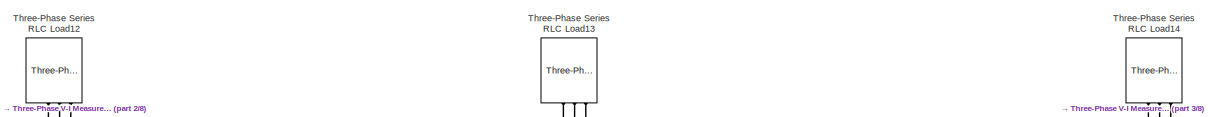
[diagram: root canvas - part 1/8, top center region]
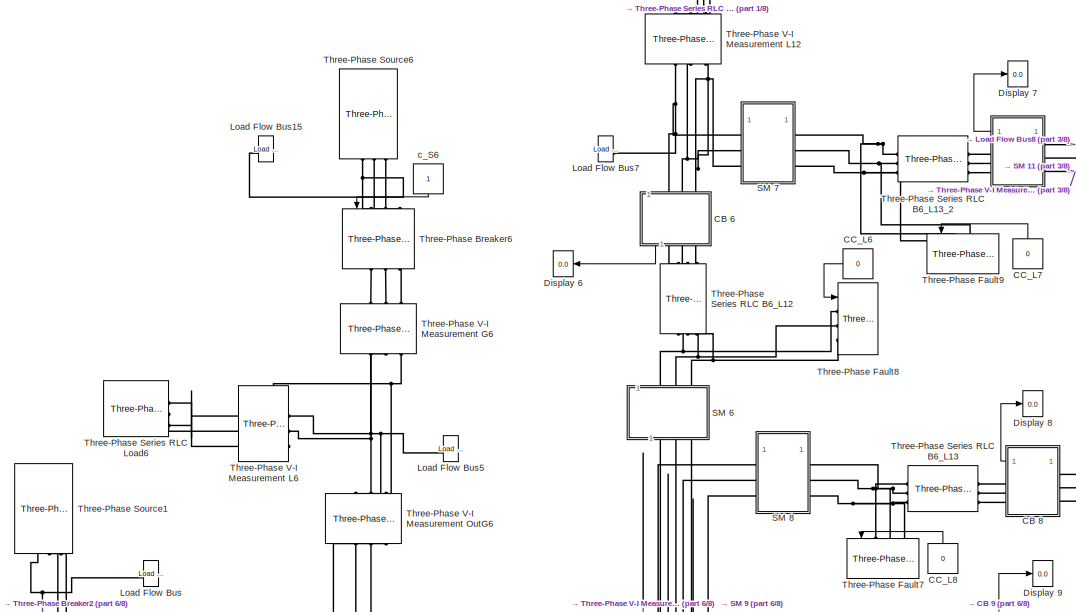
[diagram: root canvas - part 2/8, top center region]
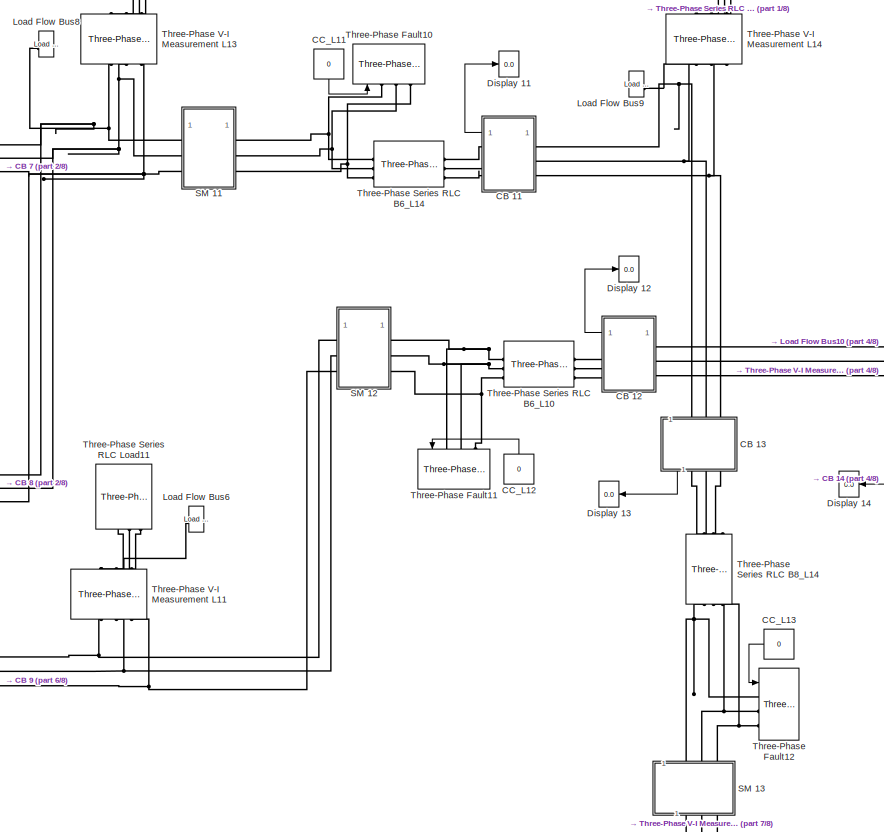
[diagram: root canvas - part 3/8, top right region]
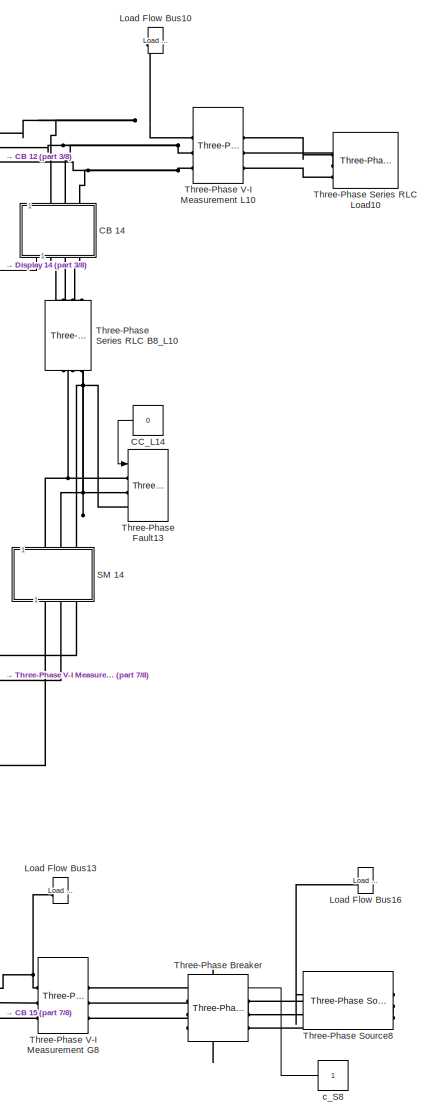
[diagram: root canvas - part 4/8, middle right region]
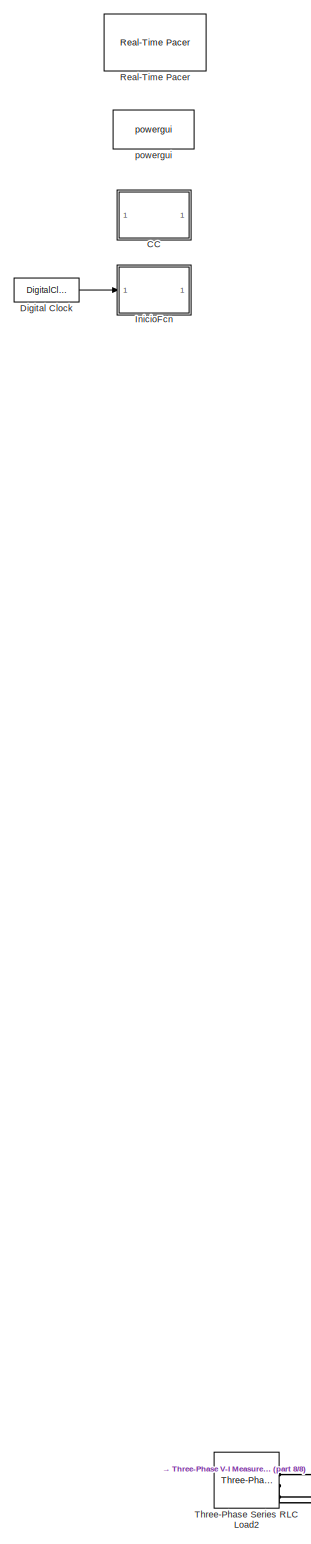
[diagram: root canvas - part 5/8, middle left region]
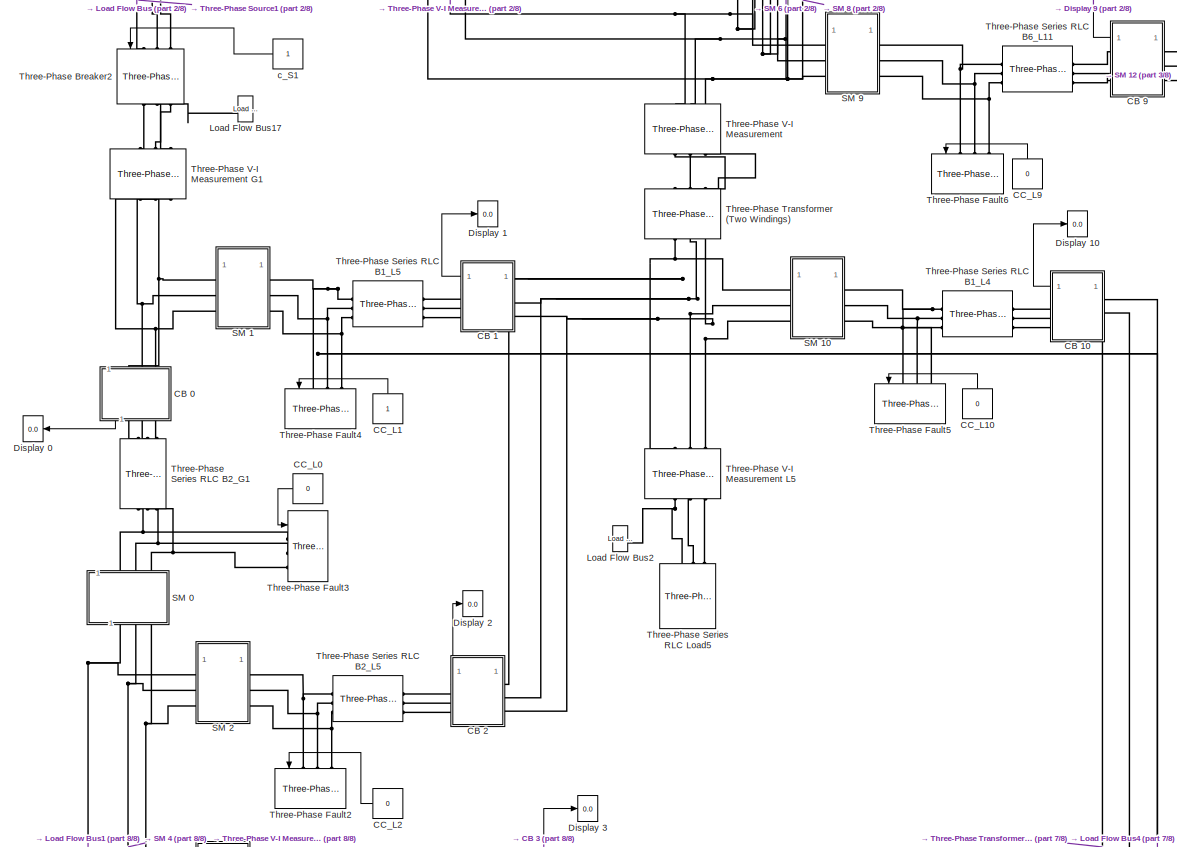
[diagram: root canvas - part 6/8, central region]
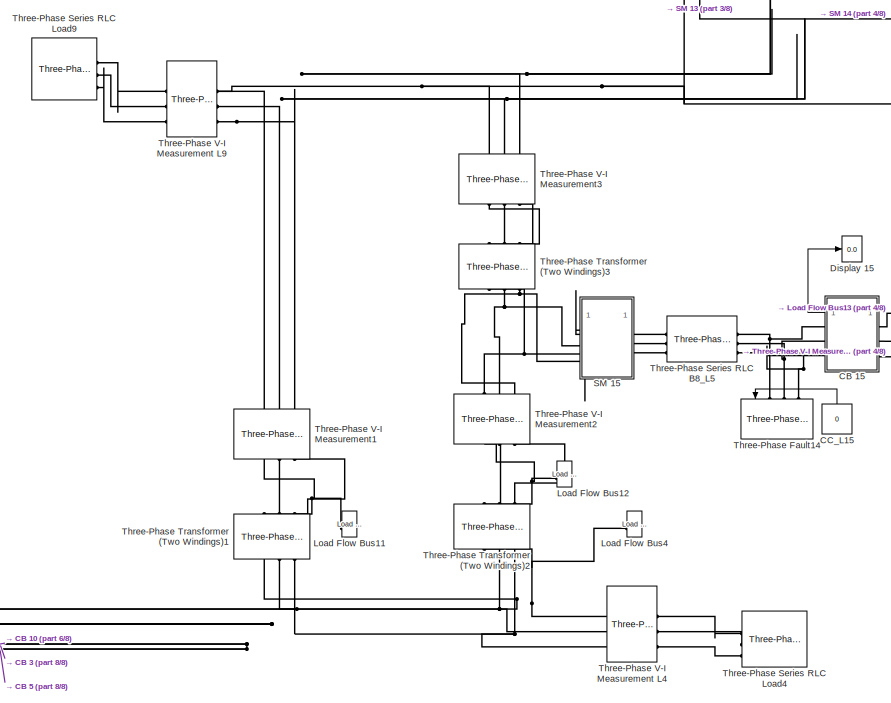
[diagram: root canvas - part 7/8, middle right region]
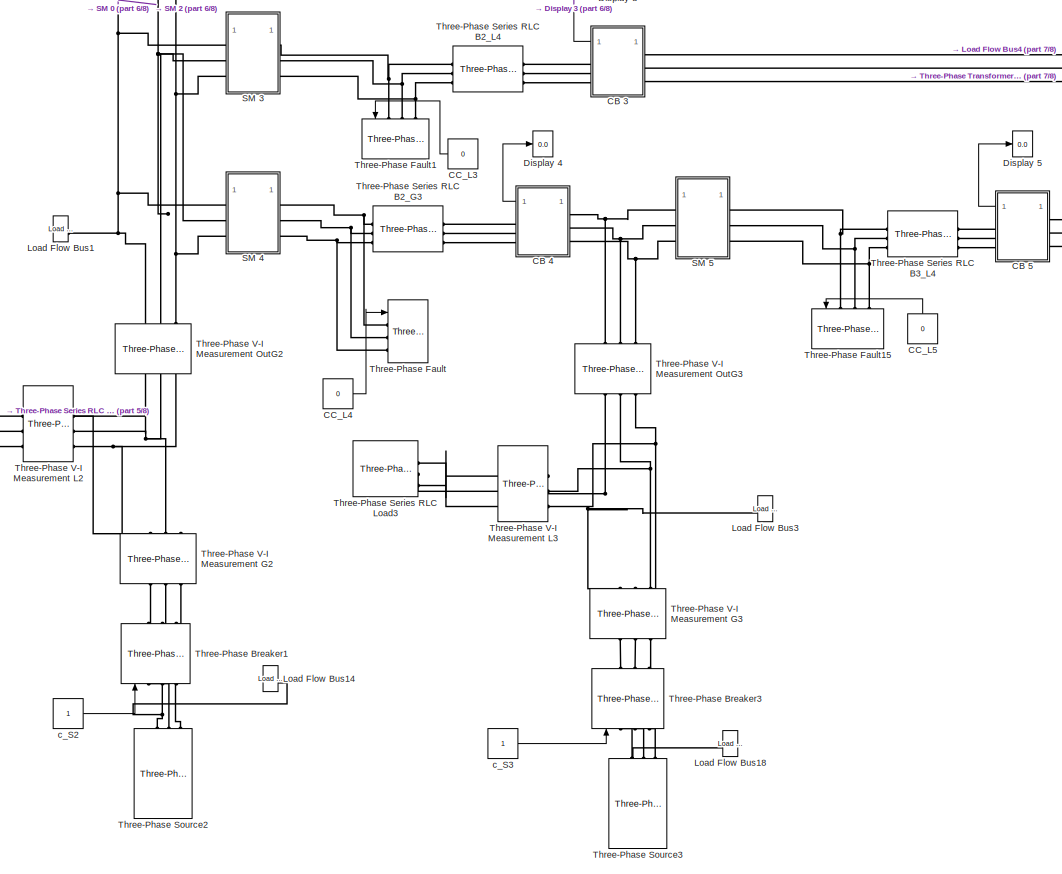
[diagram: root canvas - part 8/8, bottom left region]
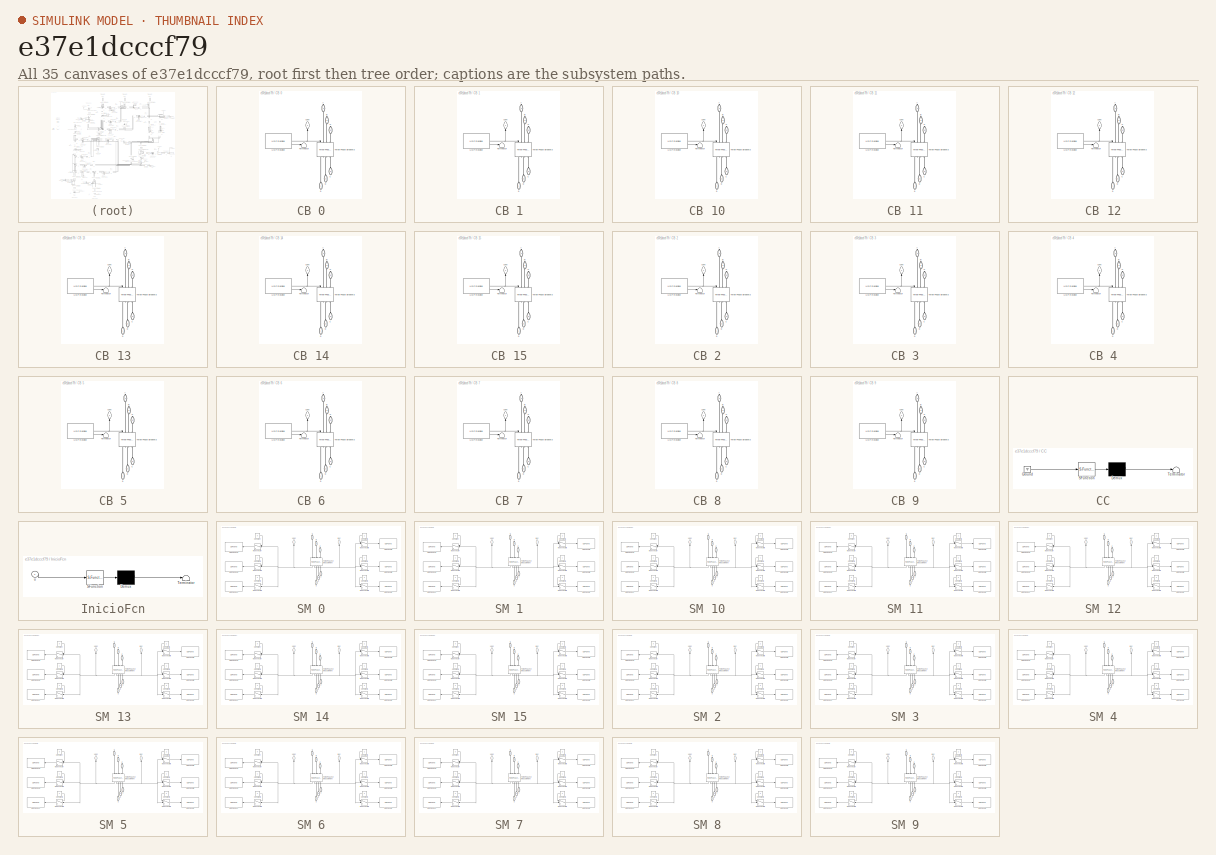
[diagram: thumbnail index - all 35 canvases of the model, root first then tree order]
MODEL slx_e37e1dcccf79
KIND model
CONFIG AbsTol = auto
CONFIG EnableMultiTasking = off
CONFIG FixedStep = 1e-3
CONFIG MaxStep = 1e-4
CONFIG MinStep = auto
CONFIG RelTol = 1e-3
CONFIG SampleTimeConstraint = Unconstrained
CONFIG SolverName = ode1
CONFIG StartTime = 0.0
CONFIG StopTime = 3600
WORKSPACE source: mxarray member
WORKSPACE pruebaValor = 0
BLOCK [SubSystem] CB 0
  NameLocation = left
BLOCK [PMIOPort] CB 0/A
  NameLocation = right
  Port = 4
  Side = Right
BLOCK [PMIOPort] CB 0/B
  NameLocation = right
  Port = 5
  Side = Right
BLOCK [PMIOPort] CB 0/C
  NameLocation = right
  Port = 6
  Side = Right
BLOCK [Terminator] CB 0/Terminator
BLOCK [Reference] CB 0/Three-Phase Breaker3  REF=spsThreePhaseBreakerLib/Three-Phase Breaker
  NameLocation = right
  SourceBlock = spsThreePhaseBreakerLib/Three-Phase Breaker
  SourceType = Three-Phase Breaker
BLOCK [Reference] CB 0/UDP Receive  REF=dspnetwork/UDP Receive
  SourceBlock = dspnetwork/UDP Receive
  SourceType = UDP Receive
BLOCK [PMIOPort] CB 0/a
  NameLocation = right
  Side = Left
BLOCK [PMIOPort] CB 0/b
  NameLocation = right
  Port = 2
  Side = Left
BLOCK [PMIOPort] CB 0/c
  NameLocation = right
  Port = 3
  Side = Left
BLOCK [Outport] CB 0/com
  NameLocation = right
BLOCK [SubSystem] CB 1
  NameLocation = top
BLOCK [PMIOPort] CB 1/A
  NameLocation = right
  Port = 4
  Side = Right
BLOCK [PMIOPort] CB 1/B
  NameLocation = right
  Port = 5
  Side = Right
BLOCK [PMIOPort] CB 1/C
  NameLocation = right
  Port = 6
  Side = Right
BLOCK [Terminator] CB 1/Terminator
BLOCK [Reference] CB 1/Three-Phase Breaker3  REF=spsThreePhaseBreakerLib/Three-Phase Breaker
  NameLocation = right
  SourceBlock = spsThreePhaseBreakerLib/Three-Phase Breaker
  SourceType = Three-Phase Breaker
BLOCK [Reference] CB 1/UDP Receive  REF=dspnetwork/UDP Receive
  SourceBlock = dspnetwork/UDP Receive
  SourceType = UDP Receive
BLOCK [PMIOPort] CB 1/a
  NameLocation = right
  Side = Left
BLOCK [PMIOPort] CB 1/b
  NameLocation = right
  Port = 2
  Side = Left
BLOCK [PMIOPort] CB 1/c
  NameLocation = right
  Port = 3
  Side = Left
BLOCK [Outport] CB 1/com
  NameLocation = right
BLOCK [SubSystem] CB 10
  NameLocation = top
BLOCK [PMIOPort] CB 10/A
  NameLocation = right
  Port = 4
  Side = Right
BLOCK [PMIOPort] CB 10/B
  NameLocation = right
  Port = 5
  Side = Right
BLOCK [PMIOPort] CB 10/C
  NameLocation = right
  Port = 6
  Side = Right
BLOCK [Terminator] CB 10/Terminator
BLOCK [Reference] CB 10/Three-Phase Breaker3  REF=spsThreePhaseBreakerLib/Three-Phase Breaker
  NameLocation = right
  SourceBlock = spsThreePhaseBreakerLib/Three-Phase Breaker
  SourceType = Three-Phase Breaker
BLOCK [Reference] CB 10/UDP Receive  REF=dspnetwork/UDP Receive
  SourceBlock = dspnetwork/UDP Receive
  SourceType = UDP Receive
BLOCK [PMIOPort] CB 10/a
  NameLocation = right
  Side = Left
BLOCK [PMIOPort] CB 10/b
  NameLocation = right
  Port = 2
  Side = Left
BLOCK [PMIOPort] CB 10/c
  NameLocation = right
  Port = 3
  Side = Left
BLOCK [Outport] CB 10/com
  NameLocation = right
BLOCK [SubSystem] CB 11
  NameLocation = top
BLOCK [PMIOPort] CB 11/A
  NameLocation = right
  Port = 4
  Side = Right
BLOCK [PMIOPort] CB 11/B
  NameLocation = right
  Port = 5
  Side = Right
BLOCK [PMIOPort] CB 11/C
  NameLocation = right
  Port = 6
  Side = Right
BLOCK [Terminator] CB 11/Terminator
BLOCK [Reference] CB 11/Three-Phase Breaker3  REF=spsThreePhaseBreakerLib/Three-Phase Breaker
  NameLocation = right
  SourceBlock = spsThreePhaseBreakerLib/Three-Phase Breaker
  SourceType = Three-Phase Breaker
BLOCK [Reference] CB 11/UDP Receive  REF=dspnetwork/UDP Receive
  SourceBlock = dspnetwork/UDP Receive
  SourceType = UDP Receive
BLOCK [PMIOPort] CB 11/a
  NameLocation = right
  Side = Left
BLOCK [PMIOPort] CB 11/b
  NameLocation = right
  Port = 2
  Side = Left
BLOCK [PMIOPort] CB 11/c
  NameLocation = right
  Port = 3
  Side = Left
BLOCK [Outport] CB 11/com
  NameLocation = right
BLOCK [SubSystem] CB 12
  NameLocation = top
BLOCK [PMIOPort] CB 12/A
  NameLocation = right
  Port = 4
  Side = Right
BLOCK [PMIOPort] CB 12/B
  NameLocation = right
  Port = 5
  Side = Right
BLOCK [PMIOPort] CB 12/C
  NameLocation = right
  Port = 6
  Side = Right
BLOCK [Terminator] CB 12/Terminator
BLOCK [Reference] CB 12/Three-Phase Breaker3  REF=spsThreePhaseBreakerLib/Three-Phase Breaker
  NameLocation = right
  SourceBlock = spsThreePhaseBreakerLib/Three-Phase Breaker
  SourceType = Three-Phase Breaker
BLOCK [Reference] CB 12/UDP Receive  REF=dspnetwork/UDP Receive
  SourceBlock = dspnetwork/UDP Receive
  SourceType = UDP Receive
BLOCK [PMIOPort] CB 12/a
  NameLocation = right
  Side = Left
BLOCK [PMIOPort] CB 12/b
  NameLocation = right
  Port = 2
  Side = Left
BLOCK [PMIOPort] CB 12/c
  NameLocation = right
  Port = 3
  Side = Left
BLOCK [Outport] CB 12/com
  NameLocation = right
BLOCK [SubSystem] CB 13
  NameLocation = left
BLOCK [PMIOPort] CB 13/A
  NameLocation = right
  Port = 4
  Side = Right
BLOCK [PMIOPort] CB 13/B
  NameLocation = right
  Port = 5
  Side = Right
BLOCK [PMIOPort] CB 13/C
  NameLocation = right
  Port = 6
  Side = Right
BLOCK [Terminator] CB 13/Terminator
BLOCK [Reference] CB 13/Three-Phase Breaker3  REF=spsThreePhaseBreakerLib/Three-Phase Breaker
  NameLocation = right
  SourceBlock = spsThreePhaseBreakerLib/Three-Phase Breaker
  SourceType = Three-Phase Breaker
BLOCK [Reference] CB 13/UDP Receive  REF=dspnetwork/UDP Receive
  SourceBlock = dspnetwork/UDP Receive
  SourceType = UDP Receive
BLOCK [PMIOPort] CB 13/a
  NameLocation = right
  Side = Left
BLOCK [PMIOPort] CB 13/b
  NameLocation = right
  Port = 2
  Side = Left
BLOCK [PMIOPort] CB 13/c
  NameLocation = right
  Port = 3
  Side = Left
BLOCK [Outport] CB 13/com
  NameLocation = right
BLOCK [SubSystem] CB 14
  NameLocation = left
BLOCK [PMIOPort] CB 14/A
  NameLocation = right
  Port = 4
  Side = Right
BLOCK [PMIOPort] CB 14/B
  NameLocation = right
  Port = 5
  Side = Right
BLOCK [PMIOPort] CB 14/C
  NameLocation = right
  Port = 6
  Side = Right
BLOCK [Terminator] CB 14/Terminator
BLOCK [Reference] CB 14/Three-Phase Breaker3  REF=spsThreePhaseBreakerLib/Three-Phase Breaker
  NameLocation = right
  SourceBlock = spsThreePhaseBreakerLib/Three-Phase Breaker
  SourceType = Three-Phase Breaker
BLOCK [Reference] CB 14/UDP Receive  REF=dspnetwork/UDP Receive
  SourceBlock = dspnetwork/UDP Receive
  SourceType = UDP Receive
BLOCK [PMIOPort] CB 14/a
  NameLocation = right
  Side = Left
BLOCK [PMIOPort] CB 14/b
  NameLocation = right
  Port = 2
  Side = Left
BLOCK [PMIOPort] CB 14/c
  NameLocation = right
  Port = 3
  Side = Left
BLOCK [Outport] CB 14/com
  NameLocation = right
BLOCK [SubSystem] CB 15
  NameLocation = top
BLOCK [PMIOPort] CB 15/A
  NameLocation = right
  Port = 4
  Side = Right
BLOCK [PMIOPort] CB 15/B
  NameLocation = right
  Port = 5
  Side = Right
BLOCK [PMIOPort] CB 15/C
  NameLocation = right
  Port = 6
  Side = Right
BLOCK [Terminator] CB 15/Terminator
BLOCK [Reference] CB 15/Three-Phase Breaker3  REF=spsThreePhaseBreakerLib/Three-Phase Breaker
  NameLocation = right
  SourceBlock = spsThreePhaseBreakerLib/Three-Phase Breaker
  SourceType = Three-Phase Breaker
BLOCK [Reference] CB 15/UDP Receive  REF=dspnetwork/UDP Receive
  SourceBlock = dspnetwork/UDP Receive
  SourceType = UDP Receive
BLOCK [PMIOPort] CB 15/a
  NameLocation = right
  Side = Left
BLOCK [PMIOPort] CB 15/b
  NameLocation = right
  Port = 2
  Side = Left
BLOCK [PMIOPort] CB 15/c
  NameLocation = right
  Port = 3
  Side = Left
BLOCK [Outport] CB 15/com
  NameLocation = right
BLOCK [SubSystem] CB 2
  NameLocation = top
BLOCK [PMIOPort] CB 2/A
  NameLocation = right
  Port = 4
  Side = Right
BLOCK [PMIOPort] CB 2/B
  NameLocation = right
  Port = 5
  Side = Right
BLOCK [PMIOPort] CB 2/C
  NameLocation = right
  Port = 6
  Side = Right
BLOCK [Terminator] CB 2/Terminator
BLOCK [Reference] CB 2/Three-Phase Breaker3  REF=spsThreePhaseBreakerLib/Three-Phase Breaker
  NameLocation = right
  SourceBlock = spsThreePhaseBreakerLib/Three-Phase Breaker
  SourceType = Three-Phase Breaker
BLOCK [Reference] CB 2/UDP Receive  REF=dspnetwork/UDP Receive
  SourceBlock = dspnetwork/UDP Receive
  SourceType = UDP Receive
BLOCK [PMIOPort] CB 2/a
  NameLocation = right
  Side = Left
BLOCK [PMIOPort] CB 2/b
  NameLocation = right
  Port = 2
  Side = Left
BLOCK [PMIOPort] CB 2/c
  NameLocation = right
  Port = 3
  Side = Left
BLOCK [Outport] CB 2/com
  NameLocation = right
BLOCK [SubSystem] CB 3
  NameLocation = top
BLOCK [PMIOPort] CB 3/A
  NameLocation = right
  Port = 4
  Side = Right
BLOCK [PMIOPort] CB 3/B
  NameLocation = right
  Port = 5
  Side = Right
BLOCK [PMIOPort] CB 3/C
  NameLocation = right
  Port = 6
  Side = Right
BLOCK [Terminator] CB 3/Terminator
BLOCK [Reference] CB 3/Three-Phase Breaker3  REF=spsThreePhaseBreakerLib/Three-Phase Breaker
  NameLocation = right
  SourceBlock = spsThreePhaseBreakerLib/Three-Phase Breaker
  SourceType = Three-Phase Breaker
BLOCK [Reference] CB 3/UDP Receive  REF=dspnetwork/UDP Receive
  SourceBlock = dspnetwork/UDP Receive
  SourceType = UDP Receive
BLOCK [PMIOPort] CB 3/a
  NameLocation = right
  Side = Left
BLOCK [PMIOPort] CB 3/b
  NameLocation = right
  Port = 2
  Side = Left
BLOCK [PMIOPort] CB 3/c
  NameLocation = right
  Port = 3
  Side = Left
BLOCK [Outport] CB 3/com
  NameLocation = right
BLOCK [SubSystem] CB 4
  NameLocation = top
BLOCK [PMIOPort] CB 4/A
  NameLocation = right
  Port = 4
  Side = Right
BLOCK [PMIOPort] CB 4/B
  NameLocation = right
  Port = 5
  Side = Right
BLOCK [PMIOPort] CB 4/C
  NameLocation = right
  Port = 6
  Side = Right
BLOCK [Terminator] CB 4/Terminator
BLOCK [Reference] CB 4/Three-Phase Breaker3  REF=spsThreePhaseBreakerLib/Three-Phase Breaker
  NameLocation = right
  SourceBlock = spsThreePhaseBreakerLib/Three-Phase Breaker
  SourceType = Three-Phase Breaker
BLOCK [Reference] CB 4/UDP Receive  REF=dspnetwork/UDP Receive
  SourceBlock = dspnetwork/UDP Receive
  SourceType = UDP Receive
BLOCK [PMIOPort] CB 4/a
  NameLocation = right
  Side = Left
BLOCK [PMIOPort] CB 4/b
  NameLocation = right
  Port = 2
  Side = Left
BLOCK [PMIOPort] CB 4/c
  NameLocation = right
  Port = 3
  Side = Left
BLOCK [Outport] CB 4/com
  NameLocation = right
BLOCK [SubSystem] CB 5
  NameLocation = top
BLOCK [PMIOPort] CB 5/A
  NameLocation = right
  Port = 4
  Side = Right
BLOCK [PMIOPort] CB 5/B
  NameLocation = right
  Port = 5
  Side = Right
BLOCK [PMIOPort] CB 5/C
  NameLocation = right
  Port = 6
  Side = Right
BLOCK [Terminator] CB 5/Terminator
BLOCK [Reference] CB 5/Three-Phase Breaker3  REF=spsThreePhaseBreakerLib/Three-Phase Breaker
  NameLocation = right
  SourceBlock = spsThreePhaseBreakerLib/Three-Phase Breaker
  SourceType = Three-Phase Breaker
BLOCK [Reference] CB 5/UDP Receive  REF=dspnetwork/UDP Receive
  SourceBlock = dspnetwork/UDP Receive
  SourceType = UDP Receive
BLOCK [PMIOPort] CB 5/a
  NameLocation = right
  Side = Left
BLOCK [PMIOPort] CB 5/b
  NameLocation = right
  Port = 2
  Side = Left
BLOCK [PMIOPort] CB 5/c
  NameLocation = right
  Port = 3
  Side = Left
BLOCK [Outport] CB 5/com
  NameLocation = right
BLOCK [SubSystem] CB 6
  NameLocation = left
BLOCK [PMIOPort] CB 6/A
  NameLocation = right
  Port = 4
  Side = Right
BLOCK [PMIOPort] CB 6/B
  NameLocation = right
  Port = 5
  Side = Right
BLOCK [PMIOPort] CB 6/C
  NameLocation = right
  Port = 6
  Side = Right
BLOCK [Terminator] CB 6/Terminator
BLOCK [Reference] CB 6/Three-Phase Breaker3  REF=spsThreePhaseBreakerLib/Three-Phase Breaker
  NameLocation = right
  SourceBlock = spsThreePhaseBreakerLib/Three-Phase Breaker
  SourceType = Three-Phase Breaker
BLOCK [Reference] CB 6/UDP Receive  REF=dspnetwork/UDP Receive
  SourceBlock = dspnetwork/UDP Receive
  SourceType = UDP Receive
BLOCK [PMIOPort] CB 6/a
  NameLocation = right
  Side = Left
BLOCK [PMIOPort] CB 6/b
  NameLocation = right
  Port = 2
  Side = Left
BLOCK [PMIOPort] CB 6/c
  NameLocation = right
  Port = 3
  Side = Left
BLOCK [Outport] CB 6/com
  NameLocation = right
BLOCK [SubSystem] CB 7
  NameLocation = top
BLOCK [PMIOPort] CB 7/A
  NameLocation = right
  Port = 4
  Side = Right
BLOCK [PMIOPort] CB 7/B
  NameLocation = right
  Port = 5
  Side = Right
BLOCK [PMIOPort] CB 7/C
  NameLocation = right
  Port = 6
  Side = Right
BLOCK [Terminator] CB 7/Terminator
BLOCK [Reference] CB 7/Three-Phase Breaker3  REF=spsThreePhaseBreakerLib/Three-Phase Breaker
  NameLocation = right
  SourceBlock = spsThreePhaseBreakerLib/Three-Phase Breaker
  SourceType = Three-Phase Breaker
BLOCK [Reference] CB 7/UDP Receive  REF=dspnetwork/UDP Receive
  SourceBlock = dspnetwork/UDP Receive
  SourceType = UDP Receive
BLOCK [PMIOPort] CB 7/a
  NameLocation = right
  Side = Left
BLOCK [PMIOPort] CB 7/b
  NameLocation = right
  Port = 2
  Side = Left
BLOCK [PMIOPort] CB 7/c
  NameLocation = right
  Port = 3
  Side = Left
BLOCK [Outport] CB 7/com
  NameLocation = right
BLOCK [SubSystem] CB 8
  NameLocation = top
BLOCK [PMIOPort] CB 8/A
  NameLocation = right
  Port = 4
  Side = Right
BLOCK [PMIOPort] CB 8/B
  NameLocation = right
  Port = 5
  Side = Right
BLOCK [PMIOPort] CB 8/C
  NameLocation = right
  Port = 6
  Side = Right
BLOCK [Terminator] CB 8/Terminator
BLOCK [Reference] CB 8/Three-Phase Breaker3  REF=spsThreePhaseBreakerLib/Three-Phase Breaker
  NameLocation = right
  SourceBlock = spsThreePhaseBreakerLib/Three-Phase Breaker
  SourceType = Three-Phase Breaker
BLOCK [Reference] CB 8/UDP Receive  REF=dspnetwork/UDP Receive
  SourceBlock = dspnetwork/UDP Receive
  SourceType = UDP Receive
BLOCK [PMIOPort] CB 8/a
  NameLocation = right
  Side = Left
BLOCK [PMIOPort] CB 8/b
  NameLocation = right
  Port = 2
  Side = Left
BLOCK [PMIOPort] CB 8/c
  NameLocation = right
  Port = 3
  Side = Left
BLOCK [Outport] CB 8/com
  NameLocation = right
BLOCK [SubSystem] CB 9
  NameLocation = top
BLOCK [PMIOPort] CB 9/A
  NameLocation = right
  Port = 4
  Side = Right
BLOCK [PMIOPort] CB 9/B
  NameLocation = right
  Port = 5
  Side = Right
BLOCK [PMIOPort] CB 9/C
  NameLocation = right
  Port = 6
  Side = Right
BLOCK [Terminator] CB 9/Terminator
BLOCK [Reference] CB 9/Three-Phase Breaker3  REF=spsThreePhaseBreakerLib/Three-Phase Breaker
  NameLocation = right
  SourceBlock = spsThreePhaseBreakerLib/Three-Phase Breaker
  SourceType = Three-Phase Breaker
BLOCK [Reference] CB 9/UDP Receive  REF=dspnetwork/UDP Receive
  SourceBlock = dspnetwork/UDP Receive
  SourceType = UDP Receive
BLOCK [PMIOPort] CB 9/a
  NameLocation = right
  Side = Left
BLOCK [PMIOPort] CB 9/b
  NameLocation = right
  Port = 2
  Side = Left
BLOCK [PMIOPort] CB 9/c
  NameLocation = right
  Port = 3
  Side = Left
BLOCK [Outport] CB 9/com
  NameLocation = right
BLOCK [SubSystem] CC
  ErrorFcn = Stateflow.Translate.translate
  PermitHierarchicalResolution = ExplicitOnly
  SFBlockType = MATLAB Function
  TreatAsAtomicUnit = on
BLOCK [Demux] CC/ Demux 
  Outputs = 1
BLOCK [Ground] CC/ Ground 
BLOCK [S-Function] CC/ SFunction 
  EnableBusSupport = on
  FunctionName = sf_sfun
  PortCounts = [1 1]
  SFcnIsStateOwnerBlock = off
  SFunctionDeploymentMode = off
  Tag = Stateflow S-Function 1
BLOCK [Terminator] CC/ Terminator 
BLOCK [Constant] CC_L0
  NameLocation = top
  Value = 0
BLOCK [Constant] CC_L1
  NameLocation = right
BLOCK [Constant] CC_L10
  NameLocation = right
  Value = 0
BLOCK [Constant] CC_L11
  NameLocation = left
  Value = 0
BLOCK [Constant] CC_L12
  NameLocation = right
  Value = 0
BLOCK [Constant] CC_L13
  NameLocation = top
  Value = 0
BLOCK [Constant] CC_L14
  NameLocation = top
  Value = 0
BLOCK [Constant] CC_L15
  NameLocation = right
  Value = 0
BLOCK [Constant] CC_L2
  NameLocation = top
  Value = 0
BLOCK [Constant] CC_L3
  NameLocation = top
  Value = 0
BLOCK [Constant] CC_L4
  Value = 0
BLOCK [Constant] CC_L5
  NameLocation = right
  Value = 0
BLOCK [Constant] CC_L6
  NameLocation = top
  Value = 0
BLOCK [Constant] CC_L7
  NameLocation = right
  Value = 0
BLOCK [Constant] CC_L8
  NameLocation = right
  Value = 0
BLOCK [Constant] CC_L9
  NameLocation = right
  Value = 0
BLOCK [DigitalClock] Digital Clock
  SampleTime = 1e-1
BLOCK [Display] Display 0
  Decimation = 1
  Format = decimal (Stored Integer)
BLOCK [Display] Display 1
  Decimation = 1
  Format = decimal (Stored Integer)
BLOCK [Display] Display 10
  Decimation = 1
  Format = decimal (Stored Integer)
BLOCK [Display] Display 11
  Decimation = 1
  Format = decimal (Stored Integer)
BLOCK [Display] Display 12
  Decimation = 1
  Format = decimal (Stored Integer)
BLOCK [Display] Display 13
  Decimation = 1
  Format = decimal (Stored Integer)
BLOCK [Display] Display 14
  Decimation = 1
  Format = decimal (Stored Integer)
BLOCK [Display] Display 15
  Decimation = 1
  Format = decimal (Stored Integer)
BLOCK [Display] Display 2
  Decimation = 1
  Format = decimal (Stored Integer)
BLOCK [Display] Display 3
  Decimation = 1
  Format = decimal (Stored Integer)
BLOCK [Display] Display 4
  Decimation = 1
  Format = decimal (Stored Integer)
BLOCK [Display] Display 5
  Decimation = 1
  Format = decimal (Stored Integer)
BLOCK [Display] Display 6
  Decimation = 1
  Format = decimal (Stored Integer)
BLOCK [Display] Display 7
  Decimation = 1
  Format = decimal (Stored Integer)
BLOCK [Display] Display 8
  Decimation = 1
  Format = decimal (Stored Integer)
BLOCK [Display] Display 9
  Decimation = 1
  Format = decimal (Stored Integer)
BLOCK [SubSystem] InicioFcn
  ErrorFcn = Stateflow.Translate.translate
  PermitHierarchicalResolution = ExplicitOnly
  SFBlockType = MATLAB Function
  TreatAsAtomicUnit = on
BLOCK [Demux] InicioFcn/ Demux 
  Outputs = 1
BLOCK [S-Function] InicioFcn/ SFunction 
  EnableBusSupport = on
  FunctionName = sf_sfun
  PortCounts = [1 1]
  SFcnIsStateOwnerBlock = off
  SFunctionDeploymentMode = off
  Tag = Stateflow S-Function 3
BLOCK [Terminator] InicioFcn/ Terminator 
BLOCK [Inport] InicioFcn/u
BLOCK [Reference] Load Flow Bus  REF=spsLoadFlowBusLib/Load Flow Bus
  AttributesFormatString = %<ID>\n%<Vbase>V\n%<VLF>pu\n%<angleLF>deg.
  LibrarySourceBlock = sps_lib/Utilities/Load Flow Bus
  SourceBlock = spsLoadFlowBusLib/Load Flow Bus
  SourceType = Load Flow Bus
BLOCK [Reference] Load Flow Bus1  REF=spsLoadFlowBusLib/Load Flow Bus
  AttributesFormatString = %<ID>\n%<Vbase>V\n%<VLF>pu\n%<angleLF>deg.
  LibrarySourceBlock = sps_lib/Utilities/Load Flow Bus
  NameLocation = top
  SourceBlock = spsLoadFlowBusLib/Load Flow Bus
  SourceType = Load Flow Bus
BLOCK [Reference] Load Flow Bus10  REF=spsLoadFlowBusLib/Load Flow Bus
  AttributesFormatString = %<ID>\n%<Vbase>V\n%<VLF>pu\n%<angleLF>deg.
  LibrarySourceBlock = sps_lib/Utilities/Load Flow Bus
  SourceBlock = spsLoadFlowBusLib/Load Flow Bus
  SourceType = Load Flow Bus
BLOCK [Reference] Load Flow Bus11  REF=spsLoadFlowBusLib/Load Flow Bus
  AttributesFormatString = %<ID>\n%<Vbase>V\n%<VLF>pu\n%<angleLF>deg.
  LibrarySourceBlock = sps_lib/Utilities/Load Flow Bus
  SourceBlock = spsLoadFlowBusLib/Load Flow Bus
  SourceType = Load Flow Bus
BLOCK [Reference] Load Flow Bus12  REF=spsLoadFlowBusLib/Load Flow Bus
  AttributesFormatString = %<ID>\n%<Vbase>V\n%<VLF>pu\n%<angleLF>deg.
  LibrarySourceBlock = sps_lib/Utilities/Load Flow Bus
  SourceBlock = spsLoadFlowBusLib/Load Flow Bus
  SourceType = Load Flow Bus
BLOCK [Reference] Load Flow Bus13  REF=spsLoadFlowBusLib/Load Flow Bus
  AttributesFormatString = %<ID>\n%<Vbase>V\n%<VLF>pu\n%<angleLF>deg.
  LibrarySourceBlock = sps_lib/Utilities/Load Flow Bus
  SourceBlock = spsLoadFlowBusLib/Load Flow Bus
  SourceType = Load Flow Bus
BLOCK [Reference] Load Flow Bus14  REF=spsLoadFlowBusLib/Load Flow Bus
  AttributesFormatString = %<ID>\n%<Vbase>V\n%<VLF>pu\n%<angleLF>deg.
  LibrarySourceBlock = sps_lib/Utilities/Load Flow Bus
  NameLocation = top
  SourceBlock = spsLoadFlowBusLib/Load Flow Bus
  SourceType = Load Flow Bus
BLOCK [Reference] Load Flow Bus15  REF=spsLoadFlowBusLib/Load Flow Bus
  AttributesFormatString = %<ID>\n%<Vbase>V\n%<VLF>pu\n%<angleLF>deg.
  LibrarySourceBlock = sps_lib/Utilities/Load Flow Bus
  SourceBlock = spsLoadFlowBusLib/Load Flow Bus
  SourceType = Load Flow Bus
BLOCK [Reference] Load Flow Bus16  REF=spsLoadFlowBusLib/Load Flow Bus
  AttributesFormatString = %<ID>\n%<Vbase>V\n%<VLF>pu\n%<angleLF>deg.
  LibrarySourceBlock = sps_lib/Utilities/Load Flow Bus
  SourceBlock = spsLoadFlowBusLib/Load Flow Bus
  SourceType = Load Flow Bus
BLOCK [Reference] Load Flow Bus17  REF=spsLoadFlowBusLib/Load Flow Bus
  AttributesFormatString = %<ID>\n%<Vbase>V\n%<VLF>pu\n%<angleLF>deg.
  LibrarySourceBlock = sps_lib/Utilities/Load Flow Bus
  SourceBlock = spsLoadFlowBusLib/Load Flow Bus
  SourceType = Load Flow Bus
BLOCK [Reference] Load Flow Bus18  REF=spsLoadFlowBusLib/Load Flow Bus
  AttributesFormatString = %<ID>\n%<Vbase>V\n%<VLF>pu\n%<angleLF>deg.
  LibrarySourceBlock = sps_lib/Utilities/Load Flow Bus
  SourceBlock = spsLoadFlowBusLib/Load Flow Bus
  SourceType = Load Flow Bus
BLOCK [Reference] Load Flow Bus2  REF=spsLoadFlowBusLib/Load Flow Bus
  AttributesFormatString = %<ID>\n%<Vbase>V\n%<VLF>pu\n%<angleLF>deg.
  LibrarySourceBlock = sps_lib/Utilities/Load Flow Bus
  NameLocation = top
  SourceBlock = spsLoadFlowBusLib/Load Flow Bus
  SourceType = Load Flow Bus
BLOCK [Reference] Load Flow Bus3  REF=spsLoadFlowBusLib/Load Flow Bus
  AttributesFormatString = %<ID>\n%<Vbase>V\n%<VLF>pu\n%<angleLF>deg.
  LibrarySourceBlock = sps_lib/Utilities/Load Flow Bus
  SourceBlock = spsLoadFlowBusLib/Load Flow Bus
  SourceType = Load Flow Bus
BLOCK [Reference] Load Flow Bus4  REF=spsLoadFlowBusLib/Load Flow Bus
  AttributesFormatString = %<ID>\n%<Vbase>V\n%<VLF>pu\n%<angleLF>deg.
  LibrarySourceBlock = sps_lib/Utilities/Load Flow Bus
  SourceBlock = spsLoadFlowBusLib/Load Flow Bus
  SourceType = Load Flow Bus
BLOCK [Reference] Load Flow Bus5  REF=spsLoadFlowBusLib/Load Flow Bus
  AttributesFormatString = %<ID>\n%<Vbase>V\n%<VLF>pu\n%<angleLF>deg.
  LibrarySourceBlock = sps_lib/Utilities/Load Flow Bus
  SourceBlock = spsLoadFlowBusLib/Load Flow Bus
  SourceType = Load Flow Bus
BLOCK [Reference] Load Flow Bus6  REF=spsLoadFlowBusLib/Load Flow Bus
  AttributesFormatString = %<ID>\n%<Vbase>V\n%<VLF>pu\n%<angleLF>deg.
  LibrarySourceBlock = sps_lib/Utilities/Load Flow Bus
  SourceBlock = spsLoadFlowBusLib/Load Flow Bus
  SourceType = Load Flow Bus
BLOCK [Reference] Load Flow Bus7  REF=spsLoadFlowBusLib/Load Flow Bus
  AttributesFormatString = %<ID>\n%<Vbase>V\n%<VLF>pu\n%<angleLF>deg.
  LibrarySourceBlock = sps_lib/Utilities/Load Flow Bus
  NameLocation = top
  SourceBlock = spsLoadFlowBusLib/Load Flow Bus
  SourceType = Load Flow Bus
BLOCK [Reference] Load Flow Bus8  REF=spsLoadFlowBusLib/Load Flow Bus
  AttributesFormatString = %<ID>\n%<Vbase>V\n%<VLF>pu\n%<angleLF>deg.
  LibrarySourceBlock = sps_lib/Utilities/Load Flow Bus
  SourceBlock = spsLoadFlowBusLib/Load Flow Bus
  SourceType = Load Flow Bus
BLOCK [Reference] Load Flow Bus9  REF=spsLoadFlowBusLib/Load Flow Bus
  AttributesFormatString = %<ID>\n%<Vbase>V\n%<VLF>pu\n%<angleLF>deg.
  LibrarySourceBlock = sps_lib/Utilities/Load Flow Bus
  NameLocation = top
  SourceBlock = spsLoadFlowBusLib/Load Flow Bus
  SourceType = Load Flow Bus
BLOCK [Reference] Real-Time Pacer  REF=realtime_pacer_lib/Real-Time Pacer
  SourceBlock = realtime_pacer_lib/Real-Time Pacer
  SourceProductName = Real-Time Pacer
  SourceType = RealTime_Pacer
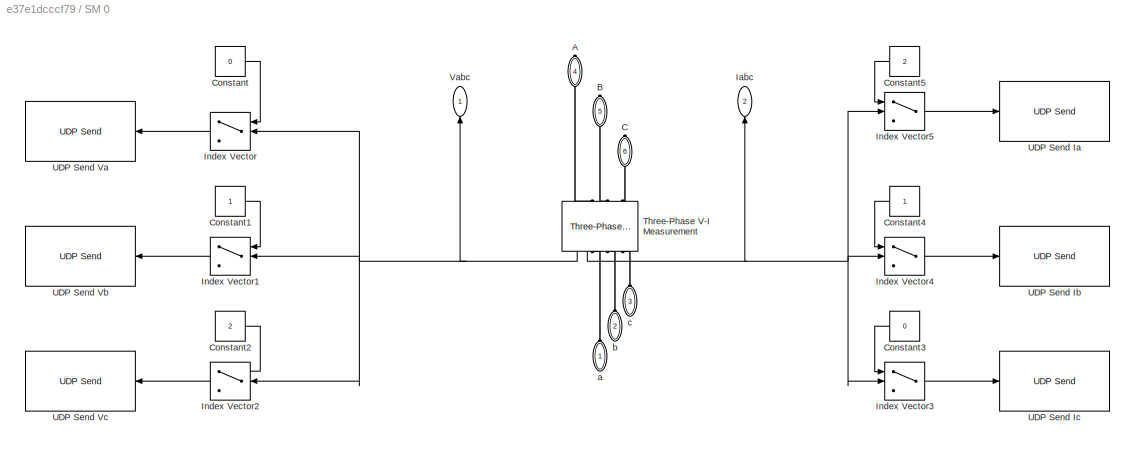
BLOCK [SubSystem] SM 0
  NameLocation = left
  PortSchema = {"entries":[{"content":{"sides":[{"content":{"connectorIds":["Out1","Out2","LConn1","LConn2","LConn3"]},"type":"ConnectorPlacement.EquallySpacedRectSide","uuid":"a739001a-7747-49c0-9baa-61330c5a4cda"},{"content":{"connectorIds":["RConn1","RConn2","RConn3"],"side":"RIGHT"},"type":"ConnectorPlacement.EquallySpacedRectSide","uuid":"653228b2-dfb1-4c37-b4a9-e8730943e8f4"},{"content":{"side":"TOP"},"typ...<+277ch>  <repeated x16 — deduplicated; at blocks: SM 0, SM 1, SM 10, SM 11, SM 12, SM 13, SM 14, SM 15, SM 2, SM 3, SM 4, SM 5, SM 6, SM 7, SM 8, SM 9>
BLOCK [PMIOPort] SM 0/A
  NameLocation = left
  Port = 4
  Side = Right
BLOCK [PMIOPort] SM 0/B
  NameLocation = left
  Port = 5
  Side = Right
BLOCK [PMIOPort] SM 0/C
  NameLocation = left
  Port = 6
  Side = Right
BLOCK [Constant] SM 0/Constant
  Value = 0
BLOCK [Constant] SM 0/Constant1
BLOCK [Constant] SM 0/Constant2
  Value = 2
BLOCK [Constant] SM 0/Constant3
  NameLocation = top
  Value = 0
BLOCK [Constant] SM 0/Constant4
  NameLocation = top
BLOCK [Constant] SM 0/Constant5
  NameLocation = top
  Value = 2
BLOCK [Outport] SM 0/Iabc
  NameLocation = right
  Port = 2
BLOCK [MultiPortSwitch] SM 0/Index Vector
  DataPortOrder = Zero-based contiguous
  InputSameDT = off
  Inputs = 1
  SaturateOnIntegerOverflow = off
  zeroidx = on
BLOCK [MultiPortSwitch] SM 0/Index Vector1
  DataPortOrder = Zero-based contiguous
  InputSameDT = off
  Inputs = 1
  SaturateOnIntegerOverflow = off
  zeroidx = on
BLOCK [MultiPortSwitch] SM 0/Index Vector2
  DataPortOrder = Zero-based contiguous
  InputSameDT = off
  Inputs = 1
  SaturateOnIntegerOverflow = off
  zeroidx = on
BLOCK [MultiPortSwitch] SM 0/Index Vector3
  DataPortOrder = Zero-based contiguous
  InputSameDT = off
  Inputs = 1
  NameLocation = top
  SaturateOnIntegerOverflow = off
  zeroidx = on
BLOCK [MultiPortSwitch] SM 0/Index Vector4
  DataPortOrder = Zero-based contiguous
  InputSameDT = off
  Inputs = 1
  NameLocation = top
  SaturateOnIntegerOverflow = off
  zeroidx = on
BLOCK [MultiPortSwitch] SM 0/Index Vector5
  DataPortOrder = Zero-based contiguous
  InputSameDT = off
  Inputs = 1
  NameLocation = top
  SaturateOnIntegerOverflow = off
  zeroidx = on
BLOCK [Reference] SM 0/Three-Phase V-I Measurement  REF=spsThreePhaseVIMeasurementLib/Three-Phase
V-I Measurement
  NameLocation = left
  SourceBlock = spsThreePhaseVIMeasurementLib/Three-Phase\nV-I Measurement
  SourceType = Three-Phase VI Measurement
BLOCK [Reference] SM 0/UDP Send Ia  REF=dspnetwork/UDP Send
  NameLocation = top
  SourceBlock = dspnetwork/UDP Send
  SourceType = UDP Send
BLOCK [Reference] SM 0/UDP Send Ib  REF=dspnetwork/UDP Send
  NameLocation = top
  SourceBlock = dspnetwork/UDP Send
  SourceType = UDP Send
BLOCK [Reference] SM 0/UDP Send Ic  REF=dspnetwork/UDP Send
  NameLocation = top
  SourceBlock = dspnetwork/UDP Send
  SourceType = UDP Send
BLOCK [Reference] SM 0/UDP Send Va  REF=dspnetwork/UDP Send
  SourceBlock = dspnetwork/UDP Send
  SourceType = UDP Send
BLOCK [Reference] SM 0/UDP Send Vb  REF=dspnetwork/UDP Send
  SourceBlock = dspnetwork/UDP Send
  SourceType = UDP Send
BLOCK [Reference] SM 0/UDP Send Vc  REF=dspnetwork/UDP Send
  SourceBlock = dspnetwork/UDP Send
  SourceType = UDP Send
BLOCK [Outport] SM 0/Vabc
  NameLocation = right
BLOCK [PMIOPort] SM 0/a
  NameLocation = right
  Side = Left
BLOCK [PMIOPort] SM 0/b
  NameLocation = right
  Port = 2
  Side = Left
BLOCK [PMIOPort] SM 0/c
  NameLocation = right
  Port = 3
  Side = Left
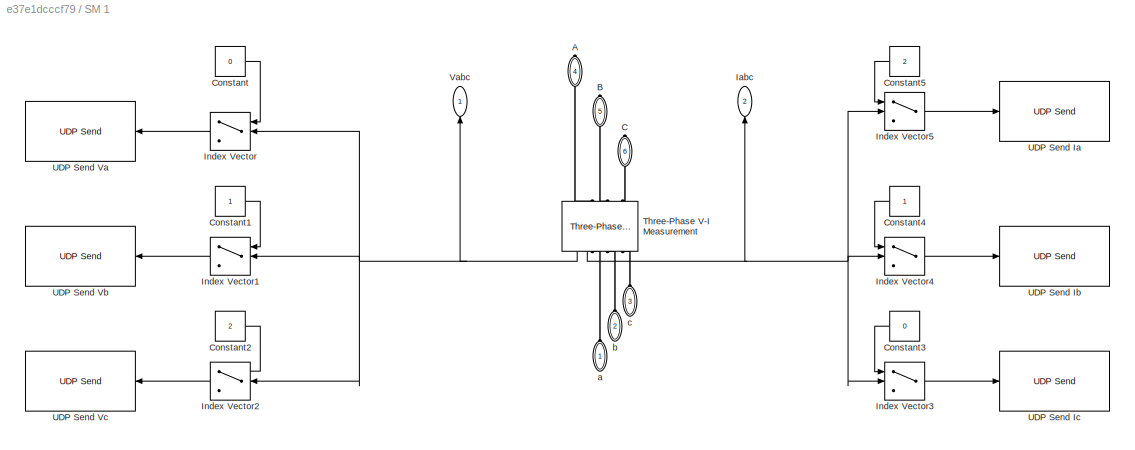
BLOCK [SubSystem] SM 1
  NameLocation = top
BLOCK [PMIOPort] SM 1/A
  NameLocation = left
  Port = 4
  Side = Right
BLOCK [PMIOPort] SM 1/B
  NameLocation = left
  Port = 5
  Side = Right
BLOCK [PMIOPort] SM 1/C
  NameLocation = left
  Port = 6
  Side = Right
BLOCK [Constant] SM 1/Constant
  Value = 0
BLOCK [Constant] SM 1/Constant1
BLOCK [Constant] SM 1/Constant2
  Value = 2
BLOCK [Constant] SM 1/Constant3
  NameLocation = top
  Value = 0
BLOCK [Constant] SM 1/Constant4
  NameLocation = top
BLOCK [Constant] SM 1/Constant5
  NameLocation = top
  Value = 2
BLOCK [Outport] SM 1/Iabc
  NameLocation = right
  Port = 2
BLOCK [MultiPortSwitch] SM 1/Index Vector
  DataPortOrder = Zero-based contiguous
  InputSameDT = off
  Inputs = 1
  SaturateOnIntegerOverflow = off
  zeroidx = on
BLOCK [MultiPortSwitch] SM 1/Index Vector1
  DataPortOrder = Zero-based contiguous
  InputSameDT = off
  Inputs = 1
  SaturateOnIntegerOverflow = off
  zeroidx = on
BLOCK [MultiPortSwitch] SM 1/Index Vector2
  DataPortOrder = Zero-based contiguous
  InputSameDT = off
  Inputs = 1
  SaturateOnIntegerOverflow = off
  zeroidx = on
BLOCK [MultiPortSwitch] SM 1/Index Vector3
  DataPortOrder = Zero-based contiguous
  InputSameDT = off
  Inputs = 1
  NameLocation = top
  SaturateOnIntegerOverflow = off
  zeroidx = on
BLOCK [MultiPortSwitch] SM 1/Index Vector4
  DataPortOrder = Zero-based contiguous
  InputSameDT = off
  Inputs = 1
  NameLocation = top
  SaturateOnIntegerOverflow = off
  zeroidx = on
BLOCK [MultiPortSwitch] SM 1/Index Vector5
  DataPortOrder = Zero-based contiguous
  InputSameDT = off
  Inputs = 1
  NameLocation = top
  SaturateOnIntegerOverflow = off
  zeroidx = on
BLOCK [Reference] SM 1/Three-Phase V-I Measurement  REF=spsThreePhaseVIMeasurementLib/Three-Phase
V-I Measurement
  NameLocation = left
  SourceBlock = spsThreePhaseVIMeasurementLib/Three-Phase\nV-I Measurement
  SourceType = Three-Phase VI Measurement
BLOCK [Reference] SM 1/UDP Send Ia  REF=dspnetwork/UDP Send
  NameLocation = top
  SourceBlock = dspnetwork/UDP Send
  SourceType = UDP Send
BLOCK [Reference] SM 1/UDP Send Ib  REF=dspnetwork/UDP Send
  NameLocation = top
  SourceBlock = dspnetwork/UDP Send
  SourceType = UDP Send
BLOCK [Reference] SM 1/UDP Send Ic  REF=dspnetwork/UDP Send
  NameLocation = top
  SourceBlock = dspnetwork/UDP Send
  SourceType = UDP Send
BLOCK [Reference] SM 1/UDP Send Va  REF=dspnetwork/UDP Send
  SourceBlock = dspnetwork/UDP Send
  SourceType = UDP Send
BLOCK [Reference] SM 1/UDP Send Vb  REF=dspnetwork/UDP Send
  SourceBlock = dspnetwork/UDP Send
  SourceType = UDP Send
BLOCK [Reference] SM 1/UDP Send Vc  REF=dspnetwork/UDP Send
  SourceBlock = dspnetwork/UDP Send
  SourceType = UDP Send
BLOCK [Outport] SM 1/Vabc
  NameLocation = right
BLOCK [PMIOPort] SM 1/a
  NameLocation = right
  Side = Left
BLOCK [PMIOPort] SM 1/b
  NameLocation = right
  Port = 2
  Side = Left
BLOCK [PMIOPort] SM 1/c
  NameLocation = right
  Port = 3
  Side = Left
BLOCK [SubSystem] SM 10
  NameLocation = top
BLOCK [PMIOPort] SM 10/A
  NameLocation = left
  Port = 4
  Side = Right
BLOCK [PMIOPort] SM 10/B
  NameLocation = left
  Port = 5
  Side = Right
BLOCK [PMIOPort] SM 10/C
  NameLocation = left
  Port = 6
  Side = Right
BLOCK [Constant] SM 10/Constant
  Value = 0
BLOCK [Constant] SM 10/Constant1
BLOCK [Constant] SM 10/Constant2
  Value = 2
BLOCK [Constant] SM 10/Constant3
  NameLocation = top
  Value = 0
BLOCK [Constant] SM 10/Constant4
  NameLocation = top
BLOCK [Constant] SM 10/Constant5
  NameLocation = top
  Value = 2
BLOCK [Outport] SM 10/Iabc
  NameLocation = right
  Port = 2
BLOCK [MultiPortSwitch] SM 10/Index Vector
  DataPortOrder = Zero-based contiguous
  InputSameDT = off
  Inputs = 1
  SaturateOnIntegerOverflow = off
  zeroidx = on
BLOCK [MultiPortSwitch] SM 10/Index Vector1
  DataPortOrder = Zero-based contiguous
  InputSameDT = off
  Inputs = 1
  SaturateOnIntegerOverflow = off
  zeroidx = on
BLOCK [MultiPortSwitch] SM 10/Index Vector2
  DataPortOrder = Zero-based contiguous
  InputSameDT = off
  Inputs = 1
  SaturateOnIntegerOverflow = off
  zeroidx = on
BLOCK [MultiPortSwitch] SM 10/Index Vector3
  DataPortOrder = Zero-based contiguous
  InputSameDT = off
  Inputs = 1
  NameLocation = top
  SaturateOnIntegerOverflow = off
  zeroidx = on
BLOCK [MultiPortSwitch] SM 10/Index Vector4
  DataPortOrder = Zero-based contiguous
  InputSameDT = off
  Inputs = 1
  NameLocation = top
  SaturateOnIntegerOverflow = off
  zeroidx = on
BLOCK [MultiPortSwitch] SM 10/Index Vector5
  DataPortOrder = Zero-based contiguous
  InputSameDT = off
  Inputs = 1
  NameLocation = top
  SaturateOnIntegerOverflow = off
  zeroidx = on
BLOCK [Reference] SM 10/Three-Phase V-I Measurement  REF=spsThreePhaseVIMeasurementLib/Three-Phase
V-I Measurement
  NameLocation = left
  SourceBlock = spsThreePhaseVIMeasurementLib/Three-Phase\nV-I Measurement
  SourceType = Three-Phase VI Measurement
BLOCK [Reference] SM 10/UDP Send Ia  REF=dspnetwork/UDP Send
  NameLocation = top
  SourceBlock = dspnetwork/UDP Send
  SourceType = UDP Send
BLOCK [Reference] SM 10/UDP Send Ib  REF=dspnetwork/UDP Send
  NameLocation = top
  SourceBlock = dspnetwork/UDP Send
  SourceType = UDP Send
BLOCK [Reference] SM 10/UDP Send Ic  REF=dspnetwork/UDP Send
  NameLocation = top
  SourceBlock = dspnetwork/UDP Send
  SourceType = UDP Send
BLOCK [Reference] SM 10/UDP Send Va  REF=dspnetwork/UDP Send
  SourceBlock = dspnetwork/UDP Send
  SourceType = UDP Send
BLOCK [Reference] SM 10/UDP Send Vb  REF=dspnetwork/UDP Send
  SourceBlock = dspnetwork/UDP Send
  SourceType = UDP Send
BLOCK [Reference] SM 10/UDP Send Vc  REF=dspnetwork/UDP Send
  SourceBlock = dspnetwork/UDP Send
  SourceType = UDP Send
BLOCK [Outport] SM 10/Vabc
  NameLocation = right
BLOCK [PMIOPort] SM 10/a
  NameLocation = right
  Side = Left
BLOCK [PMIOPort] SM 10/b
  NameLocation = right
  Port = 2
  Side = Left
BLOCK [PMIOPort] SM 10/c
  NameLocation = right
  Port = 3
  Side = Left
BLOCK [SubSystem] SM 11
  NameLocation = top
BLOCK [PMIOPort] SM 11/A
  NameLocation = left
  Port = 4
  Side = Right
BLOCK [PMIOPort] SM 11/B
  NameLocation = left
  Port = 5
  Side = Right
BLOCK [PMIOPort] SM 11/C
  NameLocation = left
  Port = 6
  Side = Right
BLOCK [Constant] SM 11/Constant
  Value = 0
BLOCK [Constant] SM 11/Constant1
BLOCK [Constant] SM 11/Constant2
  Value = 2
BLOCK [Constant] SM 11/Constant3
  NameLocation = top
  Value = 0
BLOCK [Constant] SM 11/Constant4
  NameLocation = top
BLOCK [Constant] SM 11/Constant5
  NameLocation = top
  Value = 2
BLOCK [Outport] SM 11/Iabc
  NameLocation = right
  Port = 2
BLOCK [MultiPortSwitch] SM 11/Index Vector
  DataPortOrder = Zero-based contiguous
  InputSameDT = off
  Inputs = 1
  SaturateOnIntegerOverflow = off
  zeroidx = on
BLOCK [MultiPortSwitch] SM 11/Index Vector1
  DataPortOrder = Zero-based contiguous
  InputSameDT = off
  Inputs = 1
  SaturateOnIntegerOverflow = off
  zeroidx = on
BLOCK [MultiPortSwitch] SM 11/Index Vector2
  DataPortOrder = Zero-based contiguous
  InputSameDT = off
  Inputs = 1
  SaturateOnIntegerOverflow = off
  zeroidx = on
BLOCK [MultiPortSwitch] SM 11/Index Vector3
  DataPortOrder = Zero-based contiguous
  InputSameDT = off
  Inputs = 1
  NameLocation = top
  SaturateOnIntegerOverflow = off
  zeroidx = on
BLOCK [MultiPortSwitch] SM 11/Index Vector4
  DataPortOrder = Zero-based contiguous
  InputSameDT = off
  Inputs = 1
  NameLocation = top
  SaturateOnIntegerOverflow = off
  zeroidx = on
BLOCK [MultiPortSwitch] SM 11/Index Vector5
  DataPortOrder = Zero-based contiguous
  InputSameDT = off
  Inputs = 1
  NameLocation = top
  SaturateOnIntegerOverflow = off
  zeroidx = on
BLOCK [Reference] SM 11/Three-Phase V-I Measurement  REF=spsThreePhaseVIMeasurementLib/Three-Phase
V-I Measurement
  NameLocation = left
  SourceBlock = spsThreePhaseVIMeasurementLib/Three-Phase\nV-I Measurement
  SourceType = Three-Phase VI Measurement
BLOCK [Reference] SM 11/UDP Send Ia  REF=dspnetwork/UDP Send
  NameLocation = top
  SourceBlock = dspnetwork/UDP Send
  SourceType = UDP Send
BLOCK [Reference] SM 11/UDP Send Ib  REF=dspnetwork/UDP Send
  NameLocation = top
  SourceBlock = dspnetwork/UDP Send
  SourceType = UDP Send
BLOCK [Reference] SM 11/UDP Send Ic  REF=dspnetwork/UDP Send
  NameLocation = top
  SourceBlock = dspnetwork/UDP Send
  SourceType = UDP Send
BLOCK [Reference] SM 11/UDP Send Va  REF=dspnetwork/UDP Send
  SourceBlock = dspnetwork/UDP Send
  SourceType = UDP Send
BLOCK [Reference] SM 11/UDP Send Vb  REF=dspnetwork/UDP Send
  SourceBlock = dspnetwork/UDP Send
  SourceType = UDP Send
BLOCK [Reference] SM 11/UDP Send Vc  REF=dspnetwork/UDP Send
  SourceBlock = dspnetwork/UDP Send
  SourceType = UDP Send
BLOCK [Outport] SM 11/Vabc
  NameLocation = right
BLOCK [PMIOPort] SM 11/a
  NameLocation = right
  Side = Left
BLOCK [PMIOPort] SM 11/b
  NameLocation = right
  Port = 2
  Side = Left
BLOCK [PMIOPort] SM 11/c
  NameLocation = right
  Port = 3
  Side = Left
BLOCK [SubSystem] SM 12
  NameLocation = top
BLOCK [PMIOPort] SM 12/A
  NameLocation = left
  Port = 4
  Side = Right
BLOCK [PMIOPort] SM 12/B
  NameLocation = left
  Port = 5
  Side = Right
BLOCK [PMIOPort] SM 12/C
  NameLocation = left
  Port = 6
  Side = Right
BLOCK [Constant] SM 12/Constant
  Value = 0
BLOCK [Constant] SM 12/Constant1
BLOCK [Constant] SM 12/Constant2
  Value = 2
BLOCK [Constant] SM 12/Constant3
  NameLocation = top
  Value = 0
BLOCK [Constant] SM 12/Constant4
  NameLocation = top
BLOCK [Constant] SM 12/Constant5
  NameLocation = top
  Value = 2
BLOCK [Outport] SM 12/Iabc
  NameLocation = right
  Port = 2
BLOCK [MultiPortSwitch] SM 12/Index Vector
  DataPortOrder = Zero-based contiguous
  InputSameDT = off
  Inputs = 1
  SaturateOnIntegerOverflow = off
  zeroidx = on
BLOCK [MultiPortSwitch] SM 12/Index Vector1
  DataPortOrder = Zero-based contiguous
  InputSameDT = off
  Inputs = 1
  SaturateOnIntegerOverflow = off
  zeroidx = on
BLOCK [MultiPortSwitch] SM 12/Index Vector2
  DataPortOrder = Zero-based contiguous
  InputSameDT = off
  Inputs = 1
  SaturateOnIntegerOverflow = off
  zeroidx = on
BLOCK [MultiPortSwitch] SM 12/Index Vector3
  DataPortOrder = Zero-based contiguous
  InputSameDT = off
  Inputs = 1
  NameLocation = top
  SaturateOnIntegerOverflow = off
  zeroidx = on
BLOCK [MultiPortSwitch] SM 12/Index Vector4
  DataPortOrder = Zero-based contiguous
  InputSameDT = off
  Inputs = 1
  NameLocation = top
  SaturateOnIntegerOverflow = off
  zeroidx = on
BLOCK [MultiPortSwitch] SM 12/Index Vector5
  DataPortOrder = Zero-based contiguous
  InputSameDT = off
  Inputs = 1
  NameLocation = top
  SaturateOnIntegerOverflow = off
  zeroidx = on
BLOCK [Reference] SM 12/Three-Phase V-I Measurement  REF=spsThreePhaseVIMeasurementLib/Three-Phase
V-I Measurement
  NameLocation = left
  SourceBlock = spsThreePhaseVIMeasurementLib/Three-Phase\nV-I Measurement
  SourceType = Three-Phase VI Measurement
BLOCK [Reference] SM 12/UDP Send Ia  REF=dspnetwork/UDP Send
  NameLocation = top
  SourceBlock = dspnetwork/UDP Send
  SourceType = UDP Send
BLOCK [Reference] SM 12/UDP Send Ib  REF=dspnetwork/UDP Send
  NameLocation = top
  SourceBlock = dspnetwork/UDP Send
  SourceType = UDP Send
BLOCK [Reference] SM 12/UDP Send Ic  REF=dspnetwork/UDP Send
  NameLocation = top
  SourceBlock = dspnetwork/UDP Send
  SourceType = UDP Send
BLOCK [Reference] SM 12/UDP Send Va  REF=dspnetwork/UDP Send
  SourceBlock = dspnetwork/UDP Send
  SourceType = UDP Send
BLOCK [Reference] SM 12/UDP Send Vb  REF=dspnetwork/UDP Send
  SourceBlock = dspnetwork/UDP Send
  SourceType = UDP Send
BLOCK [Reference] SM 12/UDP Send Vc  REF=dspnetwork/UDP Send
  SourceBlock = dspnetwork/UDP Send
  SourceType = UDP Send
BLOCK [Outport] SM 12/Vabc
  NameLocation = right
BLOCK [PMIOPort] SM 12/a
  NameLocation = right
  Side = Left
BLOCK [PMIOPort] SM 12/b
  NameLocation = right
  Port = 2
  Side = Left
BLOCK [PMIOPort] SM 12/c
  NameLocation = right
  Port = 3
  Side = Left
BLOCK [SubSystem] SM 13
  NameLocation = left
BLOCK [PMIOPort] SM 13/A
  NameLocation = left
  Port = 4
  Side = Right
BLOCK [PMIOPort] SM 13/B
  NameLocation = left
  Port = 5
  Side = Right
BLOCK [PMIOPort] SM 13/C
  NameLocation = left
  Port = 6
  Side = Right
BLOCK [Constant] SM 13/Constant
  Value = 0
BLOCK [Constant] SM 13/Constant1
BLOCK [Constant] SM 13/Constant2
  Value = 2
BLOCK [Constant] SM 13/Constant3
  NameLocation = top
  Value = 0
BLOCK [Constant] SM 13/Constant4
  NameLocation = top
BLOCK [Constant] SM 13/Constant5
  NameLocation = top
  Value = 2
BLOCK [Outport] SM 13/Iabc
  NameLocation = right
  Port = 2
BLOCK [MultiPortSwitch] SM 13/Index Vector
  DataPortOrder = Zero-based contiguous
  InputSameDT = off
  Inputs = 1
  SaturateOnIntegerOverflow = off
  zeroidx = on
BLOCK [MultiPortSwitch] SM 13/Index Vector1
  DataPortOrder = Zero-based contiguous
  InputSameDT = off
  Inputs = 1
  SaturateOnIntegerOverflow = off
  zeroidx = on
BLOCK [MultiPortSwitch] SM 13/Index Vector2
  DataPortOrder = Zero-based contiguous
  InputSameDT = off
  Inputs = 1
  SaturateOnIntegerOverflow = off
  zeroidx = on
BLOCK [MultiPortSwitch] SM 13/Index Vector3
  DataPortOrder = Zero-based contiguous
  InputSameDT = off
  Inputs = 1
  NameLocation = top
  SaturateOnIntegerOverflow = off
  zeroidx = on
BLOCK [MultiPortSwitch] SM 13/Index Vector4
  DataPortOrder = Zero-based contiguous
  InputSameDT = off
  Inputs = 1
  NameLocation = top
  SaturateOnIntegerOverflow = off
  zeroidx = on
BLOCK [MultiPortSwitch] SM 13/Index Vector5
  DataPortOrder = Zero-based contiguous
  InputSameDT = off
  Inputs = 1
  NameLocation = top
  SaturateOnIntegerOverflow = off
  zeroidx = on
BLOCK [Reference] SM 13/Three-Phase V-I Measurement  REF=spsThreePhaseVIMeasurementLib/Three-Phase
V-I Measurement
  NameLocation = left
  SourceBlock = spsThreePhaseVIMeasurementLib/Three-Phase\nV-I Measurement
  SourceType = Three-Phase VI Measurement
BLOCK [Reference] SM 13/UDP Send Ia  REF=dspnetwork/UDP Send
  NameLocation = top
  SourceBlock = dspnetwork/UDP Send
  SourceType = UDP Send
BLOCK [Reference] SM 13/UDP Send Ib  REF=dspnetwork/UDP Send
  NameLocation = top
  SourceBlock = dspnetwork/UDP Send
  SourceType = UDP Send
BLOCK [Reference] SM 13/UDP Send Ic  REF=dspnetwork/UDP Send
  NameLocation = top
  SourceBlock = dspnetwork/UDP Send
  SourceType = UDP Send
BLOCK [Reference] SM 13/UDP Send Va  REF=dspnetwork/UDP Send
  SourceBlock = dspnetwork/UDP Send
  SourceType = UDP Send
BLOCK [Reference] SM 13/UDP Send Vb  REF=dspnetwork/UDP Send
  SourceBlock = dspnetwork/UDP Send
  SourceType = UDP Send
BLOCK [Reference] SM 13/UDP Send Vc  REF=dspnetwork/UDP Send
  SourceBlock = dspnetwork/UDP Send
  SourceType = UDP Send
BLOCK [Outport] SM 13/Vabc
  NameLocation = right
BLOCK [PMIOPort] SM 13/a
  NameLocation = right
  Side = Left
BLOCK [PMIOPort] SM 13/b
  NameLocation = right
  Port = 2
  Side = Left
BLOCK [PMIOPort] SM 13/c
  NameLocation = right
  Port = 3
  Side = Left
BLOCK [SubSystem] SM 14
  NameLocation = left
BLOCK [PMIOPort] SM 14/A
  NameLocation = left
  Port = 4
  Side = Right
BLOCK [PMIOPort] SM 14/B
  NameLocation = left
  Port = 5
  Side = Right
BLOCK [PMIOPort] SM 14/C
  NameLocation = left
  Port = 6
  Side = Right
BLOCK [Constant] SM 14/Constant
  Value = 0
BLOCK [Constant] SM 14/Constant1
BLOCK [Constant] SM 14/Constant2
  Value = 2
BLOCK [Constant] SM 14/Constant3
  NameLocation = top
  Value = 0
BLOCK [Constant] SM 14/Constant4
  NameLocation = top
BLOCK [Constant] SM 14/Constant5
  NameLocation = top
  Value = 2
BLOCK [Outport] SM 14/Iabc
  NameLocation = right
  Port = 2
BLOCK [MultiPortSwitch] SM 14/Index Vector
  DataPortOrder = Zero-based contiguous
  InputSameDT = off
  Inputs = 1
  SaturateOnIntegerOverflow = off
  zeroidx = on
BLOCK [MultiPortSwitch] SM 14/Index Vector1
  DataPortOrder = Zero-based contiguous
  InputSameDT = off
  Inputs = 1
  SaturateOnIntegerOverflow = off
  zeroidx = on
BLOCK [MultiPortSwitch] SM 14/Index Vector2
  DataPortOrder = Zero-based contiguous
  InputSameDT = off
  Inputs = 1
  SaturateOnIntegerOverflow = off
  zeroidx = on
BLOCK [MultiPortSwitch] SM 14/Index Vector3
  DataPortOrder = Zero-based contiguous
  InputSameDT = off
  Inputs = 1
  NameLocation = top
  SaturateOnIntegerOverflow = off
  zeroidx = on
BLOCK [MultiPortSwitch] SM 14/Index Vector4
  DataPortOrder = Zero-based contiguous
  InputSameDT = off
  Inputs = 1
  NameLocation = top
  SaturateOnIntegerOverflow = off
  zeroidx = on
BLOCK [MultiPortSwitch] SM 14/Index Vector5
  DataPortOrder = Zero-based contiguous
  InputSameDT = off
  Inputs = 1
  NameLocation = top
  SaturateOnIntegerOverflow = off
  zeroidx = on
BLOCK [Reference] SM 14/Three-Phase V-I Measurement  REF=spsThreePhaseVIMeasurementLib/Three-Phase
V-I Measurement
  NameLocation = left
  SourceBlock = spsThreePhaseVIMeasurementLib/Three-Phase\nV-I Measurement
  SourceType = Three-Phase VI Measurement
BLOCK [Reference] SM 14/UDP Send Ia  REF=dspnetwork/UDP Send
  NameLocation = top
  SourceBlock = dspnetwork/UDP Send
  SourceType = UDP Send
BLOCK [Reference] SM 14/UDP Send Ib  REF=dspnetwork/UDP Send
  NameLocation = top
  SourceBlock = dspnetwork/UDP Send
  SourceType = UDP Send
BLOCK [Reference] SM 14/UDP Send Ic  REF=dspnetwork/UDP Send
  NameLocation = top
  SourceBlock = dspnetwork/UDP Send
  SourceType = UDP Send
BLOCK [Reference] SM 14/UDP Send Va  REF=dspnetwork/UDP Send
  SourceBlock = dspnetwork/UDP Send
  SourceType = UDP Send
BLOCK [Reference] SM 14/UDP Send Vb  REF=dspnetwork/UDP Send
  SourceBlock = dspnetwork/UDP Send
  SourceType = UDP Send
BLOCK [Reference] SM 14/UDP Send Vc  REF=dspnetwork/UDP Send
  SourceBlock = dspnetwork/UDP Send
  SourceType = UDP Send
BLOCK [Outport] SM 14/Vabc
  NameLocation = right
BLOCK [PMIOPort] SM 14/a
  NameLocation = right
  Side = Left
BLOCK [PMIOPort] SM 14/b
  NameLocation = right
  Port = 2
  Side = Left
BLOCK [PMIOPort] SM 14/c
  NameLocation = right
  Port = 3
  Side = Left
BLOCK [SubSystem] SM 15
BLOCK [PMIOPort] SM 15/A
  NameLocation = left
  Port = 4
  Side = Right
BLOCK [PMIOPort] SM 15/B
  NameLocation = left
  Port = 5
  Side = Right
BLOCK [PMIOPort] SM 15/C
  NameLocation = left
  Port = 6
  Side = Right
BLOCK [Constant] SM 15/Constant
  Value = 0
BLOCK [Constant] SM 15/Constant1
BLOCK [Constant] SM 15/Constant2
  Value = 2
BLOCK [Constant] SM 15/Constant3
  NameLocation = top
  Value = 0
BLOCK [Constant] SM 15/Constant4
  NameLocation = top
BLOCK [Constant] SM 15/Constant5
  NameLocation = top
  Value = 2
BLOCK [Outport] SM 15/Iabc
  NameLocation = right
  Port = 2
BLOCK [MultiPortSwitch] SM 15/Index Vector
  DataPortOrder = Zero-based contiguous
  InputSameDT = off
  Inputs = 1
  SaturateOnIntegerOverflow = off
  zeroidx = on
BLOCK [MultiPortSwitch] SM 15/Index Vector1
  DataPortOrder = Zero-based contiguous
  InputSameDT = off
  Inputs = 1
  SaturateOnIntegerOverflow = off
  zeroidx = on
BLOCK [MultiPortSwitch] SM 15/Index Vector2
  DataPortOrder = Zero-based contiguous
  InputSameDT = off
  Inputs = 1
  SaturateOnIntegerOverflow = off
  zeroidx = on
BLOCK [MultiPortSwitch] SM 15/Index Vector3
  DataPortOrder = Zero-based contiguous
  InputSameDT = off
  Inputs = 1
  NameLocation = top
  SaturateOnIntegerOverflow = off
  zeroidx = on
BLOCK [MultiPortSwitch] SM 15/Index Vector4
  DataPortOrder = Zero-based contiguous
  InputSameDT = off
  Inputs = 1
  NameLocation = top
  SaturateOnIntegerOverflow = off
  zeroidx = on
BLOCK [MultiPortSwitch] SM 15/Index Vector5
  DataPortOrder = Zero-based contiguous
  InputSameDT = off
  Inputs = 1
  NameLocation = top
  SaturateOnIntegerOverflow = off
  zeroidx = on
BLOCK [Reference] SM 15/Three-Phase V-I Measurement  REF=spsThreePhaseVIMeasurementLib/Three-Phase
V-I Measurement
  NameLocation = left
  SourceBlock = spsThreePhaseVIMeasurementLib/Three-Phase\nV-I Measurement
  SourceType = Three-Phase VI Measurement
BLOCK [Reference] SM 15/UDP Send Ia  REF=dspnetwork/UDP Send
  NameLocation = top
  SourceBlock = dspnetwork/UDP Send
  SourceType = UDP Send
BLOCK [Reference] SM 15/UDP Send Ib  REF=dspnetwork/UDP Send
  NameLocation = top
  SourceBlock = dspnetwork/UDP Send
  SourceType = UDP Send
BLOCK [Reference] SM 15/UDP Send Ic  REF=dspnetwork/UDP Send
  NameLocation = top
  SourceBlock = dspnetwork/UDP Send
  SourceType = UDP Send
BLOCK [Reference] SM 15/UDP Send Va  REF=dspnetwork/UDP Send
  SourceBlock = dspnetwork/UDP Send
  SourceType = UDP Send
BLOCK [Reference] SM 15/UDP Send Vb  REF=dspnetwork/UDP Send
  SourceBlock = dspnetwork/UDP Send
  SourceType = UDP Send
BLOCK [Reference] SM 15/UDP Send Vc  REF=dspnetwork/UDP Send
  SourceBlock = dspnetwork/UDP Send
  SourceType = UDP Send
BLOCK [Outport] SM 15/Vabc
  NameLocation = right
BLOCK [PMIOPort] SM 15/a
  NameLocation = right
  Side = Left
BLOCK [PMIOPort] SM 15/b
  NameLocation = right
  Port = 2
  Side = Left
BLOCK [PMIOPort] SM 15/c
  NameLocation = right
  Port = 3
  Side = Left
BLOCK [SubSystem] SM 2
  NameLocation = top
BLOCK [PMIOPort] SM 2/A
  NameLocation = left
  Port = 4
  Side = Right
BLOCK [PMIOPort] SM 2/B
  NameLocation = left
  Port = 5
  Side = Right
BLOCK [PMIOPort] SM 2/C
  NameLocation = left
  Port = 6
  Side = Right
BLOCK [Constant] SM 2/Constant
  Value = 0
BLOCK [Constant] SM 2/Constant1
BLOCK [Constant] SM 2/Constant2
  Value = 2
BLOCK [Constant] SM 2/Constant3
  NameLocation = top
  Value = 0
BLOCK [Constant] SM 2/Constant4
  NameLocation = top
BLOCK [Constant] SM 2/Constant5
  NameLocation = top
  Value = 2
BLOCK [Outport] SM 2/Iabc
  NameLocation = right
  Port = 2
BLOCK [MultiPortSwitch] SM 2/Index Vector
  DataPortOrder = Zero-based contiguous
  InputSameDT = off
  Inputs = 1
  SaturateOnIntegerOverflow = off
  zeroidx = on
BLOCK [MultiPortSwitch] SM 2/Index Vector1
  DataPortOrder = Zero-based contiguous
  InputSameDT = off
  Inputs = 1
  SaturateOnIntegerOverflow = off
  zeroidx = on
BLOCK [MultiPortSwitch] SM 2/Index Vector2
  DataPortOrder = Zero-based contiguous
  InputSameDT = off
  Inputs = 1
  SaturateOnIntegerOverflow = off
  zeroidx = on
BLOCK [MultiPortSwitch] SM 2/Index Vector3
  DataPortOrder = Zero-based contiguous
  InputSameDT = off
  Inputs = 1
  NameLocation = top
  SaturateOnIntegerOverflow = off
  zeroidx = on
BLOCK [MultiPortSwitch] SM 2/Index Vector4
  DataPortOrder = Zero-based contiguous
  InputSameDT = off
  Inputs = 1
  NameLocation = top
  SaturateOnIntegerOverflow = off
  zeroidx = on
BLOCK [MultiPortSwitch] SM 2/Index Vector5
  DataPortOrder = Zero-based contiguous
  InputSameDT = off
  Inputs = 1
  NameLocation = top
  SaturateOnIntegerOverflow = off
  zeroidx = on
BLOCK [Reference] SM 2/Three-Phase V-I Measurement  REF=spsThreePhaseVIMeasurementLib/Three-Phase
V-I Measurement
  NameLocation = left
  SourceBlock = spsThreePhaseVIMeasurementLib/Three-Phase\nV-I Measurement
  SourceType = Three-Phase VI Measurement
BLOCK [Reference] SM 2/UDP Send Ia  REF=dspnetwork/UDP Send
  NameLocation = top
  SourceBlock = dspnetwork/UDP Send
  SourceType = UDP Send
BLOCK [Reference] SM 2/UDP Send Ib  REF=dspnetwork/UDP Send
  NameLocation = top
  SourceBlock = dspnetwork/UDP Send
  SourceType = UDP Send
BLOCK [Reference] SM 2/UDP Send Ic  REF=dspnetwork/UDP Send
  NameLocation = top
  SourceBlock = dspnetwork/UDP Send
  SourceType = UDP Send
BLOCK [Reference] SM 2/UDP Send Va  REF=dspnetwork/UDP Send
  SourceBlock = dspnetwork/UDP Send
  SourceType = UDP Send
BLOCK [Reference] SM 2/UDP Send Vb  REF=dspnetwork/UDP Send
  SourceBlock = dspnetwork/UDP Send
  SourceType = UDP Send
BLOCK [Reference] SM 2/UDP Send Vc  REF=dspnetwork/UDP Send
  SourceBlock = dspnetwork/UDP Send
  SourceType = UDP Send
BLOCK [Outport] SM 2/Vabc
  NameLocation = right
BLOCK [PMIOPort] SM 2/a
  NameLocation = right
  Side = Left
BLOCK [PMIOPort] SM 2/b
  NameLocation = right
  Port = 2
  Side = Left
BLOCK [PMIOPort] SM 2/c
  NameLocation = right
  Port = 3
  Side = Left
BLOCK [SubSystem] SM 3
  NameLocation = top
BLOCK [PMIOPort] SM 3/A
  NameLocation = left
  Port = 4
  Side = Right
BLOCK [PMIOPort] SM 3/B
  NameLocation = left
  Port = 5
  Side = Right
BLOCK [PMIOPort] SM 3/C
  NameLocation = left
  Port = 6
  Side = Right
BLOCK [Constant] SM 3/Constant
  Value = 0
BLOCK [Constant] SM 3/Constant1
BLOCK [Constant] SM 3/Constant2
  Value = 2
BLOCK [Constant] SM 3/Constant3
  NameLocation = top
  Value = 0
BLOCK [Constant] SM 3/Constant4
  NameLocation = top
BLOCK [Constant] SM 3/Constant5
  NameLocation = top
  Value = 2
BLOCK [Outport] SM 3/Iabc
  NameLocation = right
  Port = 2
BLOCK [MultiPortSwitch] SM 3/Index Vector
  DataPortOrder = Zero-based contiguous
  InputSameDT = off
  Inputs = 1
  SaturateOnIntegerOverflow = off
  zeroidx = on
BLOCK [MultiPortSwitch] SM 3/Index Vector1
  DataPortOrder = Zero-based contiguous
  InputSameDT = off
  Inputs = 1
  SaturateOnIntegerOverflow = off
  zeroidx = on
BLOCK [MultiPortSwitch] SM 3/Index Vector2
  DataPortOrder = Zero-based contiguous
  InputSameDT = off
  Inputs = 1
  SaturateOnIntegerOverflow = off
  zeroidx = on
BLOCK [MultiPortSwitch] SM 3/Index Vector3
  DataPortOrder = Zero-based contiguous
  InputSameDT = off
  Inputs = 1
  NameLocation = top
  SaturateOnIntegerOverflow = off
  zeroidx = on
BLOCK [MultiPortSwitch] SM 3/Index Vector4
  DataPortOrder = Zero-based contiguous
  InputSameDT = off
  Inputs = 1
  NameLocation = top
  SaturateOnIntegerOverflow = off
  zeroidx = on
BLOCK [MultiPortSwitch] SM 3/Index Vector5
  DataPortOrder = Zero-based contiguous
  InputSameDT = off
  Inputs = 1
  NameLocation = top
  SaturateOnIntegerOverflow = off
  zeroidx = on
BLOCK [Reference] SM 3/Three-Phase V-I Measurement  REF=spsThreePhaseVIMeasurementLib/Three-Phase
V-I Measurement
  NameLocation = left
  SourceBlock = spsThreePhaseVIMeasurementLib/Three-Phase\nV-I Measurement
  SourceType = Three-Phase VI Measurement
BLOCK [Reference] SM 3/UDP Send Ia  REF=dspnetwork/UDP Send
  NameLocation = top
  SourceBlock = dspnetwork/UDP Send
  SourceType = UDP Send
BLOCK [Reference] SM 3/UDP Send Ib  REF=dspnetwork/UDP Send
  NameLocation = top
  SourceBlock = dspnetwork/UDP Send
  SourceType = UDP Send
BLOCK [Reference] SM 3/UDP Send Ic  REF=dspnetwork/UDP Send
  NameLocation = top
  SourceBlock = dspnetwork/UDP Send
  SourceType = UDP Send
BLOCK [Reference] SM 3/UDP Send Va  REF=dspnetwork/UDP Send
  SourceBlock = dspnetwork/UDP Send
  SourceType = UDP Send
BLOCK [Reference] SM 3/UDP Send Vb  REF=dspnetwork/UDP Send
  SourceBlock = dspnetwork/UDP Send
  SourceType = UDP Send
BLOCK [Reference] SM 3/UDP Send Vc  REF=dspnetwork/UDP Send
  SourceBlock = dspnetwork/UDP Send
  SourceType = UDP Send
BLOCK [Outport] SM 3/Vabc
  NameLocation = right
BLOCK [PMIOPort] SM 3/a
  NameLocation = right
  Side = Left
BLOCK [PMIOPort] SM 3/b
  NameLocation = right
  Port = 2
  Side = Left
BLOCK [PMIOPort] SM 3/c
  NameLocation = right
  Port = 3
  Side = Left
BLOCK [SubSystem] SM 4
  NameLocation = top
BLOCK [PMIOPort] SM 4/A
  NameLocation = left
  Port = 4
  Side = Right
BLOCK [PMIOPort] SM 4/B
  NameLocation = left
  Port = 5
  Side = Right
BLOCK [PMIOPort] SM 4/C
  NameLocation = left
  Port = 6
  Side = Right
BLOCK [Constant] SM 4/Constant
  Value = 0
BLOCK [Constant] SM 4/Constant1
BLOCK [Constant] SM 4/Constant2
  Value = 2
BLOCK [Constant] SM 4/Constant3
  NameLocation = top
  Value = 0
BLOCK [Constant] SM 4/Constant4
  NameLocation = top
BLOCK [Constant] SM 4/Constant5
  NameLocation = top
  Value = 2
BLOCK [Outport] SM 4/Iabc
  NameLocation = right
  Port = 2
BLOCK [MultiPortSwitch] SM 4/Index Vector
  DataPortOrder = Zero-based contiguous
  InputSameDT = off
  Inputs = 1
  SaturateOnIntegerOverflow = off
  zeroidx = on
BLOCK [MultiPortSwitch] SM 4/Index Vector1
  DataPortOrder = Zero-based contiguous
  InputSameDT = off
  Inputs = 1
  SaturateOnIntegerOverflow = off
  zeroidx = on
BLOCK [MultiPortSwitch] SM 4/Index Vector2
  DataPortOrder = Zero-based contiguous
  InputSameDT = off
  Inputs = 1
  SaturateOnIntegerOverflow = off
  zeroidx = on
BLOCK [MultiPortSwitch] SM 4/Index Vector3
  DataPortOrder = Zero-based contiguous
  InputSameDT = off
  Inputs = 1
  NameLocation = top
  SaturateOnIntegerOverflow = off
  zeroidx = on
BLOCK [MultiPortSwitch] SM 4/Index Vector4
  DataPortOrder = Zero-based contiguous
  InputSameDT = off
  Inputs = 1
  NameLocation = top
  SaturateOnIntegerOverflow = off
  zeroidx = on
BLOCK [MultiPortSwitch] SM 4/Index Vector5
  DataPortOrder = Zero-based contiguous
  InputSameDT = off
  Inputs = 1
  NameLocation = top
  SaturateOnIntegerOverflow = off
  zeroidx = on
BLOCK [Reference] SM 4/Three-Phase V-I Measurement  REF=spsThreePhaseVIMeasurementLib/Three-Phase
V-I Measurement
  NameLocation = left
  SourceBlock = spsThreePhaseVIMeasurementLib/Three-Phase\nV-I Measurement
  SourceType = Three-Phase VI Measurement
BLOCK [Reference] SM 4/UDP Send Ia  REF=dspnetwork/UDP Send
  NameLocation = top
  SourceBlock = dspnetwork/UDP Send
  SourceType = UDP Send
BLOCK [Reference] SM 4/UDP Send Ib  REF=dspnetwork/UDP Send
  NameLocation = top
  SourceBlock = dspnetwork/UDP Send
  SourceType = UDP Send
BLOCK [Reference] SM 4/UDP Send Ic  REF=dspnetwork/UDP Send
  NameLocation = top
  SourceBlock = dspnetwork/UDP Send
  SourceType = UDP Send
BLOCK [Reference] SM 4/UDP Send Va  REF=dspnetwork/UDP Send
  SourceBlock = dspnetwork/UDP Send
  SourceType = UDP Send
BLOCK [Reference] SM 4/UDP Send Vb  REF=dspnetwork/UDP Send
  SourceBlock = dspnetwork/UDP Send
  SourceType = UDP Send
BLOCK [Reference] SM 4/UDP Send Vc  REF=dspnetwork/UDP Send
  SourceBlock = dspnetwork/UDP Send
  SourceType = UDP Send
BLOCK [Outport] SM 4/Vabc
  NameLocation = right
BLOCK [PMIOPort] SM 4/a
  NameLocation = right
  Side = Left
BLOCK [PMIOPort] SM 4/b
  NameLocation = right
  Port = 2
  Side = Left
BLOCK [PMIOPort] SM 4/c
  NameLocation = right
  Port = 3
  Side = Left
BLOCK [SubSystem] SM 5
  NameLocation = top
BLOCK [PMIOPort] SM 5/A
  NameLocation = left
  Port = 4
  Side = Right
BLOCK [PMIOPort] SM 5/B
  NameLocation = left
  Port = 5
  Side = Right
BLOCK [PMIOPort] SM 5/C
  NameLocation = left
  Port = 6
  Side = Right
BLOCK [Constant] SM 5/Constant
  Value = 0
BLOCK [Constant] SM 5/Constant1
BLOCK [Constant] SM 5/Constant2
  Value = 2
BLOCK [Constant] SM 5/Constant3
  NameLocation = top
  Value = 0
BLOCK [Constant] SM 5/Constant4
  NameLocation = top
BLOCK [Constant] SM 5/Constant5
  NameLocation = top
  Value = 2
BLOCK [Outport] SM 5/Iabc
  NameLocation = right
  Port = 2
BLOCK [MultiPortSwitch] SM 5/Index Vector
  DataPortOrder = Zero-based contiguous
  InputSameDT = off
  Inputs = 1
  SaturateOnIntegerOverflow = off
  zeroidx = on
BLOCK [MultiPortSwitch] SM 5/Index Vector1
  DataPortOrder = Zero-based contiguous
  InputSameDT = off
  Inputs = 1
  SaturateOnIntegerOverflow = off
  zeroidx = on
BLOCK [MultiPortSwitch] SM 5/Index Vector2
  DataPortOrder = Zero-based contiguous
  InputSameDT = off
  Inputs = 1
  SaturateOnIntegerOverflow = off
  zeroidx = on
BLOCK [MultiPortSwitch] SM 5/Index Vector3
  DataPortOrder = Zero-based contiguous
  InputSameDT = off
  Inputs = 1
  NameLocation = top
  SaturateOnIntegerOverflow = off
  zeroidx = on
BLOCK [MultiPortSwitch] SM 5/Index Vector4
  DataPortOrder = Zero-based contiguous
  InputSameDT = off
  Inputs = 1
  NameLocation = top
  SaturateOnIntegerOverflow = off
  zeroidx = on
BLOCK [MultiPortSwitch] SM 5/Index Vector5
  DataPortOrder = Zero-based contiguous
  InputSameDT = off
  Inputs = 1
  NameLocation = top
  SaturateOnIntegerOverflow = off
  zeroidx = on
BLOCK [Reference] SM 5/Three-Phase V-I Measurement  REF=spsThreePhaseVIMeasurementLib/Three-Phase
V-I Measurement
  NameLocation = left
  SourceBlock = spsThreePhaseVIMeasurementLib/Three-Phase\nV-I Measurement
  SourceType = Three-Phase VI Measurement
BLOCK [Reference] SM 5/UDP Send Ia  REF=dspnetwork/UDP Send
  NameLocation = top
  SourceBlock = dspnetwork/UDP Send
  SourceType = UDP Send
BLOCK [Reference] SM 5/UDP Send Ib  REF=dspnetwork/UDP Send
  NameLocation = top
  SourceBlock = dspnetwork/UDP Send
  SourceType = UDP Send
BLOCK [Reference] SM 5/UDP Send Ic  REF=dspnetwork/UDP Send
  NameLocation = top
  SourceBlock = dspnetwork/UDP Send
  SourceType = UDP Send
BLOCK [Reference] SM 5/UDP Send Va  REF=dspnetwork/UDP Send
  SourceBlock = dspnetwork/UDP Send
  SourceType = UDP Send
BLOCK [Reference] SM 5/UDP Send Vb  REF=dspnetwork/UDP Send
  SourceBlock = dspnetwork/UDP Send
  SourceType = UDP Send
BLOCK [Reference] SM 5/UDP Send Vc  REF=dspnetwork/UDP Send
  SourceBlock = dspnetwork/UDP Send
  SourceType = UDP Send
BLOCK [Outport] SM 5/Vabc
  NameLocation = right
BLOCK [PMIOPort] SM 5/a
  NameLocation = right
  Side = Left
BLOCK [PMIOPort] SM 5/b
  NameLocation = right
  Port = 2
  Side = Left
BLOCK [PMIOPort] SM 5/c
  NameLocation = right
  Port = 3
  Side = Left
BLOCK [SubSystem] SM 6
  NameLocation = left
BLOCK [PMIOPort] SM 6/A
  NameLocation = left
  Port = 4
  Side = Right
BLOCK [PMIOPort] SM 6/B
  NameLocation = left
  Port = 5
  Side = Right
BLOCK [PMIOPort] SM 6/C
  NameLocation = left
  Port = 6
  Side = Right
BLOCK [Constant] SM 6/Constant
  Value = 0
BLOCK [Constant] SM 6/Constant1
BLOCK [Constant] SM 6/Constant2
  Value = 2
BLOCK [Constant] SM 6/Constant3
  NameLocation = top
  Value = 0
BLOCK [Constant] SM 6/Constant4
  NameLocation = top
BLOCK [Constant] SM 6/Constant5
  NameLocation = top
  Value = 2
BLOCK [Outport] SM 6/Iabc
  NameLocation = right
  Port = 2
BLOCK [MultiPortSwitch] SM 6/Index Vector
  DataPortOrder = Zero-based contiguous
  InputSameDT = off
  Inputs = 1
  SaturateOnIntegerOverflow = off
  zeroidx = on
BLOCK [MultiPortSwitch] SM 6/Index Vector1
  DataPortOrder = Zero-based contiguous
  InputSameDT = off
  Inputs = 1
  SaturateOnIntegerOverflow = off
  zeroidx = on
BLOCK [MultiPortSwitch] SM 6/Index Vector2
  DataPortOrder = Zero-based contiguous
  InputSameDT = off
  Inputs = 1
  SaturateOnIntegerOverflow = off
  zeroidx = on
BLOCK [MultiPortSwitch] SM 6/Index Vector3
  DataPortOrder = Zero-based contiguous
  InputSameDT = off
  Inputs = 1
  NameLocation = top
  SaturateOnIntegerOverflow = off
  zeroidx = on
BLOCK [MultiPortSwitch] SM 6/Index Vector4
  DataPortOrder = Zero-based contiguous
  InputSameDT = off
  Inputs = 1
  NameLocation = top
  SaturateOnIntegerOverflow = off
  zeroidx = on
BLOCK [MultiPortSwitch] SM 6/Index Vector5
  DataPortOrder = Zero-based contiguous
  InputSameDT = off
  Inputs = 1
  NameLocation = top
  SaturateOnIntegerOverflow = off
  zeroidx = on
BLOCK [Reference] SM 6/Three-Phase V-I Measurement  REF=spsThreePhaseVIMeasurementLib/Three-Phase
V-I Measurement
  NameLocation = left
  SourceBlock = spsThreePhaseVIMeasurementLib/Three-Phase\nV-I Measurement
  SourceType = Three-Phase VI Measurement
BLOCK [Reference] SM 6/UDP Send Ia  REF=dspnetwork/UDP Send
  NameLocation = top
  SourceBlock = dspnetwork/UDP Send
  SourceType = UDP Send
BLOCK [Reference] SM 6/UDP Send Ib  REF=dspnetwork/UDP Send
  NameLocation = top
  SourceBlock = dspnetwork/UDP Send
  SourceType = UDP Send
BLOCK [Reference] SM 6/UDP Send Ic  REF=dspnetwork/UDP Send
  NameLocation = top
  SourceBlock = dspnetwork/UDP Send
  SourceType = UDP Send
BLOCK [Reference] SM 6/UDP Send Va  REF=dspnetwork/UDP Send
  SourceBlock = dspnetwork/UDP Send
  SourceType = UDP Send
BLOCK [Reference] SM 6/UDP Send Vb  REF=dspnetwork/UDP Send
  SourceBlock = dspnetwork/UDP Send
  SourceType = UDP Send
BLOCK [Reference] SM 6/UDP Send Vc  REF=dspnetwork/UDP Send
  SourceBlock = dspnetwork/UDP Send
  SourceType = UDP Send
BLOCK [Outport] SM 6/Vabc
  NameLocation = right
BLOCK [PMIOPort] SM 6/a
  NameLocation = right
  Side = Left
BLOCK [PMIOPort] SM 6/b
  NameLocation = right
  Port = 2
  Side = Left
BLOCK [PMIOPort] SM 6/c
  NameLocation = right
  Port = 3
  Side = Left
BLOCK [SubSystem] SM 7
  NameLocation = top
BLOCK [PMIOPort] SM 7/A
  NameLocation = left
  Port = 4
  Side = Right
BLOCK [PMIOPort] SM 7/B
  NameLocation = left
  Port = 5
  Side = Right
BLOCK [PMIOPort] SM 7/C
  NameLocation = left
  Port = 6
  Side = Right
BLOCK [Constant] SM 7/Constant
  Value = 0
BLOCK [Constant] SM 7/Constant1
BLOCK [Constant] SM 7/Constant2
  Value = 2
BLOCK [Constant] SM 7/Constant3
  NameLocation = top
  Value = 0
BLOCK [Constant] SM 7/Constant4
  NameLocation = top
BLOCK [Constant] SM 7/Constant5
  NameLocation = top
  Value = 2
BLOCK [Outport] SM 7/Iabc
  NameLocation = right
  Port = 2
BLOCK [MultiPortSwitch] SM 7/Index Vector
  DataPortOrder = Zero-based contiguous
  InputSameDT = off
  Inputs = 1
  SaturateOnIntegerOverflow = off
  zeroidx = on
BLOCK [MultiPortSwitch] SM 7/Index Vector1
  DataPortOrder = Zero-based contiguous
  InputSameDT = off
  Inputs = 1
  SaturateOnIntegerOverflow = off
  zeroidx = on
BLOCK [MultiPortSwitch] SM 7/Index Vector2
  DataPortOrder = Zero-based contiguous
  InputSameDT = off
  Inputs = 1
  SaturateOnIntegerOverflow = off
  zeroidx = on
BLOCK [MultiPortSwitch] SM 7/Index Vector3
  DataPortOrder = Zero-based contiguous
  InputSameDT = off
  Inputs = 1
  NameLocation = top
  SaturateOnIntegerOverflow = off
  zeroidx = on
BLOCK [MultiPortSwitch] SM 7/Index Vector4
  DataPortOrder = Zero-based contiguous
  InputSameDT = off
  Inputs = 1
  NameLocation = top
  SaturateOnIntegerOverflow = off
  zeroidx = on
BLOCK [MultiPortSwitch] SM 7/Index Vector5
  DataPortOrder = Zero-based contiguous
  InputSameDT = off
  Inputs = 1
  NameLocation = top
  SaturateOnIntegerOverflow = off
  zeroidx = on
BLOCK [Reference] SM 7/Three-Phase V-I Measurement  REF=spsThreePhaseVIMeasurementLib/Three-Phase
V-I Measurement
  NameLocation = left
  SourceBlock = spsThreePhaseVIMeasurementLib/Three-Phase\nV-I Measurement
  SourceType = Three-Phase VI Measurement
BLOCK [Reference] SM 7/UDP Send Ia  REF=dspnetwork/UDP Send
  NameLocation = top
  SourceBlock = dspnetwork/UDP Send
  SourceType = UDP Send
BLOCK [Reference] SM 7/UDP Send Ib  REF=dspnetwork/UDP Send
  NameLocation = top
  SourceBlock = dspnetwork/UDP Send
  SourceType = UDP Send
BLOCK [Reference] SM 7/UDP Send Ic  REF=dspnetwork/UDP Send
  NameLocation = top
  SourceBlock = dspnetwork/UDP Send
  SourceType = UDP Send
BLOCK [Reference] SM 7/UDP Send Va  REF=dspnetwork/UDP Send
  SourceBlock = dspnetwork/UDP Send
  SourceType = UDP Send
BLOCK [Reference] SM 7/UDP Send Vb  REF=dspnetwork/UDP Send
  SourceBlock = dspnetwork/UDP Send
  SourceType = UDP Send
BLOCK [Reference] SM 7/UDP Send Vc  REF=dspnetwork/UDP Send
  SourceBlock = dspnetwork/UDP Send
  SourceType = UDP Send
BLOCK [Outport] SM 7/Vabc
  NameLocation = right
BLOCK [PMIOPort] SM 7/a
  NameLocation = right
  Side = Left
BLOCK [PMIOPort] SM 7/b
  NameLocation = right
  Port = 2
  Side = Left
BLOCK [PMIOPort] SM 7/c
  NameLocation = right
  Port = 3
  Side = Left
BLOCK [SubSystem] SM 8
  NameLocation = top
BLOCK [PMIOPort] SM 8/A
  NameLocation = left
  Port = 4
  Side = Right
BLOCK [PMIOPort] SM 8/B
  NameLocation = left
  Port = 5
  Side = Right
BLOCK [PMIOPort] SM 8/C
  NameLocation = left
  Port = 6
  Side = Right
BLOCK [Constant] SM 8/Constant
  Value = 0
BLOCK [Constant] SM 8/Constant1
BLOCK [Constant] SM 8/Constant2
  Value = 2
BLOCK [Constant] SM 8/Constant3
  NameLocation = top
  Value = 0
BLOCK [Constant] SM 8/Constant4
  NameLocation = top
BLOCK [Constant] SM 8/Constant5
  NameLocation = top
  Value = 2
BLOCK [Outport] SM 8/Iabc
  NameLocation = right
  Port = 2
BLOCK [MultiPortSwitch] SM 8/Index Vector
  DataPortOrder = Zero-based contiguous
  InputSameDT = off
  Inputs = 1
  SaturateOnIntegerOverflow = off
  zeroidx = on
BLOCK [MultiPortSwitch] SM 8/Index Vector1
  DataPortOrder = Zero-based contiguous
  InputSameDT = off
  Inputs = 1
  SaturateOnIntegerOverflow = off
  zeroidx = on
BLOCK [MultiPortSwitch] SM 8/Index Vector2
  DataPortOrder = Zero-based contiguous
  InputSameDT = off
  Inputs = 1
  SaturateOnIntegerOverflow = off
  zeroidx = on
BLOCK [MultiPortSwitch] SM 8/Index Vector3
  DataPortOrder = Zero-based contiguous
  InputSameDT = off
  Inputs = 1
  NameLocation = top
  SaturateOnIntegerOverflow = off
  zeroidx = on
BLOCK [MultiPortSwitch] SM 8/Index Vector4
  DataPortOrder = Zero-based contiguous
  InputSameDT = off
  Inputs = 1
  NameLocation = top
  SaturateOnIntegerOverflow = off
  zeroidx = on
BLOCK [MultiPortSwitch] SM 8/Index Vector5
  DataPortOrder = Zero-based contiguous
  InputSameDT = off
  Inputs = 1
  NameLocation = top
  SaturateOnIntegerOverflow = off
  zeroidx = on
BLOCK [Reference] SM 8/Three-Phase V-I Measurement  REF=spsThreePhaseVIMeasurementLib/Three-Phase
V-I Measurement
  NameLocation = left
  SourceBlock = spsThreePhaseVIMeasurementLib/Three-Phase\nV-I Measurement
  SourceType = Three-Phase VI Measurement
BLOCK [Reference] SM 8/UDP Send Ia  REF=dspnetwork/UDP Send
  NameLocation = top
  SourceBlock = dspnetwork/UDP Send
  SourceType = UDP Send
BLOCK [Reference] SM 8/UDP Send Ib  REF=dspnetwork/UDP Send
  NameLocation = top
  SourceBlock = dspnetwork/UDP Send
  SourceType = UDP Send
BLOCK [Reference] SM 8/UDP Send Ic  REF=dspnetwork/UDP Send
  NameLocation = top
  SourceBlock = dspnetwork/UDP Send
  SourceType = UDP Send
BLOCK [Reference] SM 8/UDP Send Va  REF=dspnetwork/UDP Send
  SourceBlock = dspnetwork/UDP Send
  SourceType = UDP Send
BLOCK [Reference] SM 8/UDP Send Vb  REF=dspnetwork/UDP Send
  SourceBlock = dspnetwork/UDP Send
  SourceType = UDP Send
BLOCK [Reference] SM 8/UDP Send Vc  REF=dspnetwork/UDP Send
  SourceBlock = dspnetwork/UDP Send
  SourceType = UDP Send
BLOCK [Outport] SM 8/Vabc
  NameLocation = right
BLOCK [PMIOPort] SM 8/a
  NameLocation = right
  Side = Left
BLOCK [PMIOPort] SM 8/b
  NameLocation = right
  Port = 2
  Side = Left
BLOCK [PMIOPort] SM 8/c
  NameLocation = right
  Port = 3
  Side = Left
BLOCK [SubSystem] SM 9
  NameLocation = top
BLOCK [PMIOPort] SM 9/A
  NameLocation = left
  Port = 4
  Side = Right
BLOCK [PMIOPort] SM 9/B
  NameLocation = left
  Port = 5
  Side = Right
BLOCK [PMIOPort] SM 9/C
  NameLocation = left
  Port = 6
  Side = Right
BLOCK [Constant] SM 9/Constant
  Value = 0
BLOCK [Constant] SM 9/Constant1
BLOCK [Constant] SM 9/Constant2
  Value = 2
BLOCK [Constant] SM 9/Constant3
  NameLocation = top
  Value = 0
BLOCK [Constant] SM 9/Constant4
  NameLocation = top
BLOCK [Constant] SM 9/Constant5
  NameLocation = top
  Value = 2
BLOCK [Outport] SM 9/Iabc
  NameLocation = right
  Port = 2
BLOCK [MultiPortSwitch] SM 9/Index Vector
  DataPortOrder = Zero-based contiguous
  InputSameDT = off
  Inputs = 1
  SaturateOnIntegerOverflow = off
  zeroidx = on
BLOCK [MultiPortSwitch] SM 9/Index Vector1
  DataPortOrder = Zero-based contiguous
  InputSameDT = off
  Inputs = 1
  SaturateOnIntegerOverflow = off
  zeroidx = on
BLOCK [MultiPortSwitch] SM 9/Index Vector2
  DataPortOrder = Zero-based contiguous
  InputSameDT = off
  Inputs = 1
  SaturateOnIntegerOverflow = off
  zeroidx = on
BLOCK [MultiPortSwitch] SM 9/Index Vector3
  DataPortOrder = Zero-based contiguous
  InputSameDT = off
  Inputs = 1
  NameLocation = top
  SaturateOnIntegerOverflow = off
  zeroidx = on
BLOCK [MultiPortSwitch] SM 9/Index Vector4
  DataPortOrder = Zero-based contiguous
  InputSameDT = off
  Inputs = 1
  NameLocation = top
  SaturateOnIntegerOverflow = off
  zeroidx = on
BLOCK [MultiPortSwitch] SM 9/Index Vector5
  DataPortOrder = Zero-based contiguous
  InputSameDT = off
  Inputs = 1
  NameLocation = top
  SaturateOnIntegerOverflow = off
  zeroidx = on
BLOCK [Reference] SM 9/Three-Phase V-I Measurement  REF=spsThreePhaseVIMeasurementLib/Three-Phase
V-I Measurement
  NameLocation = left
  SourceBlock = spsThreePhaseVIMeasurementLib/Three-Phase\nV-I Measurement
  SourceType = Three-Phase VI Measurement
BLOCK [Reference] SM 9/UDP Send Ia  REF=dspnetwork/UDP Send
  NameLocation = top
  SourceBlock = dspnetwork/UDP Send
  SourceType = UDP Send
BLOCK [Reference] SM 9/UDP Send Ib  REF=dspnetwork/UDP Send
  NameLocation = top
  SourceBlock = dspnetwork/UDP Send
  SourceType = UDP Send
BLOCK [Reference] SM 9/UDP Send Ic  REF=dspnetwork/UDP Send
  NameLocation = top
  SourceBlock = dspnetwork/UDP Send
  SourceType = UDP Send
BLOCK [Reference] SM 9/UDP Send Va  REF=dspnetwork/UDP Send
  SourceBlock = dspnetwork/UDP Send
  SourceType = UDP Send
BLOCK [Reference] SM 9/UDP Send Vb  REF=dspnetwork/UDP Send
  SourceBlock = dspnetwork/UDP Send
  SourceType = UDP Send
BLOCK [Reference] SM 9/UDP Send Vc  REF=dspnetwork/UDP Send
  SourceBlock = dspnetwork/UDP Send
  SourceType = UDP Send
BLOCK [Outport] SM 9/Vabc
  NameLocation = right
BLOCK [PMIOPort] SM 9/a
  NameLocation = right
  Side = Left
BLOCK [PMIOPort] SM 9/b
  NameLocation = right
  Port = 2
  Side = Left
BLOCK [PMIOPort] SM 9/c
  NameLocation = right
  Port = 3
  Side = Left
BLOCK [Reference] Three-Phase Breaker  REF=spsThreePhaseBreakerLib/Three-Phase Breaker
  LibrarySourceBlock = sps_lib/Power Grid Elements/Three-Phase Breaker
  NameLocation = top
  SourceBlock = spsThreePhaseBreakerLib/Three-Phase Breaker
  SourceType = Three-Phase Breaker
BLOCK [Reference] Three-Phase Breaker1  REF=spsThreePhaseBreakerLib/Three-Phase Breaker
  LibrarySourceBlock = sps_lib/Power Grid Elements/Three-Phase Breaker
  NameLocation = right
  SourceBlock = spsThreePhaseBreakerLib/Three-Phase Breaker
  SourceType = Three-Phase Breaker
BLOCK [Reference] Three-Phase Breaker2  REF=spsThreePhaseBreakerLib/Three-Phase Breaker
  LibrarySourceBlock = sps_lib/Power Grid Elements/Three-Phase Breaker
  NameLocation = left
  SourceBlock = spsThreePhaseBreakerLib/Three-Phase Breaker
  SourceType = Three-Phase Breaker
BLOCK [Reference] Three-Phase Breaker3  REF=spsThreePhaseBreakerLib/Three-Phase Breaker
  LibrarySourceBlock = sps_lib/Power Grid Elements/Three-Phase Breaker
  NameLocation = right
  SourceBlock = spsThreePhaseBreakerLib/Three-Phase Breaker
  SourceType = Three-Phase Breaker
BLOCK [Reference] Three-Phase Breaker6  REF=spsThreePhaseBreakerLib/Three-Phase Breaker
  LibrarySourceBlock = sps_lib/Power Grid Elements/Three-Phase Breaker
  NameLocation = left
  SourceBlock = spsThreePhaseBreakerLib/Three-Phase Breaker
  SourceType = Three-Phase Breaker
BLOCK [Reference] Three-Phase Fault  REF=spsThreePhaseFaultLib/Three-Phase Fault
  LibrarySourceBlock = sps_lib/Power Grid Elements/Three-Phase Fault
  SourceBlock = spsThreePhaseFaultLib/Three-Phase Fault
  SourceType = Three-Phase Fault
BLOCK [Reference] Three-Phase Fault1  REF=spsThreePhaseFaultLib/Three-Phase Fault
  LibrarySourceBlock = sps_lib/Power Grid Elements/Three-Phase Fault
  NameLocation = left
  SourceBlock = spsThreePhaseFaultLib/Three-Phase Fault
  SourceType = Three-Phase Fault
BLOCK [Reference] Three-Phase Fault10  REF=spsThreePhaseFaultLib/Three-Phase Fault
  LibrarySourceBlock = sps_lib/Power Grid Elements/Three-Phase Fault
  NameLocation = right
  SourceBlock = spsThreePhaseFaultLib/Three-Phase Fault
  SourceType = Three-Phase Fault
BLOCK [Reference] Three-Phase Fault11  REF=spsThreePhaseFaultLib/Three-Phase Fault
  LibrarySourceBlock = sps_lib/Power Grid Elements/Three-Phase Fault
  NameLocation = left
  SourceBlock = spsThreePhaseFaultLib/Three-Phase Fault
  SourceType = Three-Phase Fault
BLOCK [Reference] Three-Phase Fault12  REF=spsThreePhaseFaultLib/Three-Phase Fault
  LibrarySourceBlock = sps_lib/Power Grid Elements/Three-Phase Fault
  SourceBlock = spsThreePhaseFaultLib/Three-Phase Fault
  SourceType = Three-Phase Fault
BLOCK [Reference] Three-Phase Fault13  REF=spsThreePhaseFaultLib/Three-Phase Fault
  LibrarySourceBlock = sps_lib/Power Grid Elements/Three-Phase Fault
  SourceBlock = spsThreePhaseFaultLib/Three-Phase Fault
  SourceType = Three-Phase Fault
BLOCK [Reference] Three-Phase Fault14  REF=spsThreePhaseFaultLib/Three-Phase Fault
  LibrarySourceBlock = sps_lib/Power Grid Elements/Three-Phase Fault
  NameLocation = left
  SourceBlock = spsThreePhaseFaultLib/Three-Phase Fault
  SourceType = Three-Phase Fault
BLOCK [Reference] Three-Phase Fault15  REF=spsThreePhaseFaultLib/Three-Phase Fault
  LibrarySourceBlock = sps_lib/Power Grid Elements/Three-Phase Fault
  NameLocation = left
  SourceBlock = spsThreePhaseFaultLib/Three-Phase Fault
  SourceType = Three-Phase Fault
BLOCK [Reference] Three-Phase Fault2  REF=spsThreePhaseFaultLib/Three-Phase Fault
  LibrarySourceBlock = sps_lib/Power Grid Elements/Three-Phase Fault
  NameLocation = left
  SourceBlock = spsThreePhaseFaultLib/Three-Phase Fault
  SourceType = Three-Phase Fault
BLOCK [Reference] Three-Phase Fault3  REF=spsThreePhaseFaultLib/Three-Phase Fault
  LibrarySourceBlock = sps_lib/Power Grid Elements/Three-Phase Fault
  SourceBlock = spsThreePhaseFaultLib/Three-Phase Fault
  SourceType = Three-Phase Fault
BLOCK [Reference] Three-Phase Fault4  REF=spsThreePhaseFaultLib/Three-Phase Fault
  LibrarySourceBlock = sps_lib/Power Grid Elements/Three-Phase Fault
  NameLocation = left
  SourceBlock = spsThreePhaseFaultLib/Three-Phase Fault
  SourceType = Three-Phase Fault
BLOCK [Reference] Three-Phase Fault5  REF=spsThreePhaseFaultLib/Three-Phase Fault
  LibrarySourceBlock = sps_lib/Power Grid Elements/Three-Phase Fault
  NameLocation = left
  SourceBlock = spsThreePhaseFaultLib/Three-Phase Fault
  SourceType = Three-Phase Fault
BLOCK [Reference] Three-Phase Fault6  REF=spsThreePhaseFaultLib/Three-Phase Fault
  LibrarySourceBlock = sps_lib/Power Grid Elements/Three-Phase Fault
  NameLocation = left
  SourceBlock = spsThreePhaseFaultLib/Three-Phase Fault
  SourceType = Three-Phase Fault
BLOCK [Reference] Three-Phase Fault7  REF=spsThreePhaseFaultLib/Three-Phase Fault
  LibrarySourceBlock = sps_lib/Power Grid Elements/Three-Phase Fault
  NameLocation = left
  SourceBlock = spsThreePhaseFaultLib/Three-Phase Fault
  SourceType = Three-Phase Fault
BLOCK [Reference] Three-Phase Fault8  REF=spsThreePhaseFaultLib/Three-Phase Fault
  LibrarySourceBlock = sps_lib/Power Grid Elements/Three-Phase Fault
  SourceBlock = spsThreePhaseFaultLib/Three-Phase Fault
  SourceType = Three-Phase Fault
BLOCK [Reference] Three-Phase Fault9  REF=spsThreePhaseFaultLib/Three-Phase Fault
  LibrarySourceBlock = sps_lib/Power Grid Elements/Three-Phase Fault
  NameLocation = left
  SourceBlock = spsThreePhaseFaultLib/Three-Phase Fault
  SourceType = Three-Phase Fault
BLOCK [Reference] Three-Phase Series RLC B1_L4  REF=spsThreePhaseSeriesRLCBranchLib/Three-Phase
Series RLC Branch
  AttributesFormatString = \n
  LibrarySourceBlock = sps_lib/Passives/Three-Phase\nSeries RLC Branch
  SourceBlock = spsThreePhaseSeriesRLCBranchLib/Three-Phase\nSeries RLC Branch
  SourceType = Three-Phase Series RLC Branch
BLOCK [Reference] Three-Phase Series RLC B1_L5  REF=spsThreePhaseSeriesRLCBranchLib/Three-Phase
Series RLC Branch
  AttributesFormatString = \n
  LibrarySourceBlock = sps_lib/Passives/Three-Phase\nSeries RLC Branch
  SourceBlock = spsThreePhaseSeriesRLCBranchLib/Three-Phase\nSeries RLC Branch
  SourceType = Three-Phase Series RLC Branch
BLOCK [Reference] Three-Phase Series RLC B2_G1  REF=spsThreePhaseSeriesRLCBranchLib/Three-Phase
Series RLC Branch
  AttributesFormatString = \n
  LibrarySourceBlock = sps_lib/Passives/Three-Phase\nSeries RLC Branch
  NameLocation = right
  SourceBlock = spsThreePhaseSeriesRLCBranchLib/Three-Phase\nSeries RLC Branch
  SourceType = Three-Phase Series RLC Branch
BLOCK [Reference] Three-Phase Series RLC B2_G3  REF=spsThreePhaseSeriesRLCBranchLib/Three-Phase
Series RLC Branch
  AttributesFormatString = \n
  LibrarySourceBlock = sps_lib/Passives/Three-Phase\nSeries RLC Branch
  SourceBlock = spsThreePhaseSeriesRLCBranchLib/Three-Phase\nSeries RLC Branch
  SourceType = Three-Phase Series RLC Branch
BLOCK [Reference] Three-Phase Series RLC B2_L4  REF=spsThreePhaseSeriesRLCBranchLib/Three-Phase
Series RLC Branch
  AttributesFormatString = \n
  LibrarySourceBlock = sps_lib/Passives/Three-Phase\nSeries RLC Branch
  SourceBlock = spsThreePhaseSeriesRLCBranchLib/Three-Phase\nSeries RLC Branch
  SourceType = Three-Phase Series RLC Branch
BLOCK [Reference] Three-Phase Series RLC B2_L5  REF=spsThreePhaseSeriesRLCBranchLib/Three-Phase
Series RLC Branch
  AttributesFormatString = \n
  LibrarySourceBlock = sps_lib/Passives/Three-Phase\nSeries RLC Branch
  SourceBlock = spsThreePhaseSeriesRLCBranchLib/Three-Phase\nSeries RLC Branch
  SourceType = Three-Phase Series RLC Branch
BLOCK [Reference] Three-Phase Series RLC B3_L4  REF=spsThreePhaseSeriesRLCBranchLib/Three-Phase
Series RLC Branch
  AttributesFormatString = \n
  LibrarySourceBlock = sps_lib/Passives/Three-Phase\nSeries RLC Branch
  SourceBlock = spsThreePhaseSeriesRLCBranchLib/Three-Phase\nSeries RLC Branch
  SourceType = Three-Phase Series RLC Branch
BLOCK [Reference] Three-Phase Series RLC B6_L10  REF=spsThreePhaseSeriesRLCBranchLib/Three-Phase
Series RLC Branch
  AttributesFormatString = \n
  LibrarySourceBlock = sps_lib/Passives/Three-Phase\nSeries RLC Branch
  SourceBlock = spsThreePhaseSeriesRLCBranchLib/Three-Phase\nSeries RLC Branch
  SourceType = Three-Phase Series RLC Branch
BLOCK [Reference] Three-Phase Series RLC B6_L11  REF=spsThreePhaseSeriesRLCBranchLib/Three-Phase
Series RLC Branch
  AttributesFormatString = \n
  LibrarySourceBlock = sps_lib/Passives/Three-Phase\nSeries RLC Branch
  SourceBlock = spsThreePhaseSeriesRLCBranchLib/Three-Phase\nSeries RLC Branch
  SourceType = Three-Phase Series RLC Branch
BLOCK [Reference] Three-Phase Series RLC B6_L12  REF=spsThreePhaseSeriesRLCBranchLib/Three-Phase
Series RLC Branch
  AttributesFormatString = \n
  LibrarySourceBlock = sps_lib/Passives/Three-Phase\nSeries RLC Branch
  NameLocation = right
  SourceBlock = spsThreePhaseSeriesRLCBranchLib/Three-Phase\nSeries RLC Branch
  SourceType = Three-Phase Series RLC Branch
BLOCK [Reference] Three-Phase Series RLC B6_L13  REF=spsThreePhaseSeriesRLCBranchLib/Three-Phase
Series RLC Branch
  AttributesFormatString = \n
  LibrarySourceBlock = sps_lib/Passives/Three-Phase\nSeries RLC Branch
  NameLocation = top
  SourceBlock = spsThreePhaseSeriesRLCBranchLib/Three-Phase\nSeries RLC Branch
  SourceType = Three-Phase Series RLC Branch
BLOCK [Reference] Three-Phase Series RLC B6_L13_2  REF=spsThreePhaseSeriesRLCBranchLib/Three-Phase
Series RLC Branch
  AttributesFormatString = \n
  LibrarySourceBlock = sps_lib/Passives/Three-Phase\nSeries RLC Branch
  SourceBlock = spsThreePhaseSeriesRLCBranchLib/Three-Phase\nSeries RLC Branch
  SourceType = Three-Phase Series RLC Branch
BLOCK [Reference] Three-Phase Series RLC B6_L14  REF=spsThreePhaseSeriesRLCBranchLib/Three-Phase
Series RLC Branch
  AttributesFormatString = \n
  LibrarySourceBlock = sps_lib/Passives/Three-Phase\nSeries RLC Branch
  SourceBlock = spsThreePhaseSeriesRLCBranchLib/Three-Phase\nSeries RLC Branch
  SourceType = Three-Phase Series RLC Branch
BLOCK [Reference] Three-Phase Series RLC B8_L10  REF=spsThreePhaseSeriesRLCBranchLib/Three-Phase
Series RLC Branch
  AttributesFormatString = \n
  LibrarySourceBlock = sps_lib/Passives/Three-Phase\nSeries RLC Branch
  NameLocation = right
  SourceBlock = spsThreePhaseSeriesRLCBranchLib/Three-Phase\nSeries RLC Branch
  SourceType = Three-Phase Series RLC Branch
BLOCK [Reference] Three-Phase Series RLC B8_L14  REF=spsThreePhaseSeriesRLCBranchLib/Three-Phase
Series RLC Branch
  AttributesFormatString = \n
  LibrarySourceBlock = sps_lib/Passives/Three-Phase\nSeries RLC Branch
  NameLocation = right
  SourceBlock = spsThreePhaseSeriesRLCBranchLib/Three-Phase\nSeries RLC Branch
  SourceType = Three-Phase Series RLC Branch
BLOCK [Reference] Three-Phase Series RLC B8_L5  REF=spsThreePhaseSeriesRLCBranchLib/Three-Phase
Series RLC Branch
  AttributesFormatString = \n
  LibrarySourceBlock = sps_lib/Passives/Three-Phase\nSeries RLC Branch
  SourceBlock = spsThreePhaseSeriesRLCBranchLib/Three-Phase\nSeries RLC Branch
  SourceType = Three-Phase Series RLC Branch
BLOCK [Reference] Three-Phase Series RLC Load10  REF=source_mod/Three-Phase
Series RLC Load
  AttributesFormatString = \n
  NameLocation = top
  SourceBlock = source_mod/Three-Phase\nSeries RLC Load
  SourceProductName = my library
  SourceType = Three-Phase Series RLC Load
BLOCK [Reference] Three-Phase Series RLC Load11  REF=source_mod/Three-Phase
Series RLC Load
  AttributesFormatString = \n
  NameLocation = left
  SourceBlock = source_mod/Three-Phase\nSeries RLC Load
  SourceProductName = my library
  SourceType = Three-Phase Series RLC Load
BLOCK [Reference] Three-Phase Series RLC Load12  REF=source_mod/Three-Phase
Series RLC Load
  AttributesFormatString = \n
  NameLocation = left
  SourceBlock = source_mod/Three-Phase\nSeries RLC Load
  SourceProductName = my library
  SourceType = Three-Phase Series RLC Load
BLOCK [Reference] Three-Phase Series RLC Load13  REF=source_mod/Three-Phase
Series RLC Load
  AttributesFormatString = \n
  NameLocation = left
  SourceBlock = source_mod/Three-Phase\nSeries RLC Load
  SourceProductName = my library
  SourceType = Three-Phase Series RLC Load
BLOCK [Reference] Three-Phase Series RLC Load14  REF=source_mod/Three-Phase
Series RLC Load
  AttributesFormatString = \n
  NameLocation = left
  SourceBlock = source_mod/Three-Phase\nSeries RLC Load
  SourceProductName = my library
  SourceType = Three-Phase Series RLC Load
BLOCK [Reference] Three-Phase Series RLC Load2  REF=source_mod/Three-Phase
Series RLC Load
  AttributesFormatString = \n
  SourceBlock = source_mod/Three-Phase\nSeries RLC Load
  SourceProductName = my library
  SourceType = Three-Phase Series RLC Load
BLOCK [Reference] Three-Phase Series RLC Load3  REF=source_mod/Three-Phase
Series RLC Load
  AttributesFormatString = \n
  SourceBlock = source_mod/Three-Phase\nSeries RLC Load
  SourceProductName = my library
  SourceType = Three-Phase Series RLC Load
BLOCK [Reference] Three-Phase Series RLC Load4  REF=source_mod/Three-Phase
Series RLC Load
  AttributesFormatString = \n
  NameLocation = top
  SourceBlock = source_mod/Three-Phase\nSeries RLC Load
  SourceProductName = my library
  SourceType = Three-Phase Series RLC Load
BLOCK [Reference] Three-Phase Series RLC Load5  REF=source_mod/Three-Phase
Series RLC Load
  AttributesFormatString = \n
  NameLocation = right
  SourceBlock = source_mod/Three-Phase\nSeries RLC Load
  SourceProductName = my library
  SourceType = Three-Phase Series RLC Load
BLOCK [Reference] Three-Phase Series RLC Load6  REF=source_mod/Three-Phase
Series RLC Load
  AttributesFormatString = \n
  SourceBlock = source_mod/Three-Phase\nSeries RLC Load
  SourceProductName = my library
  SourceType = Three-Phase Series RLC Load
BLOCK [Reference] Three-Phase Series RLC Load9  REF=source_mod/Three-Phase
Series RLC Load
  AttributesFormatString = \n
  SourceBlock = source_mod/Three-Phase\nSeries RLC Load
  SourceProductName = my library
  SourceType = Three-Phase Series RLC Load
BLOCK [Reference] Three-Phase Source1  REF=spsThreePhaseSourceLib/Three-Phase Source
  LibrarySourceBlock = sps_lib/Sources/Three-Phase Source
  NameLocation = left
  SourceBlock = spsThreePhaseSourceLib/Three-Phase Source
  SourceType = Three-Phase Source
BLOCK [Reference] Three-Phase Source2  REF=source_mod/Three-Phase Source1
  NameLocation = right
  SourceBlock = source_mod/Three-Phase Source1
  SourceProductName = my library
  SourceType = Three-Phase Source
BLOCK [Reference] Three-Phase Source3  REF=source_mod/Three-Phase Source1
  NameLocation = right
  SourceBlock = source_mod/Three-Phase Source1
  SourceProductName = my library
  SourceType = Three-Phase Source
BLOCK [Reference] Three-Phase Source6  REF=spsThreePhaseSourceLib/Three-Phase Source
  LibrarySourceBlock = sps_lib/Sources/Three-Phase Source
  NameLocation = left
  SourceBlock = spsThreePhaseSourceLib/Three-Phase Source
  SourceType = Three-Phase Source
BLOCK [Reference] Three-Phase Source8  REF=source_mod/Three-Phase Source1
  NameLocation = top
  SourceBlock = source_mod/Three-Phase Source1
  SourceProductName = my library
  SourceType = Three-Phase Source
BLOCK [Reference] Three-Phase Transformer (Two Windings)  REF=spsThreePhaseTransformerTwoWindingsLib/Three-Phase
Transformer
(Two Windings)
  LibrarySourceBlock = sps_lib/Power Grid Elements/Three-Phase\nTransformer\n(Two Windings)
  NameLocation = left
  SourceBlock = spsThreePhaseTransformerTwoWindingsLib/Three-Phase\nTransformer\n(Two Windings)
  SourceType = Three-Phase Transformer (Two Windings)
BLOCK [Reference] Three-Phase Transformer (Two Windings)1  REF=spsThreePhaseTransformerTwoWindingsLib/Three-Phase
Transformer
(Two Windings)
  LibrarySourceBlock = sps_lib/Power Grid Elements/Three-Phase\nTransformer\n(Two Windings)
  NameLocation = left
  SourceBlock = spsThreePhaseTransformerTwoWindingsLib/Three-Phase\nTransformer\n(Two Windings)
  SourceType = Three-Phase Transformer (Two Windings)
BLOCK [Reference] Three-Phase Transformer (Two Windings)2  REF=spsThreePhaseTransformerTwoWindingsLib/Three-Phase
Transformer
(Two Windings)
  LibrarySourceBlock = sps_lib/Power Grid Elements/Three-Phase\nTransformer\n(Two Windings)
  NameLocation = left
  SourceBlock = spsThreePhaseTransformerTwoWindingsLib/Three-Phase\nTransformer\n(Two Windings)
  SourceType = Three-Phase Transformer (Two Windings)
BLOCK [Reference] Three-Phase Transformer (Two Windings)3  REF=spsThreePhaseTransformerTwoWindingsLib/Three-Phase
Transformer
(Two Windings)
  LibrarySourceBlock = sps_lib/Power Grid Elements/Three-Phase\nTransformer\n(Two Windings)
  NameLocation = left
  SourceBlock = spsThreePhaseTransformerTwoWindingsLib/Three-Phase\nTransformer\n(Two Windings)
  SourceType = Three-Phase Transformer (Two Windings)
BLOCK [Reference] Three-Phase V-I Measurement  REF=spsThreePhaseVIMeasurementLib/Three-Phase
V-I Measurement
  LibrarySourceBlock = sps_lib/Sensors and Measurements/Three-Phase\nV-I Measurement
  NameLocation = right
  SourceBlock = spsThreePhaseVIMeasurementLib/Three-Phase\nV-I Measurement
  SourceType = Three-Phase VI Measurement
BLOCK [Reference] Three-Phase V-I Measurement G1  REF=spsThreePhaseVIMeasurementLib/Three-Phase
V-I Measurement
  LibrarySourceBlock = sps_lib/Sensors and Measurements/Three-Phase\nV-I Measurement
  NameLocation = left
  SourceBlock = spsThreePhaseVIMeasurementLib/Three-Phase\nV-I Measurement
  SourceType = Three-Phase VI Measurement
BLOCK [Reference] Three-Phase V-I Measurement G2  REF=spsThreePhaseVIMeasurementLib/Three-Phase
V-I Measurement
  LibrarySourceBlock = sps_lib/Sensors and Measurements/Three-Phase\nV-I Measurement
  NameLocation = right
  SourceBlock = spsThreePhaseVIMeasurementLib/Three-Phase\nV-I Measurement
  SourceType = Three-Phase VI Measurement
BLOCK [Reference] Three-Phase V-I Measurement G3  REF=spsThreePhaseVIMeasurementLib/Three-Phase
V-I Measurement
  LibrarySourceBlock = sps_lib/Sensors and Measurements/Three-Phase\nV-I Measurement
  NameLocation = right
  SourceBlock = spsThreePhaseVIMeasurementLib/Three-Phase\nV-I Measurement
  SourceType = Three-Phase VI Measurement
BLOCK [Reference] Three-Phase V-I Measurement G6  REF=spsThreePhaseVIMeasurementLib/Three-Phase
V-I Measurement
  LibrarySourceBlock = sps_lib/Sensors and Measurements/Three-Phase\nV-I Measurement
  NameLocation = left
  SourceBlock = spsThreePhaseVIMeasurementLib/Three-Phase\nV-I Measurement
  SourceType = Three-Phase VI Measurement
BLOCK [Reference] Three-Phase V-I Measurement G8  REF=spsThreePhaseVIMeasurementLib/Three-Phase
V-I Measurement
  LibrarySourceBlock = sps_lib/Sensors and Measurements/Three-Phase\nV-I Measurement
  SourceBlock = spsThreePhaseVIMeasurementLib/Three-Phase\nV-I Measurement
  SourceType = Three-Phase VI Measurement
BLOCK [Reference] Three-Phase V-I Measurement L10  REF=spsThreePhaseVIMeasurementLib/Three-Phase
V-I Measurement
  LibrarySourceBlock = sps_lib/Sensors and Measurements/Three-Phase\nV-I Measurement
  SourceBlock = spsThreePhaseVIMeasurementLib/Three-Phase\nV-I Measurement
  SourceType = Three-Phase VI Measurement
BLOCK [Reference] Three-Phase V-I Measurement L11  REF=spsThreePhaseVIMeasurementLib/Three-Phase
V-I Measurement
  LibrarySourceBlock = sps_lib/Sensors and Measurements/Three-Phase\nV-I Measurement
  NameLocation = right
  SourceBlock = spsThreePhaseVIMeasurementLib/Three-Phase\nV-I Measurement
  SourceType = Three-Phase VI Measurement
BLOCK [Reference] Three-Phase V-I Measurement L12  REF=spsThreePhaseVIMeasurementLib/Three-Phase
V-I Measurement
  LibrarySourceBlock = sps_lib/Sensors and Measurements/Three-Phase\nV-I Measurement
  NameLocation = right
  SourceBlock = spsThreePhaseVIMeasurementLib/Three-Phase\nV-I Measurement
  SourceType = Three-Phase VI Measurement
BLOCK [Reference] Three-Phase V-I Measurement L13  REF=spsThreePhaseVIMeasurementLib/Three-Phase
V-I Measurement
  LibrarySourceBlock = sps_lib/Sensors and Measurements/Three-Phase\nV-I Measurement
  NameLocation = right
  SourceBlock = spsThreePhaseVIMeasurementLib/Three-Phase\nV-I Measurement
  SourceType = Three-Phase VI Measurement
BLOCK [Reference] Three-Phase V-I Measurement L14  REF=spsThreePhaseVIMeasurementLib/Three-Phase
V-I Measurement
  LibrarySourceBlock = sps_lib/Sensors and Measurements/Three-Phase\nV-I Measurement
  NameLocation = right
  SourceBlock = spsThreePhaseVIMeasurementLib/Three-Phase\nV-I Measurement
  SourceType = Three-Phase VI Measurement
BLOCK [Reference] Three-Phase V-I Measurement L2  REF=spsThreePhaseVIMeasurementLib/Three-Phase
V-I Measurement
  LibrarySourceBlock = sps_lib/Sensors and Measurements/Three-Phase\nV-I Measurement
  NameLocation = top
  SourceBlock = spsThreePhaseVIMeasurementLib/Three-Phase\nV-I Measurement
  SourceType = Three-Phase VI Measurement
BLOCK [Reference] Three-Phase V-I Measurement L3  REF=spsThreePhaseVIMeasurementLib/Three-Phase
V-I Measurement
  LibrarySourceBlock = sps_lib/Sensors and Measurements/Three-Phase\nV-I Measurement
  NameLocation = top
  SourceBlock = spsThreePhaseVIMeasurementLib/Three-Phase\nV-I Measurement
  SourceType = Three-Phase VI Measurement
BLOCK [Reference] Three-Phase V-I Measurement L4  REF=spsThreePhaseVIMeasurementLib/Three-Phase
V-I Measurement
  LibrarySourceBlock = sps_lib/Sensors and Measurements/Three-Phase\nV-I Measurement
  SourceBlock = spsThreePhaseVIMeasurementLib/Three-Phase\nV-I Measurement
  SourceType = Three-Phase VI Measurement
BLOCK [Reference] Three-Phase V-I Measurement L5  REF=spsThreePhaseVIMeasurementLib/Three-Phase
V-I Measurement
  LibrarySourceBlock = sps_lib/Sensors and Measurements/Three-Phase\nV-I Measurement
  NameLocation = right
  SourceBlock = spsThreePhaseVIMeasurementLib/Three-Phase\nV-I Measurement
  SourceType = Three-Phase VI Measurement
BLOCK [Reference] Three-Phase V-I Measurement L6  REF=spsThreePhaseVIMeasurementLib/Three-Phase
V-I Measurement
  LibrarySourceBlock = sps_lib/Sensors and Measurements/Three-Phase\nV-I Measurement
  NameLocation = top
  SourceBlock = spsThreePhaseVIMeasurementLib/Three-Phase\nV-I Measurement
  SourceType = Three-Phase VI Measurement
BLOCK [Reference] Three-Phase V-I Measurement L9  REF=spsThreePhaseVIMeasurementLib/Three-Phase
V-I Measurement
  LibrarySourceBlock = sps_lib/Sensors and Measurements/Three-Phase\nV-I Measurement
  NameLocation = top
  SourceBlock = spsThreePhaseVIMeasurementLib/Three-Phase\nV-I Measurement
  SourceType = Three-Phase VI Measurement
BLOCK [Reference] Three-Phase V-I Measurement OutG2  REF=spsThreePhaseVIMeasurementLib/Three-Phase
V-I Measurement
  LibrarySourceBlock = sps_lib/Sensors and Measurements/Three-Phase\nV-I Measurement
  NameLocation = right
  SourceBlock = spsThreePhaseVIMeasurementLib/Three-Phase\nV-I Measurement
  SourceType = Three-Phase VI Measurement
BLOCK [Reference] Three-Phase V-I Measurement OutG3  REF=spsThreePhaseVIMeasurementLib/Three-Phase
V-I Measurement
  LibrarySourceBlock = sps_lib/Sensors and Measurements/Three-Phase\nV-I Measurement
  NameLocation = right
  SourceBlock = spsThreePhaseVIMeasurementLib/Three-Phase\nV-I Measurement
  SourceType = Three-Phase VI Measurement
BLOCK [Reference] Three-Phase V-I Measurement OutG6  REF=spsThreePhaseVIMeasurementLib/Three-Phase
V-I Measurement
  LibrarySourceBlock = sps_lib/Sensors and Measurements/Three-Phase\nV-I Measurement
  NameLocation = left
  SourceBlock = spsThreePhaseVIMeasurementLib/Three-Phase\nV-I Measurement
  SourceType = Three-Phase VI Measurement
BLOCK [Reference] Three-Phase V-I Measurement1  REF=spsThreePhaseVIMeasurementLib/Three-Phase
V-I Measurement
  LibrarySourceBlock = sps_lib/Sensors and Measurements/Three-Phase\nV-I Measurement
  NameLocation = right
  SourceBlock = spsThreePhaseVIMeasurementLib/Three-Phase\nV-I Measurement
  SourceType = Three-Phase VI Measurement
BLOCK [Reference] Three-Phase V-I Measurement2  REF=spsThreePhaseVIMeasurementLib/Three-Phase
V-I Measurement
  LibrarySourceBlock = sps_lib/Sensors and Measurements/Three-Phase\nV-I Measurement
  NameLocation = right
  SourceBlock = spsThreePhaseVIMeasurementLib/Three-Phase\nV-I Measurement
  SourceType = Three-Phase VI Measurement
BLOCK [Reference] Three-Phase V-I Measurement3  REF=spsThreePhaseVIMeasurementLib/Three-Phase
V-I Measurement
  LibrarySourceBlock = sps_lib/Sensors and Measurements/Three-Phase\nV-I Measurement
  NameLocation = right
  SourceBlock = spsThreePhaseVIMeasurementLib/Three-Phase\nV-I Measurement
  SourceType = Three-Phase VI Measurement
BLOCK [Constant] c_S1
  NameLocation = top
BLOCK [Constant] c_S2
BLOCK [Constant] c_S3
BLOCK [Constant] c_S6
  NameLocation = left
BLOCK [Constant] c_S8
  NameLocation = top
BLOCK [Reference] powergui  REF=sps_lib/powergui
  LibrarySourceBlock = sps_lib/powergui
  Priority = 1
  SourceBlock = sps_lib/powergui
  SourceType = PSB option menu block
NET CB 0/UDP Receive:1 -> CB 0/Three-Phase Breaker3:1, CB 0/com:1
LINE CB 0/UDP Receive:2 -> CB 0/Terminator:1
LINE CB 0:1 -> Display 0:1
NET CB 1/UDP Receive:1 -> CB 1/Three-Phase Breaker3:1, CB 1/com:1
LINE CB 1/UDP Receive:2 -> CB 1/Terminator:1
NET CB 10/UDP Receive:1 -> CB 10/Three-Phase Breaker3:1, CB 10/com:1
LINE CB 10/UDP Receive:2 -> CB 10/Terminator:1
LINE CB 10:1 -> Display 10:1
NET CB 11/UDP Receive:1 -> CB 11/Three-Phase Breaker3:1, CB 11/com:1
LINE CB 11/UDP Receive:2 -> CB 11/Terminator:1
LINE CB 11:1 -> Display 11:1
NET CB 12/UDP Receive:1 -> CB 12/Three-Phase Breaker3:1, CB 12/com:1
LINE CB 12/UDP Receive:2 -> CB 12/Terminator:1
LINE CB 12:1 -> Display 12:1
NET CB 13/UDP Receive:1 -> CB 13/Three-Phase Breaker3:1, CB 13/com:1
LINE CB 13/UDP Receive:2 -> CB 13/Terminator:1
LINE CB 13:1 -> Display 13:1
NET CB 14/UDP Receive:1 -> CB 14/Three-Phase Breaker3:1, CB 14/com:1
LINE CB 14/UDP Receive:2 -> CB 14/Terminator:1
LINE CB 14:1 -> Display 14:1
NET CB 15/UDP Receive:1 -> CB 15/Three-Phase Breaker3:1, CB 15/com:1
LINE CB 15/UDP Receive:2 -> CB 15/Terminator:1
LINE CB 15:1 -> Display 15:1
LINE CB 1:1 -> Display 1:1
NET CB 2/UDP Receive:1 -> CB 2/Three-Phase Breaker3:1, CB 2/com:1
LINE CB 2/UDP Receive:2 -> CB 2/Terminator:1
LINE CB 2:1 -> Display 2:1
NET CB 3/UDP Receive:1 -> CB 3/Three-Phase Breaker3:1, CB 3/com:1
LINE CB 3/UDP Receive:2 -> CB 3/Terminator:1
LINE CB 3:1 -> Display 3:1
NET CB 4/UDP Receive:1 -> CB 4/Three-Phase Breaker3:1, CB 4/com:1
LINE CB 4/UDP Receive:2 -> CB 4/Terminator:1
LINE CB 4:1 -> Display 4:1
NET CB 5/UDP Receive:1 -> CB 5/Three-Phase Breaker3:1, CB 5/com:1
LINE CB 5/UDP Receive:2 -> CB 5/Terminator:1
LINE CB 5:1 -> Display 5:1
NET CB 6/UDP Receive:1 -> CB 6/Three-Phase Breaker3:1, CB 6/com:1
LINE CB 6/UDP Receive:2 -> CB 6/Terminator:1
LINE CB 6:1 -> Display 6:1
NET CB 7/UDP Receive:1 -> CB 7/Three-Phase Breaker3:1, CB 7/com:1
LINE CB 7/UDP Receive:2 -> CB 7/Terminator:1
LINE CB 7:1 -> Display 7:1
NET CB 8/UDP Receive:1 -> CB 8/Three-Phase Breaker3:1, CB 8/com:1
LINE CB 8/UDP Receive:2 -> CB 8/Terminator:1
LINE CB 8:1 -> Display 8:1
NET CB 9/UDP Receive:1 -> CB 9/Three-Phase Breaker3:1, CB 9/com:1
LINE CB 9/UDP Receive:2 -> CB 9/Terminator:1
LINE CB 9:1 -> Display 9:1
LINE CC_L0:1 -> Three-Phase Fault3:1
LINE CC_L10:1 -> Three-Phase Fault5:1
LINE CC_L11:1 -> Three-Phase Fault10:1
LINE CC_L12:1 -> Three-Phase Fault11:1
LINE CC_L13:1 -> Three-Phase Fault12:1
LINE CC_L14:1 -> Three-Phase Fault13:1
LINE CC_L15:1 -> Three-Phase Fault14:1
LINE CC_L1:1 -> Three-Phase Fault4:1
LINE CC_L2:1 -> Three-Phase Fault2:1
LINE CC_L3:1 -> Three-Phase Fault1:1
LINE CC_L4:1 -> Three-Phase Fault:1
LINE CC_L5:1 -> Three-Phase Fault15:1
LINE CC_L6:1 -> Three-Phase Fault8:1
LINE CC_L7:1 -> Three-Phase Fault9:1
LINE CC_L8:1 -> Three-Phase Fault7:1
LINE CC_L9:1 -> Three-Phase Fault6:1
LINE Digital Clock:1 -> InicioFcn:1
LINE SM 0/Constant1:1 -> SM 0/Index Vector1:1
LINE SM 0/Constant2:1 -> SM 0/Index Vector2:1
LINE SM 0/Constant3:1 -> SM 0/Index Vector3:1
LINE SM 0/Constant4:1 -> SM 0/Index Vector4:1
LINE SM 0/Constant5:1 -> SM 0/Index Vector5:1
LINE SM 0/Constant:1 -> SM 0/Index Vector:1
LINE SM 0/Index Vector1:1 -> SM 0/UDP Send Vb:1
LINE SM 0/Index Vector2:1 -> SM 0/UDP Send Vc:1
LINE SM 0/Index Vector3:1 -> SM 0/UDP Send Ic:1
LINE SM 0/Index Vector4:1 -> SM 0/UDP Send Ib:1
LINE SM 0/Index Vector5:1 -> SM 0/UDP Send Ia:1
LINE SM 0/Index Vector:1 -> SM 0/UDP Send Va:1
NET SM 0/Three-Phase V-I Measurement:1 -> SM 0/Index Vector1:2, SM 0/Index Vector2:2, SM 0/Index Vector:2, SM 0/Vabc:1
NET SM 0/Three-Phase V-I Measurement:2 -> SM 0/Iabc:1, SM 0/Index Vector3:2, SM 0/Index Vector4:2, SM 0/Index Vector5:2
LINE SM 1/Constant1:1 -> SM 1/Index Vector1:1
LINE SM 1/Constant2:1 -> SM 1/Index Vector2:1
LINE SM 1/Constant3:1 -> SM 1/Index Vector3:1
LINE SM 1/Constant4:1 -> SM 1/Index Vector4:1
LINE SM 1/Constant5:1 -> SM 1/Index Vector5:1
LINE SM 1/Constant:1 -> SM 1/Index Vector:1
LINE SM 1/Index Vector1:1 -> SM 1/UDP Send Vb:1
LINE SM 1/Index Vector2:1 -> SM 1/UDP Send Vc:1
LINE SM 1/Index Vector3:1 -> SM 1/UDP Send Ic:1
LINE SM 1/Index Vector4:1 -> SM 1/UDP Send Ib:1
LINE SM 1/Index Vector5:1 -> SM 1/UDP Send Ia:1
LINE SM 1/Index Vector:1 -> SM 1/UDP Send Va:1
NET SM 1/Three-Phase V-I Measurement:1 -> SM 1/Index Vector1:2, SM 1/Index Vector2:2, SM 1/Index Vector:2, SM 1/Vabc:1
NET SM 1/Three-Phase V-I Measurement:2 -> SM 1/Iabc:1, SM 1/Index Vector3:2, SM 1/Index Vector4:2, SM 1/Index Vector5:2
LINE SM 10/Constant1:1 -> SM 10/Index Vector1:1
LINE SM 10/Constant2:1 -> SM 10/Index Vector2:1
LINE SM 10/Constant3:1 -> SM 10/Index Vector3:1
LINE SM 10/Constant4:1 -> SM 10/Index Vector4:1
LINE SM 10/Constant5:1 -> SM 10/Index Vector5:1
LINE SM 10/Constant:1 -> SM 10/Index Vector:1
LINE SM 10/Index Vector1:1 -> SM 10/UDP Send Vb:1
LINE SM 10/Index Vector2:1 -> SM 10/UDP Send Vc:1
LINE SM 10/Index Vector3:1 -> SM 10/UDP Send Ic:1
LINE SM 10/Index Vector4:1 -> SM 10/UDP Send Ib:1
LINE SM 10/Index Vector5:1 -> SM 10/UDP Send Ia:1
LINE SM 10/Index Vector:1 -> SM 10/UDP Send Va:1
NET SM 10/Three-Phase V-I Measurement:1 -> SM 10/Index Vector1:2, SM 10/Index Vector2:2, SM 10/Index Vector:2, SM 10/Vabc:1
NET SM 10/Three-Phase V-I Measurement:2 -> SM 10/Iabc:1, SM 10/Index Vector3:2, SM 10/Index Vector4:2, SM 10/Index Vector5:2
LINE SM 11/Constant1:1 -> SM 11/Index Vector1:1
LINE SM 11/Constant2:1 -> SM 11/Index Vector2:1
LINE SM 11/Constant3:1 -> SM 11/Index Vector3:1
LINE SM 11/Constant4:1 -> SM 11/Index Vector4:1
LINE SM 11/Constant5:1 -> SM 11/Index Vector5:1
LINE SM 11/Constant:1 -> SM 11/Index Vector:1
LINE SM 11/Index Vector1:1 -> SM 11/UDP Send Vb:1
LINE SM 11/Index Vector2:1 -> SM 11/UDP Send Vc:1
LINE SM 11/Index Vector3:1 -> SM 11/UDP Send Ic:1
LINE SM 11/Index Vector4:1 -> SM 11/UDP Send Ib:1
LINE SM 11/Index Vector5:1 -> SM 11/UDP Send Ia:1
LINE SM 11/Index Vector:1 -> SM 11/UDP Send Va:1
NET SM 11/Three-Phase V-I Measurement:1 -> SM 11/Index Vector1:2, SM 11/Index Vector2:2, SM 11/Index Vector:2, SM 11/Vabc:1
NET SM 11/Three-Phase V-I Measurement:2 -> SM 11/Iabc:1, SM 11/Index Vector3:2, SM 11/Index Vector4:2, SM 11/Index Vector5:2
LINE SM 12/Constant1:1 -> SM 12/Index Vector1:1
LINE SM 12/Constant2:1 -> SM 12/Index Vector2:1
LINE SM 12/Constant3:1 -> SM 12/Index Vector3:1
LINE SM 12/Constant4:1 -> SM 12/Index Vector4:1
LINE SM 12/Constant5:1 -> SM 12/Index Vector5:1
LINE SM 12/Constant:1 -> SM 12/Index Vector:1
LINE SM 12/Index Vector1:1 -> SM 12/UDP Send Vb:1
LINE SM 12/Index Vector2:1 -> SM 12/UDP Send Vc:1
LINE SM 12/Index Vector3:1 -> SM 12/UDP Send Ic:1
LINE SM 12/Index Vector4:1 -> SM 12/UDP Send Ib:1
LINE SM 12/Index Vector5:1 -> SM 12/UDP Send Ia:1
LINE SM 12/Index Vector:1 -> SM 12/UDP Send Va:1
NET SM 12/Three-Phase V-I Measurement:1 -> SM 12/Index Vector1:2, SM 12/Index Vector2:2, SM 12/Index Vector:2, SM 12/Vabc:1
NET SM 12/Three-Phase V-I Measurement:2 -> SM 12/Iabc:1, SM 12/Index Vector3:2, SM 12/Index Vector4:2, SM 12/Index Vector5:2
LINE SM 13/Constant1:1 -> SM 13/Index Vector1:1
LINE SM 13/Constant2:1 -> SM 13/Index Vector2:1
LINE SM 13/Constant3:1 -> SM 13/Index Vector3:1
LINE SM 13/Constant4:1 -> SM 13/Index Vector4:1
LINE SM 13/Constant5:1 -> SM 13/Index Vector5:1
LINE SM 13/Constant:1 -> SM 13/Index Vector:1
LINE SM 13/Index Vector1:1 -> SM 13/UDP Send Vb:1
LINE SM 13/Index Vector2:1 -> SM 13/UDP Send Vc:1
LINE SM 13/Index Vector3:1 -> SM 13/UDP Send Ic:1
LINE SM 13/Index Vector4:1 -> SM 13/UDP Send Ib:1
LINE SM 13/Index Vector5:1 -> SM 13/UDP Send Ia:1
LINE SM 13/Index Vector:1 -> SM 13/UDP Send Va:1
NET SM 13/Three-Phase V-I Measurement:1 -> SM 13/Index Vector1:2, SM 13/Index Vector2:2, SM 13/Index Vector:2, SM 13/Vabc:1
NET SM 13/Three-Phase V-I Measurement:2 -> SM 13/Iabc:1, SM 13/Index Vector3:2, SM 13/Index Vector4:2, SM 13/Index Vector5:2
LINE SM 14/Constant1:1 -> SM 14/Index Vector1:1
LINE SM 14/Constant2:1 -> SM 14/Index Vector2:1
LINE SM 14/Constant3:1 -> SM 14/Index Vector3:1
LINE SM 14/Constant4:1 -> SM 14/Index Vector4:1
LINE SM 14/Constant5:1 -> SM 14/Index Vector5:1
LINE SM 14/Constant:1 -> SM 14/Index Vector:1
LINE SM 14/Index Vector1:1 -> SM 14/UDP Send Vb:1
LINE SM 14/Index Vector2:1 -> SM 14/UDP Send Vc:1
LINE SM 14/Index Vector3:1 -> SM 14/UDP Send Ic:1
LINE SM 14/Index Vector4:1 -> SM 14/UDP Send Ib:1
LINE SM 14/Index Vector5:1 -> SM 14/UDP Send Ia:1
LINE SM 14/Index Vector:1 -> SM 14/UDP Send Va:1
NET SM 14/Three-Phase V-I Measurement:1 -> SM 14/Index Vector1:2, SM 14/Index Vector2:2, SM 14/Index Vector:2, SM 14/Vabc:1
NET SM 14/Three-Phase V-I Measurement:2 -> SM 14/Iabc:1, SM 14/Index Vector3:2, SM 14/Index Vector4:2, SM 14/Index Vector5:2
LINE SM 15/Constant1:1 -> SM 15/Index Vector1:1
LINE SM 15/Constant2:1 -> SM 15/Index Vector2:1
LINE SM 15/Constant3:1 -> SM 15/Index Vector3:1
LINE SM 15/Constant4:1 -> SM 15/Index Vector4:1
LINE SM 15/Constant5:1 -> SM 15/Index Vector5:1
LINE SM 15/Constant:1 -> SM 15/Index Vector:1
LINE SM 15/Index Vector1:1 -> SM 15/UDP Send Vb:1
LINE SM 15/Index Vector2:1 -> SM 15/UDP Send Vc:1
LINE SM 15/Index Vector3:1 -> SM 15/UDP Send Ic:1
LINE SM 15/Index Vector4:1 -> SM 15/UDP Send Ib:1
LINE SM 15/Index Vector5:1 -> SM 15/UDP Send Ia:1
LINE SM 15/Index Vector:1 -> SM 15/UDP Send Va:1
NET SM 15/Three-Phase V-I Measurement:1 -> SM 15/Index Vector1:2, SM 15/Index Vector2:2, SM 15/Index Vector:2, SM 15/Vabc:1
NET SM 15/Three-Phase V-I Measurement:2 -> SM 15/Iabc:1, SM 15/Index Vector3:2, SM 15/Index Vector4:2, SM 15/Index Vector5:2
LINE SM 2/Constant1:1 -> SM 2/Index Vector1:1
LINE SM 2/Constant2:1 -> SM 2/Index Vector2:1
LINE SM 2/Constant3:1 -> SM 2/Index Vector3:1
LINE SM 2/Constant4:1 -> SM 2/Index Vector4:1
LINE SM 2/Constant5:1 -> SM 2/Index Vector5:1
LINE SM 2/Constant:1 -> SM 2/Index Vector:1
LINE SM 2/Index Vector1:1 -> SM 2/UDP Send Vb:1
LINE SM 2/Index Vector2:1 -> SM 2/UDP Send Vc:1
LINE SM 2/Index Vector3:1 -> SM 2/UDP Send Ic:1
LINE SM 2/Index Vector4:1 -> SM 2/UDP Send Ib:1
LINE SM 2/Index Vector5:1 -> SM 2/UDP Send Ia:1
LINE SM 2/Index Vector:1 -> SM 2/UDP Send Va:1
NET SM 2/Three-Phase V-I Measurement:1 -> SM 2/Index Vector1:2, SM 2/Index Vector2:2, SM 2/Index Vector:2, SM 2/Vabc:1
NET SM 2/Three-Phase V-I Measurement:2 -> SM 2/Iabc:1, SM 2/Index Vector3:2, SM 2/Index Vector4:2, SM 2/Index Vector5:2
LINE SM 3/Constant1:1 -> SM 3/Index Vector1:1
LINE SM 3/Constant2:1 -> SM 3/Index Vector2:1
LINE SM 3/Constant3:1 -> SM 3/Index Vector3:1
LINE SM 3/Constant4:1 -> SM 3/Index Vector4:1
LINE SM 3/Constant5:1 -> SM 3/Index Vector5:1
LINE SM 3/Constant:1 -> SM 3/Index Vector:1
LINE SM 3/Index Vector1:1 -> SM 3/UDP Send Vb:1
LINE SM 3/Index Vector2:1 -> SM 3/UDP Send Vc:1
LINE SM 3/Index Vector3:1 -> SM 3/UDP Send Ic:1
LINE SM 3/Index Vector4:1 -> SM 3/UDP Send Ib:1
LINE SM 3/Index Vector5:1 -> SM 3/UDP Send Ia:1
LINE SM 3/Index Vector:1 -> SM 3/UDP Send Va:1
NET SM 3/Three-Phase V-I Measurement:1 -> SM 3/Index Vector1:2, SM 3/Index Vector2:2, SM 3/Index Vector:2, SM 3/Vabc:1
NET SM 3/Three-Phase V-I Measurement:2 -> SM 3/Iabc:1, SM 3/Index Vector3:2, SM 3/Index Vector4:2, SM 3/Index Vector5:2
LINE SM 4/Constant1:1 -> SM 4/Index Vector1:1
LINE SM 4/Constant2:1 -> SM 4/Index Vector2:1
LINE SM 4/Constant3:1 -> SM 4/Index Vector3:1
LINE SM 4/Constant4:1 -> SM 4/Index Vector4:1
LINE SM 4/Constant5:1 -> SM 4/Index Vector5:1
LINE SM 4/Constant:1 -> SM 4/Index Vector:1
LINE SM 4/Index Vector1:1 -> SM 4/UDP Send Vb:1
LINE SM 4/Index Vector2:1 -> SM 4/UDP Send Vc:1
LINE SM 4/Index Vector3:1 -> SM 4/UDP Send Ic:1
LINE SM 4/Index Vector4:1 -> SM 4/UDP Send Ib:1
LINE SM 4/Index Vector5:1 -> SM 4/UDP Send Ia:1
LINE SM 4/Index Vector:1 -> SM 4/UDP Send Va:1
NET SM 4/Three-Phase V-I Measurement:1 -> SM 4/Index Vector1:2, SM 4/Index Vector2:2, SM 4/Index Vector:2, SM 4/Vabc:1
NET SM 4/Three-Phase V-I Measurement:2 -> SM 4/Iabc:1, SM 4/Index Vector3:2, SM 4/Index Vector4:2, SM 4/Index Vector5:2
LINE SM 5/Constant1:1 -> SM 5/Index Vector1:1
LINE SM 5/Constant2:1 -> SM 5/Index Vector2:1
LINE SM 5/Constant3:1 -> SM 5/Index Vector3:1
LINE SM 5/Constant4:1 -> SM 5/Index Vector4:1
LINE SM 5/Constant5:1 -> SM 5/Index Vector5:1
LINE SM 5/Constant:1 -> SM 5/Index Vector:1
LINE SM 5/Index Vector1:1 -> SM 5/UDP Send Vb:1
LINE SM 5/Index Vector2:1 -> SM 5/UDP Send Vc:1
LINE SM 5/Index Vector3:1 -> SM 5/UDP Send Ic:1
LINE SM 5/Index Vector4:1 -> SM 5/UDP Send Ib:1
LINE SM 5/Index Vector5:1 -> SM 5/UDP Send Ia:1
LINE SM 5/Index Vector:1 -> SM 5/UDP Send Va:1
NET SM 5/Three-Phase V-I Measurement:1 -> SM 5/Index Vector1:2, SM 5/Index Vector2:2, SM 5/Index Vector:2, SM 5/Vabc:1
NET SM 5/Three-Phase V-I Measurement:2 -> SM 5/Iabc:1, SM 5/Index Vector3:2, SM 5/Index Vector4:2, SM 5/Index Vector5:2
LINE SM 6/Constant1:1 -> SM 6/Index Vector1:1
LINE SM 6/Constant2:1 -> SM 6/Index Vector2:1
LINE SM 6/Constant3:1 -> SM 6/Index Vector3:1
LINE SM 6/Constant4:1 -> SM 6/Index Vector4:1
LINE SM 6/Constant5:1 -> SM 6/Index Vector5:1
LINE SM 6/Constant:1 -> SM 6/Index Vector:1
LINE SM 6/Index Vector1:1 -> SM 6/UDP Send Vb:1
LINE SM 6/Index Vector2:1 -> SM 6/UDP Send Vc:1
LINE SM 6/Index Vector3:1 -> SM 6/UDP Send Ic:1
LINE SM 6/Index Vector4:1 -> SM 6/UDP Send Ib:1
LINE SM 6/Index Vector5:1 -> SM 6/UDP Send Ia:1
LINE SM 6/Index Vector:1 -> SM 6/UDP Send Va:1
NET SM 6/Three-Phase V-I Measurement:1 -> SM 6/Index Vector1:2, SM 6/Index Vector2:2, SM 6/Index Vector:2, SM 6/Vabc:1
NET SM 6/Three-Phase V-I Measurement:2 -> SM 6/Iabc:1, SM 6/Index Vector3:2, SM 6/Index Vector4:2, SM 6/Index Vector5:2
LINE SM 7/Constant1:1 -> SM 7/Index Vector1:1
LINE SM 7/Constant2:1 -> SM 7/Index Vector2:1
LINE SM 7/Constant3:1 -> SM 7/Index Vector3:1
LINE SM 7/Constant4:1 -> SM 7/Index Vector4:1
LINE SM 7/Constant5:1 -> SM 7/Index Vector5:1
LINE SM 7/Constant:1 -> SM 7/Index Vector:1
LINE SM 7/Index Vector1:1 -> SM 7/UDP Send Vb:1
LINE SM 7/Index Vector2:1 -> SM 7/UDP Send Vc:1
LINE SM 7/Index Vector3:1 -> SM 7/UDP Send Ic:1
LINE SM 7/Index Vector4:1 -> SM 7/UDP Send Ib:1
LINE SM 7/Index Vector5:1 -> SM 7/UDP Send Ia:1
LINE SM 7/Index Vector:1 -> SM 7/UDP Send Va:1
NET SM 7/Three-Phase V-I Measurement:1 -> SM 7/Index Vector1:2, SM 7/Index Vector2:2, SM 7/Index Vector:2, SM 7/Vabc:1
NET SM 7/Three-Phase V-I Measurement:2 -> SM 7/Iabc:1, SM 7/Index Vector3:2, SM 7/Index Vector4:2, SM 7/Index Vector5:2
LINE SM 8/Constant1:1 -> SM 8/Index Vector1:1
LINE SM 8/Constant2:1 -> SM 8/Index Vector2:1
LINE SM 8/Constant3:1 -> SM 8/Index Vector3:1
LINE SM 8/Constant4:1 -> SM 8/Index Vector4:1
LINE SM 8/Constant5:1 -> SM 8/Index Vector5:1
LINE SM 8/Constant:1 -> SM 8/Index Vector:1
LINE SM 8/Index Vector1:1 -> SM 8/UDP Send Vb:1
LINE SM 8/Index Vector2:1 -> SM 8/UDP Send Vc:1
LINE SM 8/Index Vector3:1 -> SM 8/UDP Send Ic:1
LINE SM 8/Index Vector4:1 -> SM 8/UDP Send Ib:1
LINE SM 8/Index Vector5:1 -> SM 8/UDP Send Ia:1
LINE SM 8/Index Vector:1 -> SM 8/UDP Send Va:1
NET SM 8/Three-Phase V-I Measurement:1 -> SM 8/Index Vector1:2, SM 8/Index Vector2:2, SM 8/Index Vector:2, SM 8/Vabc:1
NET SM 8/Three-Phase V-I Measurement:2 -> SM 8/Iabc:1, SM 8/Index Vector3:2, SM 8/Index Vector4:2, SM 8/Index Vector5:2
LINE SM 9/Constant1:1 -> SM 9/Index Vector1:1
LINE SM 9/Constant2:1 -> SM 9/Index Vector2:1
LINE SM 9/Constant3:1 -> SM 9/Index Vector3:1
LINE SM 9/Constant4:1 -> SM 9/Index Vector4:1
LINE SM 9/Constant5:1 -> SM 9/Index Vector5:1
LINE SM 9/Constant:1 -> SM 9/Index Vector:1
LINE SM 9/Index Vector1:1 -> SM 9/UDP Send Vb:1
LINE SM 9/Index Vector2:1 -> SM 9/UDP Send Vc:1
LINE SM 9/Index Vector3:1 -> SM 9/UDP Send Ic:1
LINE SM 9/Index Vector4:1 -> SM 9/UDP Send Ib:1
LINE SM 9/Index Vector5:1 -> SM 9/UDP Send Ia:1
LINE SM 9/Index Vector:1 -> SM 9/UDP Send Va:1
NET SM 9/Three-Phase V-I Measurement:1 -> SM 9/Index Vector1:2, SM 9/Index Vector2:2, SM 9/Index Vector:2, SM 9/Vabc:1
NET SM 9/Three-Phase V-I Measurement:2 -> SM 9/Iabc:1, SM 9/Index Vector3:2, SM 9/Index Vector4:2, SM 9/Index Vector5:2
LINE c_S1:1 -> Three-Phase Breaker2:1
LINE c_S2:1 -> Three-Phase Breaker1:1
LINE c_S3:1 -> Three-Phase Breaker3:1
LINE c_S6:1 -> Three-Phase Breaker6:1
LINE c_S8:1 -> Three-Phase Breaker:1
PLINE CB 0/A:RConn1 -- CB 0/Three-Phase Breaker3:LConn1
PLINE CB 0/B:RConn1 -- CB 0/Three-Phase Breaker3:LConn2
PLINE CB 0/C:RConn1 -- CB 0/Three-Phase Breaker3:LConn3
PLINE CB 0/Three-Phase Breaker3:RConn1 -- CB 0/a:RConn1
PLINE CB 0/Three-Phase Breaker3:RConn2 -- CB 0/b:RConn1
PLINE CB 0/Three-Phase Breaker3:RConn3 -- CB 0/c:RConn1
PNET net1: CB 0:LConn1 -- SM 1:RConn1 -- Three-Phase V-I Measurement G1:RConn1
PNET net2: CB 0:LConn2 -- SM 1:RConn2 -- Three-Phase V-I Measurement G1:RConn2
PNET net3: CB 0:LConn3 -- SM 1:RConn3 -- Three-Phase V-I Measurement G1:RConn3
PLINE CB 0:RConn1 -- Three-Phase Series RLC B2_G1:RConn1
PLINE CB 0:RConn2 -- Three-Phase Series RLC B2_G1:RConn2
PLINE CB 0:RConn3 -- Three-Phase Series RLC B2_G1:RConn3
PLINE CB 1/A:RConn1 -- CB 1/Three-Phase Breaker3:LConn1
PLINE CB 1/B:RConn1 -- CB 1/Three-Phase Breaker3:LConn2
PLINE CB 1/C:RConn1 -- CB 1/Three-Phase Breaker3:LConn3
PLINE CB 1/Three-Phase Breaker3:RConn1 -- CB 1/a:RConn1
PLINE CB 1/Three-Phase Breaker3:RConn2 -- CB 1/b:RConn1
PLINE CB 1/Three-Phase Breaker3:RConn3 -- CB 1/c:RConn1
PLINE CB 10/A:RConn1 -- CB 10/Three-Phase Breaker3:LConn1
PLINE CB 10/B:RConn1 -- CB 10/Three-Phase Breaker3:LConn2
PLINE CB 10/C:RConn1 -- CB 10/Three-Phase Breaker3:LConn3
PLINE CB 10/Three-Phase Breaker3:RConn1 -- CB 10/a:RConn1
PLINE CB 10/Three-Phase Breaker3:RConn2 -- CB 10/b:RConn1
PLINE CB 10/Three-Phase Breaker3:RConn3 -- CB 10/c:RConn1
PNET net4: CB 10:LConn1 -- CB 3:LConn1 -- CB 5:LConn1 -- Load Flow Bus4:LConn1 -- Three-Phase Transformer (Two Windings)1:RConn1 -- Three-Phase Transformer (Two Windings)2:RConn1 -- Three-Phase V-I Measurement L4:LConn1
PNET net5: CB 10:LConn2 -- CB 3:LConn2 -- CB 5:LConn2 -- Three-Phase Transformer (Two Windings)1:RConn2 -- Three-Phase Transformer (Two Windings)2:RConn2 -- Three-Phase V-I Measurement L4:LConn2
PNET net6: CB 10:LConn3 -- CB 3:LConn3 -- CB 5:LConn3 -- Three-Phase Transformer (Two Windings)1:RConn3 -- Three-Phase Transformer (Two Windings)2:RConn3 -- Three-Phase V-I Measurement L4:LConn3
PLINE CB 10:RConn1 -- Three-Phase Series RLC B1_L4:RConn1
PLINE CB 10:RConn2 -- Three-Phase Series RLC B1_L4:RConn2
PLINE CB 10:RConn3 -- Three-Phase Series RLC B1_L4:RConn3
PLINE CB 11/A:RConn1 -- CB 11/Three-Phase Breaker3:LConn1
PLINE CB 11/B:RConn1 -- CB 11/Three-Phase Breaker3:LConn2
PLINE CB 11/C:RConn1 -- CB 11/Three-Phase Breaker3:LConn3
PLINE CB 11/Three-Phase Breaker3:RConn1 -- CB 11/a:RConn1
PLINE CB 11/Three-Phase Breaker3:RConn2 -- CB 11/b:RConn1
PLINE CB 11/Three-Phase Breaker3:RConn3 -- CB 11/c:RConn1
PNET net7: CB 11:LConn1 -- CB 13:LConn1 -- Load Flow Bus9:LConn1 -- Three-Phase V-I Measurement L14:LConn1
PNET net8: CB 11:LConn2 -- CB 13:LConn2 -- Three-Phase V-I Measurement L14:LConn2
PNET net9: CB 11:LConn3 -- CB 13:LConn3 -- Three-Phase V-I Measurement L14:LConn3
PLINE CB 11:RConn1 -- Three-Phase Series RLC B6_L14:RConn1
PLINE CB 11:RConn2 -- Three-Phase Series RLC B6_L14:RConn2
PLINE CB 11:RConn3 -- Three-Phase Series RLC B6_L14:RConn3
PLINE CB 12/A:RConn1 -- CB 12/Three-Phase Breaker3:LConn1
PLINE CB 12/B:RConn1 -- CB 12/Three-Phase Breaker3:LConn2
PLINE CB 12/C:RConn1 -- CB 12/Three-Phase Breaker3:LConn3
PLINE CB 12/Three-Phase Breaker3:RConn1 -- CB 12/a:RConn1
PLINE CB 12/Three-Phase Breaker3:RConn2 -- CB 12/b:RConn1
PLINE CB 12/Three-Phase Breaker3:RConn3 -- CB 12/c:RConn1
PNET net10: CB 12:LConn1 -- CB 14:LConn1 -- Load Flow Bus10:LConn1 -- Three-Phase V-I Measurement L10:LConn1
PNET net11: CB 12:LConn2 -- CB 14:LConn2 -- Three-Phase V-I Measurement L10:LConn2
PNET net12: CB 12:LConn3 -- CB 14:LConn3 -- Three-Phase V-I Measurement L10:LConn3
PLINE CB 12:RConn1 -- Three-Phase Series RLC B6_L10:RConn1
PLINE CB 12:RConn2 -- Three-Phase Series RLC B6_L10:RConn2
PLINE CB 12:RConn3 -- Three-Phase Series RLC B6_L10:RConn3
PLINE CB 13/A:RConn1 -- CB 13/Three-Phase Breaker3:LConn1
PLINE CB 13/B:RConn1 -- CB 13/Three-Phase Breaker3:LConn2
PLINE CB 13/C:RConn1 -- CB 13/Three-Phase Breaker3:LConn3
PLINE CB 13/Three-Phase Breaker3:RConn1 -- CB 13/a:RConn1
PLINE CB 13/Three-Phase Breaker3:RConn2 -- CB 13/b:RConn1
PLINE CB 13/Three-Phase Breaker3:RConn3 -- CB 13/c:RConn1
PLINE CB 13:RConn1 -- Three-Phase Series RLC B8_L14:RConn1
PLINE CB 13:RConn2 -- Three-Phase Series RLC B8_L14:RConn2
PLINE CB 13:RConn3 -- Three-Phase Series RLC B8_L14:RConn3
PLINE CB 14/A:RConn1 -- CB 14/Three-Phase Breaker3:LConn1
PLINE CB 14/B:RConn1 -- CB 14/Three-Phase Breaker3:LConn2
PLINE CB 14/C:RConn1 -- CB 14/Three-Phase Breaker3:LConn3
PLINE CB 14/Three-Phase Breaker3:RConn1 -- CB 14/a:RConn1
PLINE CB 14/Three-Phase Breaker3:RConn2 -- CB 14/b:RConn1
PLINE CB 14/Three-Phase Breaker3:RConn3 -- CB 14/c:RConn1
PLINE CB 14:RConn1 -- Three-Phase Series RLC B8_L10:RConn1
PLINE CB 14:RConn2 -- Three-Phase Series RLC B8_L10:RConn2
PLINE CB 14:RConn3 -- Three-Phase Series RLC B8_L10:RConn3
PLINE CB 15/A:RConn1 -- CB 15/Three-Phase Breaker3:LConn1
PLINE CB 15/B:RConn1 -- CB 15/Three-Phase Breaker3:LConn2
PLINE CB 15/C:RConn1 -- CB 15/Three-Phase Breaker3:LConn3
PLINE CB 15/Three-Phase Breaker3:RConn1 -- CB 15/a:RConn1
PLINE CB 15/Three-Phase Breaker3:RConn2 -- CB 15/b:RConn1
PLINE CB 15/Three-Phase Breaker3:RConn3 -- CB 15/c:RConn1
PNET net13: CB 15:LConn1 -- Load Flow Bus13:LConn1 -- Three-Phase V-I Measurement G8:LConn1
PLINE CB 15:LConn2 -- Three-Phase V-I Measurement G8:LConn2
PLINE CB 15:LConn3 -- Three-Phase V-I Measurement G8:LConn3
PNET net14: CB 15:RConn1 -- Three-Phase Fault14:LConn1 -- Three-Phase Series RLC B8_L5:RConn1
PNET net15: CB 15:RConn2 -- Three-Phase Fault14:LConn2 -- Three-Phase Series RLC B8_L5:RConn2
PNET net16: CB 15:RConn3 -- Three-Phase Fault14:LConn3 -- Three-Phase Series RLC B8_L5:RConn3
PNET net17: CB 1:LConn1 -- CB 2:LConn1 -- SM 10:RConn1 -- Three-Phase Transformer (Two Windings):RConn1 -- Three-Phase V-I Measurement L5:RConn1
PNET net18: CB 1:LConn2 -- CB 2:LConn2 -- SM 10:RConn2 -- Three-Phase Transformer (Two Windings):RConn2 -- Three-Phase V-I Measurement L5:RConn2
PNET net19: CB 1:LConn3 -- CB 2:LConn3 -- SM 10:RConn3 -- Three-Phase Transformer (Two Windings):RConn3 -- Three-Phase V-I Measurement L5:RConn3
PLINE CB 1:RConn1 -- Three-Phase Series RLC B1_L5:RConn1
PLINE CB 1:RConn2 -- Three-Phase Series RLC B1_L5:RConn2
PLINE CB 1:RConn3 -- Three-Phase Series RLC B1_L5:RConn3
PLINE CB 2/A:RConn1 -- CB 2/Three-Phase Breaker3:LConn1
PLINE CB 2/B:RConn1 -- CB 2/Three-Phase Breaker3:LConn2
PLINE CB 2/C:RConn1 -- CB 2/Three-Phase Breaker3:LConn3
PLINE CB 2/Three-Phase Breaker3:RConn1 -- CB 2/a:RConn1
PLINE CB 2/Three-Phase Breaker3:RConn2 -- CB 2/b:RConn1
PLINE CB 2/Three-Phase Breaker3:RConn3 -- CB 2/c:RConn1
PLINE CB 2:RConn1 -- Three-Phase Series RLC B2_L5:RConn1
PLINE CB 2:RConn2 -- Three-Phase Series RLC B2_L5:RConn2
PLINE CB 2:RConn3 -- Three-Phase Series RLC B2_L5:RConn3
PLINE CB 3/A:RConn1 -- CB 3/Three-Phase Breaker3:LConn1
PLINE CB 3/B:RConn1 -- CB 3/Three-Phase Breaker3:LConn2
PLINE CB 3/C:RConn1 -- CB 3/Three-Phase Breaker3:LConn3
PLINE CB 3/Three-Phase Breaker3:RConn1 -- CB 3/a:RConn1
PLINE CB 3/Three-Phase Breaker3:RConn2 -- CB 3/b:RConn1
PLINE CB 3/Three-Phase Breaker3:RConn3 -- CB 3/c:RConn1
PLINE CB 3:RConn1 -- Three-Phase Series RLC B2_L4:RConn1
PLINE CB 3:RConn2 -- Three-Phase Series RLC B2_L4:RConn2
PLINE CB 3:RConn3 -- Three-Phase Series RLC B2_L4:RConn3
PLINE CB 4/A:RConn1 -- CB 4/Three-Phase Breaker3:LConn1
PLINE CB 4/B:RConn1 -- CB 4/Three-Phase Breaker3:LConn2
PLINE CB 4/C:RConn1 -- CB 4/Three-Phase Breaker3:LConn3
PLINE CB 4/Three-Phase Breaker3:RConn1 -- CB 4/a:RConn1
PLINE CB 4/Three-Phase Breaker3:RConn2 -- CB 4/b:RConn1
PLINE CB 4/Three-Phase Breaker3:RConn3 -- CB 4/c:RConn1
PNET net20: CB 4:LConn1 -- SM 5:RConn1 -- Three-Phase V-I Measurement OutG3:RConn1
PNET net21: CB 4:LConn2 -- SM 5:RConn2 -- Three-Phase V-I Measurement OutG3:RConn2
PNET net22: CB 4:LConn3 -- SM 5:RConn3 -- Three-Phase V-I Measurement OutG3:RConn3
PLINE CB 4:RConn1 -- Three-Phase Series RLC B2_G3:RConn1
PLINE CB 4:RConn2 -- Three-Phase Series RLC B2_G3:RConn2
PLINE CB 4:RConn3 -- Three-Phase Series RLC B2_G3:RConn3
PLINE CB 5/A:RConn1 -- CB 5/Three-Phase Breaker3:LConn1
PLINE CB 5/B:RConn1 -- CB 5/Three-Phase Breaker3:LConn2
PLINE CB 5/C:RConn1 -- CB 5/Three-Phase Breaker3:LConn3
PLINE CB 5/Three-Phase Breaker3:RConn1 -- CB 5/a:RConn1
PLINE CB 5/Three-Phase Breaker3:RConn2 -- CB 5/b:RConn1
PLINE CB 5/Three-Phase Breaker3:RConn3 -- CB 5/c:RConn1
PLINE CB 5:RConn1 -- Three-Phase Series RLC B3_L4:RConn1
PLINE CB 5:RConn2 -- Three-Phase Series RLC B3_L4:RConn2
PLINE CB 5:RConn3 -- Three-Phase Series RLC B3_L4:RConn3
PLINE CB 6/A:RConn1 -- CB 6/Three-Phase Breaker3:LConn1
PLINE CB 6/B:RConn1 -- CB 6/Three-Phase Breaker3:LConn2
PLINE CB 6/C:RConn1 -- CB 6/Three-Phase Breaker3:LConn3
PLINE CB 6/Three-Phase Breaker3:RConn1 -- CB 6/a:RConn1
PLINE CB 6/Three-Phase Breaker3:RConn2 -- CB 6/b:RConn1
PLINE CB 6/Three-Phase Breaker3:RConn3 -- CB 6/c:RConn1
PNET net23: CB 6:LConn1 -- Load Flow Bus7:LConn1 -- SM 7:RConn1 -- Three-Phase V-I Measurement L12:LConn1
PNET net24: CB 6:LConn2 -- SM 7:RConn2 -- Three-Phase V-I Measurement L12:LConn2
PNET net25: CB 6:LConn3 -- SM 7:RConn3 -- Three-Phase V-I Measurement L12:LConn3
PLINE CB 6:RConn1 -- Three-Phase Series RLC B6_L12:RConn1
PLINE CB 6:RConn2 -- Three-Phase Series RLC B6_L12:RConn2
PLINE CB 6:RConn3 -- Three-Phase Series RLC B6_L12:RConn3
PLINE CB 7/A:RConn1 -- CB 7/Three-Phase Breaker3:LConn1
PLINE CB 7/B:RConn1 -- CB 7/Three-Phase Breaker3:LConn2
PLINE CB 7/C:RConn1 -- CB 7/Three-Phase Breaker3:LConn3
PLINE CB 7/Three-Phase Breaker3:RConn1 -- CB 7/a:RConn1
PLINE CB 7/Three-Phase Breaker3:RConn2 -- CB 7/b:RConn1
PLINE CB 7/Three-Phase Breaker3:RConn3 -- CB 7/c:RConn1
PNET net26: CB 7:LConn1 -- CB 8:LConn1 -- Load Flow Bus8:LConn1 -- SM 11:RConn1 -- Three-Phase V-I Measurement L13:LConn1
PNET net27: CB 7:LConn2 -- CB 8:LConn2 -- SM 11:RConn2 -- Three-Phase V-I Measurement L13:LConn2
PNET net28: CB 7:LConn3 -- CB 8:LConn3 -- SM 11:RConn3 -- Three-Phase V-I Measurement L13:LConn3
PLINE CB 7:RConn1 -- Three-Phase Series RLC B6_L13_2:RConn1
PLINE CB 7:RConn2 -- Three-Phase Series RLC B6_L13_2:RConn2
PLINE CB 7:RConn3 -- Three-Phase Series RLC B6_L13_2:RConn3
PLINE CB 8/A:RConn1 -- CB 8/Three-Phase Breaker3:LConn1
PLINE CB 8/B:RConn1 -- CB 8/Three-Phase Breaker3:LConn2
PLINE CB 8/C:RConn1 -- CB 8/Three-Phase Breaker3:LConn3
PLINE CB 8/Three-Phase Breaker3:RConn1 -- CB 8/a:RConn1
PLINE CB 8/Three-Phase Breaker3:RConn2 -- CB 8/b:RConn1
PLINE CB 8/Three-Phase Breaker3:RConn3 -- CB 8/c:RConn1
PLINE CB 8:RConn1 -- Three-Phase Series RLC B6_L13:LConn1
PLINE CB 8:RConn2 -- Three-Phase Series RLC B6_L13:LConn2
PLINE CB 8:RConn3 -- Three-Phase Series RLC B6_L13:LConn3
PLINE CB 9/A:RConn1 -- CB 9/Three-Phase Breaker3:LConn1
PLINE CB 9/B:RConn1 -- CB 9/Three-Phase Breaker3:LConn2
PLINE CB 9/C:RConn1 -- CB 9/Three-Phase Breaker3:LConn3
PLINE CB 9/Three-Phase Breaker3:RConn1 -- CB 9/a:RConn1
PLINE CB 9/Three-Phase Breaker3:RConn2 -- CB 9/b:RConn1
PLINE CB 9/Three-Phase Breaker3:RConn3 -- CB 9/c:RConn1
PNET net29: CB 9:LConn1 -- SM 12:RConn1 -- Three-Phase V-I Measurement L11:LConn1
PNET net30: CB 9:LConn2 -- SM 12:RConn2 -- Three-Phase V-I Measurement L11:LConn2
PNET net31: CB 9:LConn3 -- SM 12:RConn3 -- Three-Phase V-I Measurement L11:LConn3
PLINE CB 9:RConn1 -- Three-Phase Series RLC B6_L11:RConn1
PLINE CB 9:RConn2 -- Three-Phase Series RLC B6_L11:RConn2
PLINE CB 9:RConn3 -- Three-Phase Series RLC B6_L11:RConn3
PNET net32: Load Flow Bus11:LConn1 -- Three-Phase Transformer (Two Windings)1:LConn1 -- Three-Phase V-I Measurement1:LConn1
PNET net33: Load Flow Bus12:LConn1 -- Three-Phase Transformer (Two Windings)2:LConn1 -- Three-Phase V-I Measurement2:LConn1
PNET net34: Load Flow Bus14:LConn1 -- Three-Phase Breaker1:LConn1 -- Three-Phase Source2:RConn1
PNET net35: Load Flow Bus15:LConn1 -- Three-Phase Breaker6:LConn1 -- Three-Phase Source6:RConn1
PNET net36: Load Flow Bus16:LConn1 -- Three-Phase Breaker:LConn1 -- Three-Phase Source8:RConn1
PNET net37: Load Flow Bus17:LConn1 -- Three-Phase Breaker2:RConn1 -- Three-Phase V-I Measurement G1:LConn1
PNET net38: Load Flow Bus18:LConn1 -- Three-Phase Breaker3:LConn1 -- Three-Phase Source3:RConn1
PNET net39: Load Flow Bus1:LConn1 -- SM 0:RConn1 -- SM 2:RConn1 -- SM 3:RConn1 -- SM 4:RConn1 -- Three-Phase V-I Measurement OutG2:RConn1
PNET net40: Load Flow Bus2:LConn1 -- Three-Phase Series RLC Load5:LConn1 -- Three-Phase V-I Measurement L5:LConn1
PNET net41: Load Flow Bus3:LConn1 -- Three-Phase V-I Measurement G3:RConn1 -- Three-Phase V-I Measurement L3:LConn1 -- Three-Phase V-I Measurement OutG3:LConn1
PNET net42: Load Flow Bus5:LConn1 -- Three-Phase V-I Measurement G6:RConn1 -- Three-Phase V-I Measurement L6:LConn1 -- Three-Phase V-I Measurement OutG6:LConn1
PNET net43: Load Flow Bus6:LConn1 -- Three-Phase Series RLC Load11:LConn1 -- Three-Phase V-I Measurement L11:RConn1
PNET net44: Load Flow Bus:LConn1 -- Three-Phase Breaker2:LConn1 -- Three-Phase Source1:RConn1
PLINE SM 0/A:RConn1 -- SM 0/Three-Phase V-I Measurement:LConn1
PLINE SM 0/B:RConn1 -- SM 0/Three-Phase V-I Measurement:LConn2
PLINE SM 0/C:RConn1 -- SM 0/Three-Phase V-I Measurement:LConn3
PLINE SM 0/Three-Phase V-I Measurement:RConn1 -- SM 0/a:RConn1
PLINE SM 0/Three-Phase V-I Measurement:RConn2 -- SM 0/b:RConn1
PLINE SM 0/Three-Phase V-I Measurement:RConn3 -- SM 0/c:RConn1
PNET net45: SM 0:LConn1 -- Three-Phase Fault3:LConn1 -- Three-Phase Series RLC B2_G1:LConn1
PNET net46: SM 0:LConn2 -- Three-Phase Fault3:LConn2 -- Three-Phase Series RLC B2_G1:LConn2
PNET net47: SM 0:LConn3 -- Three-Phase Fault3:LConn3 -- Three-Phase Series RLC B2_G1:LConn3
PNET net48: SM 0:RConn2 -- SM 2:RConn2 -- SM 3:RConn2 -- SM 4:RConn2 -- Three-Phase V-I Measurement OutG2:RConn2
PNET net49: SM 0:RConn3 -- SM 2:RConn3 -- SM 3:RConn3 -- SM 4:RConn3 -- Three-Phase V-I Measurement OutG2:RConn3
PLINE SM 1/A:RConn1 -- SM 1/Three-Phase V-I Measurement:LConn1
PLINE SM 1/B:RConn1 -- SM 1/Three-Phase V-I Measurement:LConn2
PLINE SM 1/C:RConn1 -- SM 1/Three-Phase V-I Measurement:LConn3
PLINE SM 1/Three-Phase V-I Measurement:RConn1 -- SM 1/a:RConn1
PLINE SM 1/Three-Phase V-I Measurement:RConn2 -- SM 1/b:RConn1
PLINE SM 1/Three-Phase V-I Measurement:RConn3 -- SM 1/c:RConn1
PLINE SM 10/A:RConn1 -- SM 10/Three-Phase V-I Measurement:LConn1
PLINE SM 10/B:RConn1 -- SM 10/Three-Phase V-I Measurement:LConn2
PLINE SM 10/C:RConn1 -- SM 10/Three-Phase V-I Measurement:LConn3
PLINE SM 10/Three-Phase V-I Measurement:RConn1 -- SM 10/a:RConn1
PLINE SM 10/Three-Phase V-I Measurement:RConn2 -- SM 10/b:RConn1
PLINE SM 10/Three-Phase V-I Measurement:RConn3 -- SM 10/c:RConn1
PNET net50: SM 10:LConn1 -- Three-Phase Fault5:LConn1 -- Three-Phase Series RLC B1_L4:LConn1
PNET net51: SM 10:LConn2 -- Three-Phase Fault5:LConn2 -- Three-Phase Series RLC B1_L4:LConn2
PNET net52: SM 10:LConn3 -- Three-Phase Fault5:LConn3 -- Three-Phase Series RLC B1_L4:LConn3
PLINE SM 11/A:RConn1 -- SM 11/Three-Phase V-I Measurement:LConn1
PLINE SM 11/B:RConn1 -- SM 11/Three-Phase V-I Measurement:LConn2
PLINE SM 11/C:RConn1 -- SM 11/Three-Phase V-I Measurement:LConn3
PLINE SM 11/Three-Phase V-I Measurement:RConn1 -- SM 11/a:RConn1
PLINE SM 11/Three-Phase V-I Measurement:RConn2 -- SM 11/b:RConn1
PLINE SM 11/Three-Phase V-I Measurement:RConn3 -- SM 11/c:RConn1
PNET net53: SM 11:LConn1 -- Three-Phase Fault10:LConn1 -- Three-Phase Series RLC B6_L14:LConn1
PNET net54: SM 11:LConn2 -- Three-Phase Fault10:LConn2 -- Three-Phase Series RLC B6_L14:LConn2
PNET net55: SM 11:LConn3 -- Three-Phase Fault10:LConn3 -- Three-Phase Series RLC B6_L14:LConn3
PLINE SM 12/A:RConn1 -- SM 12/Three-Phase V-I Measurement:LConn1
PLINE SM 12/B:RConn1 -- SM 12/Three-Phase V-I Measurement:LConn2
PLINE SM 12/C:RConn1 -- SM 12/Three-Phase V-I Measurement:LConn3
PLINE SM 12/Three-Phase V-I Measurement:RConn1 -- SM 12/a:RConn1
PLINE SM 12/Three-Phase V-I Measurement:RConn2 -- SM 12/b:RConn1
PLINE SM 12/Three-Phase V-I Measurement:RConn3 -- SM 12/c:RConn1
PNET net56: SM 12:LConn1 -- Three-Phase Fault11:LConn1 -- Three-Phase Series RLC B6_L10:LConn1
PNET net57: SM 12:LConn2 -- Three-Phase Fault11:LConn2 -- Three-Phase Series RLC B6_L10:LConn2
PNET net58: SM 12:LConn3 -- Three-Phase Fault11:LConn3 -- Three-Phase Series RLC B6_L10:LConn3
PLINE SM 13/A:RConn1 -- SM 13/Three-Phase V-I Measurement:LConn1
PLINE SM 13/B:RConn1 -- SM 13/Three-Phase V-I Measurement:LConn2
PLINE SM 13/C:RConn1 -- SM 13/Three-Phase V-I Measurement:LConn3
PLINE SM 13/Three-Phase V-I Measurement:RConn1 -- SM 13/a:RConn1
PLINE SM 13/Three-Phase V-I Measurement:RConn2 -- SM 13/b:RConn1
PLINE SM 13/Three-Phase V-I Measurement:RConn3 -- SM 13/c:RConn1
PNET net59: SM 13:LConn1 -- Three-Phase Fault12:LConn1 -- Three-Phase Series RLC B8_L14:LConn1
PNET net60: SM 13:LConn2 -- Three-Phase Fault12:LConn2 -- Three-Phase Series RLC B8_L14:LConn2
PNET net61: SM 13:LConn3 -- Three-Phase Fault12:LConn3 -- Three-Phase Series RLC B8_L14:LConn3
PNET net62: SM 13:RConn1 -- SM 14:RConn1 -- Three-Phase V-I Measurement L9:LConn1 -- Three-Phase V-I Measurement1:RConn1 -- Three-Phase V-I Measurement3:RConn1
PNET net63: SM 13:RConn2 -- SM 14:RConn2 -- Three-Phase V-I Measurement L9:LConn2 -- Three-Phase V-I Measurement1:RConn2 -- Three-Phase V-I Measurement3:RConn2
PNET net64: SM 13:RConn3 -- SM 14:RConn3 -- Three-Phase V-I Measurement L9:LConn3 -- Three-Phase V-I Measurement1:RConn3 -- Three-Phase V-I Measurement3:RConn3
PLINE SM 14/A:RConn1 -- SM 14/Three-Phase V-I Measurement:LConn1
PLINE SM 14/B:RConn1 -- SM 14/Three-Phase V-I Measurement:LConn2
PLINE SM 14/C:RConn1 -- SM 14/Three-Phase V-I Measurement:LConn3
PLINE SM 14/Three-Phase V-I Measurement:RConn1 -- SM 14/a:RConn1
PLINE SM 14/Three-Phase V-I Measurement:RConn2 -- SM 14/b:RConn1
PLINE SM 14/Three-Phase V-I Measurement:RConn3 -- SM 14/c:RConn1
PNET net65: SM 14:LConn1 -- Three-Phase Fault13:LConn1 -- Three-Phase Series RLC B8_L10:LConn1
PNET net66: SM 14:LConn2 -- Three-Phase Fault13:LConn2 -- Three-Phase Series RLC B8_L10:LConn2
PNET net67: SM 14:LConn3 -- Three-Phase Fault13:LConn3 -- Three-Phase Series RLC B8_L10:LConn3
PLINE SM 15/A:RConn1 -- SM 15/Three-Phase V-I Measurement:LConn1
PLINE SM 15/B:RConn1 -- SM 15/Three-Phase V-I Measurement:LConn2
PLINE SM 15/C:RConn1 -- SM 15/Three-Phase V-I Measurement:LConn3
PLINE SM 15/Three-Phase V-I Measurement:RConn1 -- SM 15/a:RConn1
PLINE SM 15/Three-Phase V-I Measurement:RConn2 -- SM 15/b:RConn1
PLINE SM 15/Three-Phase V-I Measurement:RConn3 -- SM 15/c:RConn1
PNET net68: SM 15:LConn1 -- Three-Phase Transformer (Two Windings)3:RConn1 -- Three-Phase V-I Measurement2:RConn1
PNET net69: SM 15:LConn2 -- Three-Phase Transformer (Two Windings)3:RConn2 -- Three-Phase V-I Measurement2:RConn2
PNET net70: SM 15:LConn3 -- Three-Phase Transformer (Two Windings)3:RConn3 -- Three-Phase V-I Measurement2:RConn3
PLINE SM 15:RConn1 -- Three-Phase Series RLC B8_L5:LConn1
PLINE SM 15:RConn2 -- Three-Phase Series RLC B8_L5:LConn2
PLINE SM 15:RConn3 -- Three-Phase Series RLC B8_L5:LConn3
PNET net71: SM 1:LConn1 -- Three-Phase Fault4:LConn1 -- Three-Phase Series RLC B1_L5:LConn1
PNET net72: SM 1:LConn2 -- Three-Phase Fault4:LConn2 -- Three-Phase Series RLC B1_L5:LConn2
PNET net73: SM 1:LConn3 -- Three-Phase Fault4:LConn3 -- Three-Phase Series RLC B1_L5:LConn3
PLINE SM 2/A:RConn1 -- SM 2/Three-Phase V-I Measurement:LConn1
PLINE SM 2/B:RConn1 -- SM 2/Three-Phase V-I Measurement:LConn2
PLINE SM 2/C:RConn1 -- SM 2/Three-Phase V-I Measurement:LConn3
PLINE SM 2/Three-Phase V-I Measurement:RConn1 -- SM 2/a:RConn1
PLINE SM 2/Three-Phase V-I Measurement:RConn2 -- SM 2/b:RConn1
PLINE SM 2/Three-Phase V-I Measurement:RConn3 -- SM 2/c:RConn1
PNET net74: SM 2:LConn1 -- Three-Phase Fault2:LConn1 -- Three-Phase Series RLC B2_L5:LConn1
PNET net75: SM 2:LConn2 -- Three-Phase Fault2:LConn2 -- Three-Phase Series RLC B2_L5:LConn2
PNET net76: SM 2:LConn3 -- Three-Phase Fault2:LConn3 -- Three-Phase Series RLC B2_L5:LConn3
PLINE SM 3/A:RConn1 -- SM 3/Three-Phase V-I Measurement:LConn1
PLINE SM 3/B:RConn1 -- SM 3/Three-Phase V-I Measurement:LConn2
PLINE SM 3/C:RConn1 -- SM 3/Three-Phase V-I Measurement:LConn3
PLINE SM 3/Three-Phase V-I Measurement:RConn1 -- SM 3/a:RConn1
PLINE SM 3/Three-Phase V-I Measurement:RConn2 -- SM 3/b:RConn1
PLINE SM 3/Three-Phase V-I Measurement:RConn3 -- SM 3/c:RConn1
PNET net77: SM 3:LConn1 -- Three-Phase Fault1:LConn1 -- Three-Phase Series RLC B2_L4:LConn1
PNET net78: SM 3:LConn2 -- Three-Phase Fault1:LConn2 -- Three-Phase Series RLC B2_L4:LConn2
PNET net79: SM 3:LConn3 -- Three-Phase Fault1:LConn3 -- Three-Phase Series RLC B2_L4:LConn3
PLINE SM 4/A:RConn1 -- SM 4/Three-Phase V-I Measurement:LConn1
PLINE SM 4/B:RConn1 -- SM 4/Three-Phase V-I Measurement:LConn2
PLINE SM 4/C:RConn1 -- SM 4/Three-Phase V-I Measurement:LConn3
PLINE SM 4/Three-Phase V-I Measurement:RConn1 -- SM 4/a:RConn1
PLINE SM 4/Three-Phase V-I Measurement:RConn2 -- SM 4/b:RConn1
PLINE SM 4/Three-Phase V-I Measurement:RConn3 -- SM 4/c:RConn1
PNET net80: SM 4:LConn1 -- Three-Phase Fault:LConn1 -- Three-Phase Series RLC B2_G3:LConn1
PNET net81: SM 4:LConn2 -- Three-Phase Fault:LConn2 -- Three-Phase Series RLC B2_G3:LConn2
PNET net82: SM 4:LConn3 -- Three-Phase Fault:LConn3 -- Three-Phase Series RLC B2_G3:LConn3
PLINE SM 5/A:RConn1 -- SM 5/Three-Phase V-I Measurement:LConn1
PLINE SM 5/B:RConn1 -- SM 5/Three-Phase V-I Measurement:LConn2
PLINE SM 5/C:RConn1 -- SM 5/Three-Phase V-I Measurement:LConn3
PLINE SM 5/Three-Phase V-I Measurement:RConn1 -- SM 5/a:RConn1
PLINE SM 5/Three-Phase V-I Measurement:RConn2 -- SM 5/b:RConn1
PLINE SM 5/Three-Phase V-I Measurement:RConn3 -- SM 5/c:RConn1
PNET net83: SM 5:LConn1 -- Three-Phase Fault15:LConn1 -- Three-Phase Series RLC B3_L4:LConn1
PNET net84: SM 5:LConn2 -- Three-Phase Fault15:LConn2 -- Three-Phase Series RLC B3_L4:LConn2
PNET net85: SM 5:LConn3 -- Three-Phase Fault15:LConn3 -- Three-Phase Series RLC B3_L4:LConn3
PLINE SM 6/A:RConn1 -- SM 6/Three-Phase V-I Measurement:LConn1
PLINE SM 6/B:RConn1 -- SM 6/Three-Phase V-I Measurement:LConn2
PLINE SM 6/C:RConn1 -- SM 6/Three-Phase V-I Measurement:LConn3
PLINE SM 6/Three-Phase V-I Measurement:RConn1 -- SM 6/a:RConn1
PLINE SM 6/Three-Phase V-I Measurement:RConn2 -- SM 6/b:RConn1
PLINE SM 6/Three-Phase V-I Measurement:RConn3 -- SM 6/c:RConn1
PNET net86: SM 6:LConn1 -- Three-Phase Fault8:LConn1 -- Three-Phase Series RLC B6_L12:LConn1
PNET net87: SM 6:LConn2 -- Three-Phase Fault8:LConn2 -- Three-Phase Series RLC B6_L12:LConn2
PNET net88: SM 6:LConn3 -- Three-Phase Fault8:LConn3 -- Three-Phase Series RLC B6_L12:LConn3
PNET net89: SM 6:RConn1 -- SM 8:RConn1 -- SM 9:RConn1 -- Three-Phase V-I Measurement OutG6:RConn1 -- Three-Phase V-I Measurement:RConn1
PNET net90: SM 6:RConn2 -- SM 8:RConn2 -- SM 9:RConn2 -- Three-Phase V-I Measurement OutG6:RConn2 -- Three-Phase V-I Measurement:RConn2
PNET net91: SM 6:RConn3 -- SM 8:RConn3 -- SM 9:RConn3 -- Three-Phase V-I Measurement OutG6:RConn3 -- Three-Phase V-I Measurement:RConn3
PLINE SM 7/A:RConn1 -- SM 7/Three-Phase V-I Measurement:LConn1
PLINE SM 7/B:RConn1 -- SM 7/Three-Phase V-I Measurement:LConn2
PLINE SM 7/C:RConn1 -- SM 7/Three-Phase V-I Measurement:LConn3
PLINE SM 7/Three-Phase V-I Measurement:RConn1 -- SM 7/a:RConn1
PLINE SM 7/Three-Phase V-I Measurement:RConn2 -- SM 7/b:RConn1
PLINE SM 7/Three-Phase V-I Measurement:RConn3 -- SM 7/c:RConn1
PNET net92: SM 7:LConn1 -- Three-Phase Fault9:LConn1 -- Three-Phase Series RLC B6_L13_2:LConn1
PNET net93: SM 7:LConn2 -- Three-Phase Fault9:LConn2 -- Three-Phase Series RLC B6_L13_2:LConn2
PNET net94: SM 7:LConn3 -- Three-Phase Fault9:LConn3 -- Three-Phase Series RLC B6_L13_2:LConn3
PLINE SM 8/A:RConn1 -- SM 8/Three-Phase V-I Measurement:LConn1
PLINE SM 8/B:RConn1 -- SM 8/Three-Phase V-I Measurement:LConn2
PLINE SM 8/C:RConn1 -- SM 8/Three-Phase V-I Measurement:LConn3
PLINE SM 8/Three-Phase V-I Measurement:RConn1 -- SM 8/a:RConn1
PLINE SM 8/Three-Phase V-I Measurement:RConn2 -- SM 8/b:RConn1
PLINE SM 8/Three-Phase V-I Measurement:RConn3 -- SM 8/c:RConn1
PNET net95: SM 8:LConn1 -- Three-Phase Fault7:LConn1 -- Three-Phase Series RLC B6_L13:RConn1
PNET net96: SM 8:LConn2 -- Three-Phase Fault7:LConn2 -- Three-Phase Series RLC B6_L13:RConn2
PNET net97: SM 8:LConn3 -- Three-Phase Fault7:LConn3 -- Three-Phase Series RLC B6_L13:RConn3
PLINE SM 9/A:RConn1 -- SM 9/Three-Phase V-I Measurement:LConn1
PLINE SM 9/B:RConn1 -- SM 9/Three-Phase V-I Measurement:LConn2
PLINE SM 9/C:RConn1 -- SM 9/Three-Phase V-I Measurement:LConn3
PLINE SM 9/Three-Phase V-I Measurement:RConn1 -- SM 9/a:RConn1
PLINE SM 9/Three-Phase V-I Measurement:RConn2 -- SM 9/b:RConn1
PLINE SM 9/Three-Phase V-I Measurement:RConn3 -- SM 9/c:RConn1
PNET net98: SM 9:LConn1 -- Three-Phase Fault6:LConn1 -- Three-Phase Series RLC B6_L11:LConn1
PNET net99: SM 9:LConn2 -- Three-Phase Fault6:LConn2 -- Three-Phase Series RLC B6_L11:LConn2
PNET net100: SM 9:LConn3 -- Three-Phase Fault6:LConn3 -- Three-Phase Series RLC B6_L11:LConn3
PLINE Three-Phase Breaker1:LConn2 -- Three-Phase Source2:RConn2
PLINE Three-Phase Breaker1:LConn3 -- Three-Phase Source2:RConn3
PLINE Three-Phase Breaker1:RConn1 -- Three-Phase V-I Measurement G2:LConn1
PLINE Three-Phase Breaker1:RConn2 -- Three-Phase V-I Measurement G2:LConn2
PLINE Three-Phase Breaker1:RConn3 -- Three-Phase V-I Measurement G2:LConn3
PLINE Three-Phase Breaker2:LConn2 -- Three-Phase Source1:RConn2
PLINE Three-Phase Breaker2:LConn3 -- Three-Phase Source1:RConn3
PLINE Three-Phase Breaker2:RConn2 -- Three-Phase V-I Measurement G1:LConn2
PLINE Three-Phase Breaker2:RConn3 -- Three-Phase V-I Measurement G1:LConn3
PLINE Three-Phase Breaker3:LConn2 -- Three-Phase Source3:RConn2
PLINE Three-Phase Breaker3:LConn3 -- Three-Phase Source3:RConn3
PLINE Three-Phase Breaker3:RConn1 -- Three-Phase V-I Measurement G3:LConn1
PLINE Three-Phase Breaker3:RConn2 -- Three-Phase V-I Measurement G3:LConn2
PLINE Three-Phase Breaker3:RConn3 -- Three-Phase V-I Measurement G3:LConn3
PLINE Three-Phase Breaker6:LConn2 -- Three-Phase Source6:RConn2
PLINE Three-Phase Breaker6:LConn3 -- Three-Phase Source6:RConn3
PLINE Three-Phase Breaker6:RConn1 -- Three-Phase V-I Measurement G6:LConn1
PLINE Three-Phase Breaker6:RConn2 -- Three-Phase V-I Measurement G6:LConn2
PLINE Three-Phase Breaker6:RConn3 -- Three-Phase V-I Measurement G6:LConn3
PLINE Three-Phase Breaker:LConn2 -- Three-Phase Source8:RConn2
PLINE Three-Phase Breaker:LConn3 -- Three-Phase Source8:RConn3
PLINE Three-Phase Breaker:RConn1 -- Three-Phase V-I Measurement G8:RConn1
PLINE Three-Phase Breaker:RConn2 -- Three-Phase V-I Measurement G8:RConn2
PLINE Three-Phase Breaker:RConn3 -- Three-Phase V-I Measurement G8:RConn3
PLINE Three-Phase Series RLC Load10:LConn1 -- Three-Phase V-I Measurement L10:RConn1
PLINE Three-Phase Series RLC Load10:LConn2 -- Three-Phase V-I Measurement L10:RConn2
PLINE Three-Phase Series RLC Load10:LConn3 -- Three-Phase V-I Measurement L10:RConn3
PLINE Three-Phase Series RLC Load11:LConn2 -- Three-Phase V-I Measurement L11:RConn2
PLINE Three-Phase Series RLC Load11:LConn3 -- Three-Phase V-I Measurement L11:RConn3
PLINE Three-Phase Series RLC Load12:LConn1 -- Three-Phase V-I Measurement L12:RConn1
PLINE Three-Phase Series RLC Load12:LConn2 -- Three-Phase V-I Measurement L12:RConn2
PLINE Three-Phase Series RLC Load12:LConn3 -- Three-Phase V-I Measurement L12:RConn3
PLINE Three-Phase Series RLC Load13:LConn1 -- Three-Phase V-I Measurement L13:RConn1
PLINE Three-Phase Series RLC Load13:LConn2 -- Three-Phase V-I Measurement L13:RConn2
PLINE Three-Phase Series RLC Load13:LConn3 -- Three-Phase V-I Measurement L13:RConn3
PLINE Three-Phase Series RLC Load14:LConn1 -- Three-Phase V-I Measurement L14:RConn1
PLINE Three-Phase Series RLC Load14:LConn2 -- Three-Phase V-I Measurement L14:RConn2
PLINE Three-Phase Series RLC Load14:LConn3 -- Three-Phase V-I Measurement L14:RConn3
PLINE Three-Phase Series RLC Load2:LConn1 -- Three-Phase V-I Measurement L2:RConn1
PLINE Three-Phase Series RLC Load2:LConn2 -- Three-Phase V-I Measurement L2:RConn2
PLINE Three-Phase Series RLC Load2:LConn3 -- Three-Phase V-I Measurement L2:RConn3
PLINE Three-Phase Series RLC Load3:LConn1 -- Three-Phase V-I Measurement L3:RConn1
PLINE Three-Phase Series RLC Load3:LConn2 -- Three-Phase V-I Measurement L3:RConn2
PLINE Three-Phase Series RLC Load3:LConn3 -- Three-Phase V-I Measurement L3:RConn3
PLINE Three-Phase Series RLC Load4:LConn1 -- Three-Phase V-I Measurement L4:RConn1
PLINE Three-Phase Series RLC Load4:LConn2 -- Three-Phase V-I Measurement L4:RConn2
PLINE Three-Phase Series RLC Load4:LConn3 -- Three-Phase V-I Measurement L4:RConn3
PLINE Three-Phase Series RLC Load5:LConn2 -- Three-Phase V-I Measurement L5:LConn2
PLINE Three-Phase Series RLC Load5:LConn3 -- Three-Phase V-I Measurement L5:LConn3
PLINE Three-Phase Series RLC Load6:LConn1 -- Three-Phase V-I Measurement L6:RConn1
PLINE Three-Phase Series RLC Load6:LConn2 -- Three-Phase V-I Measurement L6:RConn2
PLINE Three-Phase Series RLC Load6:LConn3 -- Three-Phase V-I Measurement L6:RConn3
PLINE Three-Phase Series RLC Load9:LConn1 -- Three-Phase V-I Measurement L9:RConn1
PLINE Three-Phase Series RLC Load9:LConn2 -- Three-Phase V-I Measurement L9:RConn2
PLINE Three-Phase Series RLC Load9:LConn3 -- Three-Phase V-I Measurement L9:RConn3
PLINE Three-Phase Transformer (Two Windings)1:LConn2 -- Three-Phase V-I Measurement1:LConn2
PLINE Three-Phase Transformer (Two Windings)1:LConn3 -- Three-Phase V-I Measurement1:LConn3
PLINE Three-Phase Transformer (Two Windings)2:LConn2 -- Three-Phase V-I Measurement2:LConn2
PLINE Three-Phase Transformer (Two Windings)2:LConn3 -- Three-Phase V-I Measurement2:LConn3
PLINE Three-Phase Transformer (Two Windings)3:LConn1 -- Three-Phase V-I Measurement3:LConn1
PLINE Three-Phase Transformer (Two Windings)3:LConn2 -- Three-Phase V-I Measurement3:LConn2
PLINE Three-Phase Transformer (Two Windings)3:LConn3 -- Three-Phase V-I Measurement3:LConn3
PLINE Three-Phase Transformer (Two Windings):LConn1 -- Three-Phase V-I Measurement:LConn1
PLINE Three-Phase Transformer (Two Windings):LConn2 -- Three-Phase V-I Measurement:LConn2
PLINE Three-Phase Transformer (Two Windings):LConn3 -- Three-Phase V-I Measurement:LConn3
PNET net101: Three-Phase V-I Measurement G2:RConn1 -- Three-Phase V-I Measurement L2:LConn1 -- Three-Phase V-I Measurement OutG2:LConn1
PNET net102: Three-Phase V-I Measurement G2:RConn2 -- Three-Phase V-I Measurement L2:LConn2 -- Three-Phase V-I Measurement OutG2:LConn2
PNET net103: Three-Phase V-I Measurement G2:RConn3 -- Three-Phase V-I Measurement L2:LConn3 -- Three-Phase V-I Measurement OutG2:LConn3
PNET net104: Three-Phase V-I Measurement G3:RConn2 -- Three-Phase V-I Measurement L3:LConn2 -- Three-Phase V-I Measurement OutG3:LConn2
PNET net105: Three-Phase V-I Measurement G3:RConn3 -- Three-Phase V-I Measurement L3:LConn3 -- Three-Phase V-I Measurement OutG3:LConn3
PNET net106: Three-Phase V-I Measurement G6:RConn2 -- Three-Phase V-I Measurement L6:LConn2 -- Three-Phase V-I Measurement OutG6:LConn2
PNET net107: Three-Phase V-I Measurement G6:RConn3 -- Three-Phase V-I Measurement L6:LConn3 -- Three-Phase V-I Measurement OutG6:LConn3
note: NET lines group one-source signal fan-out (src -> all destinations, sorted); 1:1 wires keep LINE; PNET lines group multi-terminal physical nets as a canonical sorted terminal list (undirected conserving connections); 2-terminal nets keep the pairwise PLINE form
CHART InicioFcn states=1 transitions=1
  STATE_LABEL 'eML_blk_kernel()'
  STATE_LABEL "SCRIPT:\nfunction fcn(u)\n\n%{\n\nFuncion: inicioFcn\n\nDetalles: Funcion de inicializacion de la red. Se ejecuta 1 sola vez. \nLlama a la funcion resetRed externa que inicializa los valores de la red.\n\nAdicional: Para evitar cualquier mensaje de warning, se anulan desde la\nlinea warning('off','all'). A pesar del warning, no es un problema para el\nfuncionamiento de la red\n\n%}\n\n% - - - - - - - - - - - - - ...<+268ch>"
CHART CC states=1 transitions=1
  STATE_LABEL 'eML_blk_kernel()'
  STATE_LABEL 'SCRIPT:\nfunction fcn()\n\n    %{\n    \n    Function CC: short circuits.\n    \n    Details: This function is responsible for causing short circuits throughout the simulation.\n    \n    Important: In edit Data, you must adjust the time interval for entering this function. If the interval is set to 5 seconds, its behavior is:\n    \n    T = 5s --> A random fault is activated\n    T = 10s --> The fault is dea...<+3608ch>'
CHART  states=0 transitions=0
CHART  states=0 transitions=0
